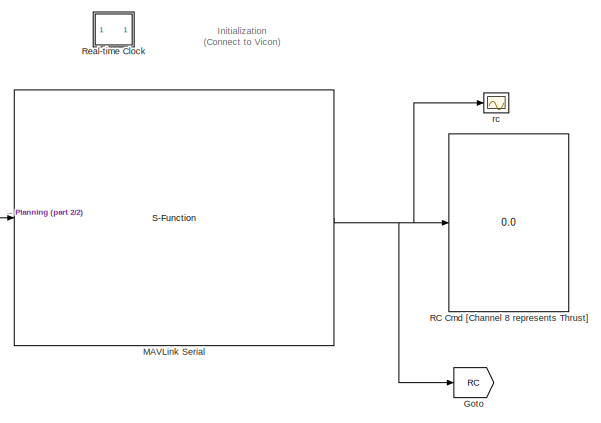
[diagram: root canvas - part 1/2, top right region]
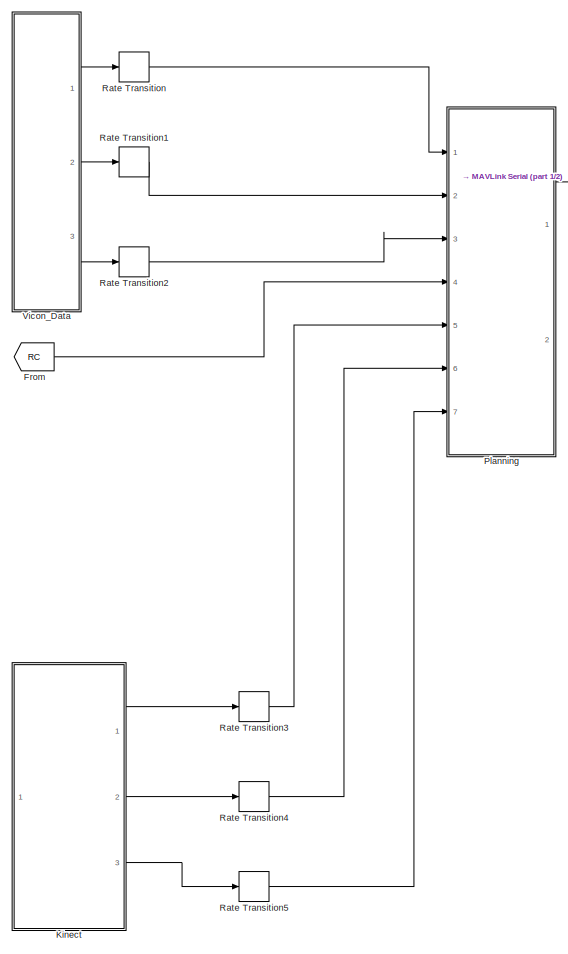
[diagram: root canvas - part 2/2, left side, full height]
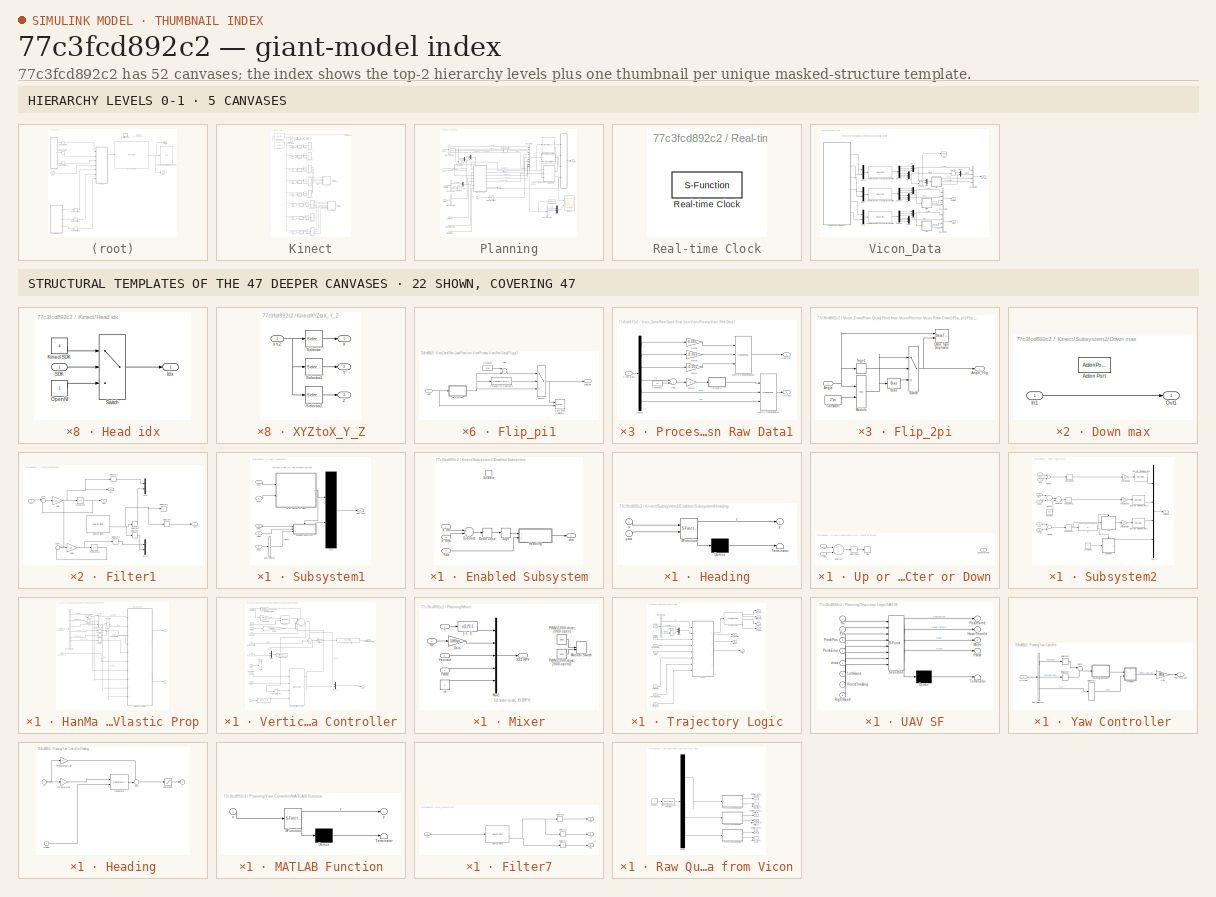
[diagram: thumbnail index - top-2 hierarchy levels (5 canvases) + 22 structural-template representatives of the remaining 47 canvases]
MODEL slx_77c3fcd892c2
KIND model
CONFIG InitFcn = sample_time=0.005;%0.004;%0.0025;%0.02;\nDeltaT = 0.02;\ng = 9.81;\nH0 = g%0.3165;\nKl = 1;\n\nOmega_r = 1.6;%for Horizontal reference\nZeta_r = 1; %for Horizontal reference\nOmega = 1.8;%for Horizontal Control\nZeta = 0.5;    %for Horizontal Control\n\nOmega_h_r = 2.5; %for vertical reference\nZeta_h_r = 0.8;  %for vertical reference\nOmega_h = 2.7;    %for vertical control\nZeta_h = 0.8;         %for vertical...<+512ch>
BLOCK [From] From
  GotoTag = RC
  TagVisibility = global
BLOCK [Goto] Goto
  GotoTag = RC
  TagVisibility = global
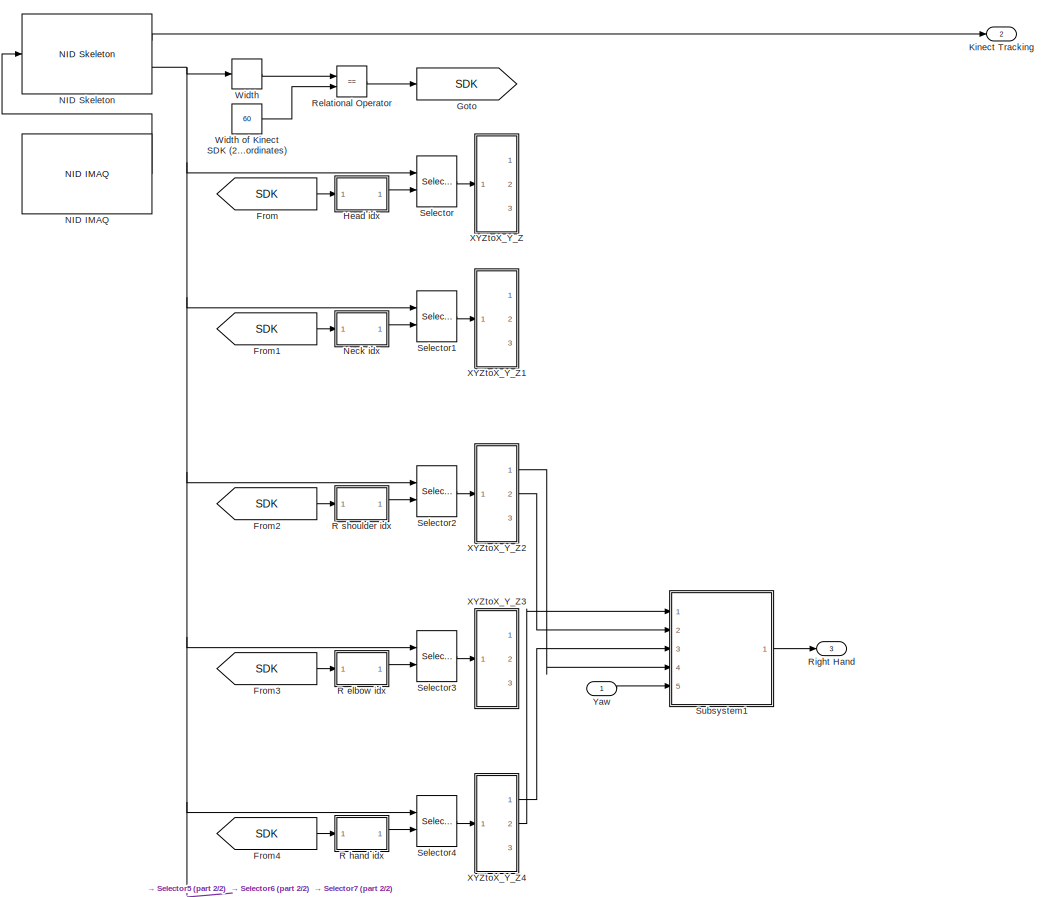
[diagram: Kinect - part 1/2, full width, top band]
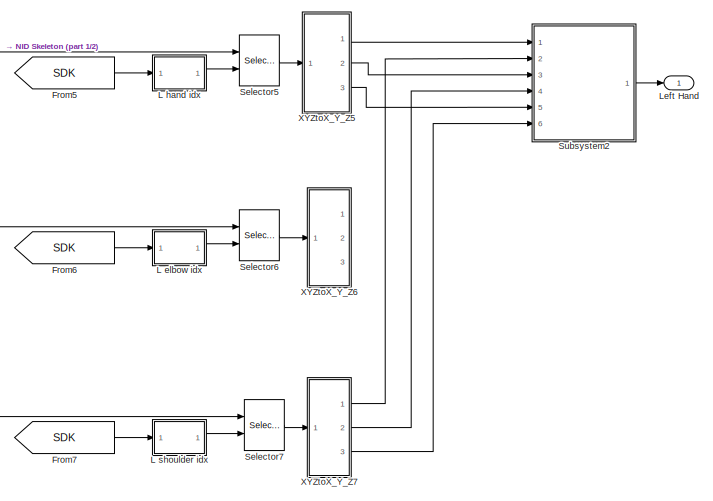
[diagram: Kinect - part 2/2, bottom center region]
BLOCK [SubSystem] Kinect
  FunctionWithSeparateData = off
  MaskHideContents = off
  MinAlgLoopOccurrences = off
  Opaque = off
  Ports = [1, 3]
  PropExecContextOutsideSubsystem = off
  RTWSystemCode = Auto
  RequestExecContextInheritance = off
BLOCK [From] Kinect/From
  GotoTag = SDK
BLOCK [From] Kinect/From1
  GotoTag = SDK
BLOCK [From] Kinect/From2
  GotoTag = SDK
BLOCK [From] Kinect/From3
  GotoTag = SDK
BLOCK [From] Kinect/From4
  GotoTag = SDK
BLOCK [From] Kinect/From5
  GotoTag = SDK
BLOCK [From] Kinect/From6
  GotoTag = SDK
BLOCK [From] Kinect/From7
  GotoTag = SDK
BLOCK [Goto] Kinect/Goto
  GotoTag = SDK
BLOCK [SubSystem] Kinect/Head idx
  FunctionWithSeparateData = off
  MaskHideContents = off
  MinAlgLoopOccurrences = off
  Opaque = off
  Ports = [1, 1]
  PropExecContextOutsideSubsystem = off
  RTWSystemCode = Auto
  RequestExecContextInheritance = off
BLOCK [Outport] Kinect/Head idx/Idx
  IconDisplay = Port number
BLOCK [Constant] Kinect/Head idx/Kinect SDK
  Value = 4
BLOCK [Constant] Kinect/Head idx/OpenNI
BLOCK [Inport] Kinect/Head idx/SDK
  IconDisplay = Port number
BLOCK [Switch] Kinect/Head idx/Switch
  Criteria = u2 ~= 0
  InputSameDT = off
  SaturateOnIntegerOverflow = off
BLOCK [Outport] Kinect/Kinect Tracking
  IconDisplay = Port number
  Port = 2
BLOCK [SubSystem] Kinect/L elbow idx
  FunctionWithSeparateData = off
  MaskHideContents = off
  MinAlgLoopOccurrences = off
  Opaque = off
  Ports = [1, 1]
  PropExecContextOutsideSubsystem = off
  RTWSystemCode = Auto
  RequestExecContextInheritance = off
BLOCK [Outport] Kinect/L elbow idx/Idx
  IconDisplay = Port number
BLOCK [Constant] Kinect/L elbow idx/Kinect SDK
  Value = 6
BLOCK [Constant] Kinect/L elbow idx/OpenNI
  Value = 8
BLOCK [Inport] Kinect/L elbow idx/SDK
  IconDisplay = Port number
BLOCK [Switch] Kinect/L elbow idx/Switch
  Criteria = u2 ~= 0
  InputSameDT = off
  SaturateOnIntegerOverflow = off
BLOCK [SubSystem] Kinect/L hand idx
  FunctionWithSeparateData = off
  MaskHideContents = off
  MinAlgLoopOccurrences = off
  Opaque = off
  Ports = [1, 1]
  PropExecContextOutsideSubsystem = off
  RTWSystemCode = Auto
  RequestExecContextInheritance = off
BLOCK [Outport] Kinect/L hand idx/Idx
  IconDisplay = Port number
BLOCK [Constant] Kinect/L hand idx/Kinect SDK
  Value = 8
BLOCK [Constant] Kinect/L hand idx/OpenNI
  Value = 9
BLOCK [Inport] Kinect/L hand idx/SDK
  IconDisplay = Port number
BLOCK [Switch] Kinect/L hand idx/Switch
  Criteria = u2 ~= 0
  InputSameDT = off
  SaturateOnIntegerOverflow = off
BLOCK [SubSystem] Kinect/L shoulder idx
  FunctionWithSeparateData = off
  MaskHideContents = off
  MinAlgLoopOccurrences = off
  Opaque = off
  Ports = [1, 1]
  PropExecContextOutsideSubsystem = off
  RTWSystemCode = Auto
  RequestExecContextInheritance = off
BLOCK [Outport] Kinect/L shoulder idx/Idx
  IconDisplay = Port number
BLOCK [Constant] Kinect/L shoulder idx/Kinect SDK
  Value = 5
BLOCK [Constant] Kinect/L shoulder idx/OpenNI
  Value = 7
BLOCK [Inport] Kinect/L shoulder idx/SDK
  IconDisplay = Port number
BLOCK [Switch] Kinect/L shoulder idx/Switch
  Criteria = u2 ~= 0
  InputSameDT = off
  SaturateOnIntegerOverflow = off
BLOCK [Outport] Kinect/Left Hand
  IconDisplay = Port number
BLOCK [Reference] Kinect/NID IMAQ  REF=nid_lib/NID IMAQ
  Ports = [0, 1]
  SourceBlock = nid_lib/NID IMAQ
  SourceType = NID IMAQ
  angle = 0
  angle_input = off
  angle_read = off
  imaq_depth = off
  imaq_image = off
  imaq_ir = off
  imaq_motion = off
  imaq_sample_time = 1/25
  imaq_skeleton = on
  infer_skeleton = on
  mirror_image = off
  near_mode = off
  needPsiPose = off
  res_fps = VGA (640x480): 30 FPS
  seated_mode = on
  skeleton_smooth = [1.0 0.5 0.5 0.05 0.04]
  view_point = off
BLOCK [Reference] Kinect/NID Skeleton  REF=nid_lib/NID Skeleton
  Ports = [1, 2]
  SourceBlock = nid_lib/NID Skeleton
  SourceType = NID Skeleton
  conv_XYZ_RW = on
  num_of_skeleton_tracking = 1
  viewer = off
BLOCK [SubSystem] Kinect/Neck idx
  FunctionWithSeparateData = off
  MaskHideContents = off
  MinAlgLoopOccurrences = off
  Opaque = off
  Ports = [1, 1]
  PropExecContextOutsideSubsystem = off
  RTWSystemCode = Auto
  RequestExecContextInheritance = off
BLOCK [Outport] Kinect/Neck idx/Idx
  IconDisplay = Port number
BLOCK [Constant] Kinect/Neck idx/Kinect SDK
  Value = 3
BLOCK [Constant] Kinect/Neck idx/OpenNI
  Value = 2
BLOCK [Inport] Kinect/Neck idx/SDK
  IconDisplay = Port number
BLOCK [Switch] Kinect/Neck idx/Switch
  Criteria = u2 ~= 0
  InputSameDT = off
  SaturateOnIntegerOverflow = off
BLOCK [SubSystem] Kinect/R elbow idx
  FunctionWithSeparateData = off
  MaskHideContents = off
  MinAlgLoopOccurrences = off
  Opaque = off
  Ports = [1, 1]
  PropExecContextOutsideSubsystem = off
  RTWSystemCode = Auto
  RequestExecContextInheritance = off
BLOCK [Outport] Kinect/R elbow idx/Idx
  IconDisplay = Port number
BLOCK [Constant] Kinect/R elbow idx/Kinect SDK
  Value = 10
BLOCK [Constant] Kinect/R elbow idx/OpenNI
  Value = 5
BLOCK [Inport] Kinect/R elbow idx/SDK
  IconDisplay = Port number
BLOCK [Switch] Kinect/R elbow idx/Switch
  Criteria = u2 ~= 0
  InputSameDT = off
  SaturateOnIntegerOverflow = off
BLOCK [SubSystem] Kinect/R hand idx
  FunctionWithSeparateData = off
  MaskHideContents = off
  MinAlgLoopOccurrences = off
  Opaque = off
  Ports = [1, 1]
  PropExecContextOutsideSubsystem = off
  RTWSystemCode = Auto
  RequestExecContextInheritance = off
BLOCK [Outport] Kinect/R hand idx/Idx
  IconDisplay = Port number
BLOCK [Constant] Kinect/R hand idx/Kinect SDK
  Value = 12
BLOCK [Constant] Kinect/R hand idx/OpenNI
  Value = 6
BLOCK [Inport] Kinect/R hand idx/SDK
  IconDisplay = Port number
BLOCK [Switch] Kinect/R hand idx/Switch
  Criteria = u2 ~= 0
  InputSameDT = off
  SaturateOnIntegerOverflow = off
BLOCK [SubSystem] Kinect/R shoulder idx
  FunctionWithSeparateData = off
  MaskHideContents = off
  MinAlgLoopOccurrences = off
  Opaque = off
  Ports = [1, 1]
  PropExecContextOutsideSubsystem = off
  RTWSystemCode = Auto
  RequestExecContextInheritance = off
BLOCK [Outport] Kinect/R shoulder idx/Idx
  IconDisplay = Port number
BLOCK [Constant] Kinect/R shoulder idx/Kinect SDK
  Value = 9
BLOCK [Constant] Kinect/R shoulder idx/OpenNI
  Value = 4
BLOCK [Inport] Kinect/R shoulder idx/SDK
  IconDisplay = Port number
BLOCK [Switch] Kinect/R shoulder idx/Switch
  Criteria = u2 ~= 0
  InputSameDT = off
  SaturateOnIntegerOverflow = off
BLOCK [RelationalOperator] Kinect/Relational Operator
  InputSameDT = off
  Operator = ==
  OutDataTypeStr = boolean
  Ports = [2, 1]
BLOCK [Outport] Kinect/Right Hand
  IconDisplay = Port number
  Port = 3
BLOCK [Selector] Kinect/Selector
  IndexOptions = Select all,Index vector (port),Select all
  Indices = [1 3],1,1
  InputPortWidth = 3
  NumberOfDimensions = 3
  OutputSizes = 1,1,1
  Ports = [2, 1]
BLOCK [Selector] Kinect/Selector1
  IndexOptions = Select all,Index vector (port),Select all
  Indices = [1 3],1,1
  InputPortWidth = 3
  NumberOfDimensions = 3
  OutputSizes = 1,1,1
  Ports = [2, 1]
BLOCK [Selector] Kinect/Selector2
  IndexOptions = Select all,Index vector (port),Select all
  Indices = [1 3],1,1
  InputPortWidth = 3
  NumberOfDimensions = 3
  OutputSizes = 1,1,1
  Ports = [2, 1]
BLOCK [Selector] Kinect/Selector3
  IndexOptions = Select all,Index vector (port),Select all
  Indices = [1 3],1,1
  InputPortWidth = 3
  NumberOfDimensions = 3
  OutputSizes = 1,1,1
  Ports = [2, 1]
BLOCK [Selector] Kinect/Selector4
  IndexOptions = Select all,Index vector (port),Select all
  Indices = [1 3],1,1
  InputPortWidth = 3
  NumberOfDimensions = 3
  OutputSizes = 1,1,1
  Ports = [2, 1]
BLOCK [Selector] Kinect/Selector5
  IndexOptions = Select all,Index vector (port),Select all
  Indices = [1 3],1,1
  InputPortWidth = 3
  NumberOfDimensions = 3
  OutputSizes = 1,1,1
  Ports = [2, 1]
BLOCK [Selector] Kinect/Selector6
  IndexOptions = Select all,Index vector (port),Select all
  Indices = [1 3],1,1
  InputPortWidth = 3
  NumberOfDimensions = 3
  OutputSizes = 1,1,1
  Ports = [2, 1]
BLOCK [Selector] Kinect/Selector7
  IndexOptions = Select all,Index vector (port),Select all
  Indices = [1 3],1,1
  InputPortWidth = 3
  NumberOfDimensions = 3
  OutputSizes = 1,1,1
  Ports = [2, 1]
BLOCK [SubSystem] Kinect/Subsystem1
  FunctionWithSeparateData = off
  MaskHideContents = off
  MinAlgLoopOccurrences = off
  Opaque = off
  Ports = [5, 1]
  PropExecContextOutsideSubsystem = off
  RTWSystemCode = Auto
  RequestExecContextInheritance = off
BLOCK [BusSelector] Kinect/Subsystem1/Bus Selector
  OutputSignals = Attitude
  Ports = [1, 1]
BLOCK [SubSystem] Kinect/Subsystem1/Enabled Subsystem
  FunctionWithSeparateData = off
  MaskHideContents = off
  MinAlgLoopOccurrences = off
  Opaque = off
  Ports = [3, 1, 1]
  PropExecContextOutsideSubsystem = off
  RTWSystemCode = Auto
  RequestExecContextInheritance = off
  TreatAsAtomicUnit = on
BLOCK [DeadZone] Kinect/Subsystem1/Enabled Subsystem/Dead Zone
  LowerValue = -0.12
  UpperValue = 0.12
BLOCK [EnablePort] Kinect/Subsystem1/Enabled Subsystem/Enable
  Ports = []
BLOCK [SubSystem] Kinect/Subsystem1/Enabled Subsystem/Heading
  ErrorFcn = Stateflow.Translate.translate
  FunctionWithSeparateData = off
  MaskHideContents = off
  MinAlgLoopOccurrences = off
  Opaque = off
  PermitHierarchicalResolution = ExplicitOnly
  Ports = [2, 1]
  PropExecContextOutsideSubsystem = off
  RTWSystemCode = Auto
  RequestExecContextInheritance = off
  SFBlockType = MATLAB Function
  TreatAsAtomicUnit = on
BLOCK [Demux] Kinect/Subsystem1/Enabled Subsystem/Heading/ Demux 
  Outputs = 1
  Ports = [1, 1]
BLOCK [S-Function] Kinect/Subsystem1/Enabled Subsystem/Heading/ SFunction 
  EnableBusSupport = off
  FunctionName = sf_sfun
  PortCounts = [2 2]
  Ports = [2, 2]
  Tag = Stateflow S-Function JX_Kinect20131217 4
BLOCK [Terminator] Kinect/Subsystem1/Enabled Subsystem/Heading/ Terminator 
BLOCK [Inport] Kinect/Subsystem1/Enabled Subsystem/Heading/u
  IconDisplay = Port number
BLOCK [Outport] Kinect/Subsystem1/Enabled Subsystem/Heading/y
  IconDisplay = Port number
BLOCK [Inport] Kinect/Subsystem1/Enabled Subsystem/Heading/yaw
  IconDisplay = Port number
  Port = 2
BLOCK [Signum] Kinect/Subsystem1/Enabled Subsystem/Sign
BLOCK [Sum] Kinect/Subsystem1/Enabled Subsystem/Subtract
  InputSameDT = off
  Inputs = +-
  OutDataTypeStr = Inherit: Inherit via internal rule
  Ports = [2, 1]
  SaturateOnIntegerOverflow = off
BLOCK [Inport] Kinect/Subsystem1/Enabled Subsystem/X: RH
  IconDisplay = Port number
BLOCK [Inport] Kinect/Subsystem1/Enabled Subsystem/X: RSh
  IconDisplay = Port number
  Port = 2
BLOCK [Inport] Kinect/Subsystem1/Enabled Subsystem/Yaw
  IconDisplay = Port number
  Port = 3
BLOCK [Outport] Kinect/Subsystem1/Enabled Subsystem/yaw
  IconDisplay = Port number
BLOCK [Mux] Kinect/Subsystem1/Mux
  DisplayOption = signals
  Inputs = 2
  Ports = [2, 1]
BLOCK [Outport] Kinect/Subsystem1/Right Hand
  IconDisplay = Port number
BLOCK [SubSystem] Kinect/Subsystem1/Up or Center or Down
  FunctionWithSeparateData = off
  MaskHideContents = off
  MinAlgLoopOccurrences = off
  Opaque = off
  Ports = [2, 1]
  PropExecContextOutsideSubsystem = off
  RTWSystemCode = Auto
  RequestExecContextInheritance = off
BLOCK [DeadZone] Kinect/Subsystem1/Up or Center or Down/Dead Zone
  LowerValue = -0.12
  UpperValue = 0.14
BLOCK [Signum] Kinect/Subsystem1/Up or Center or Down/Sign
BLOCK [Sum] Kinect/Subsystem1/Up or Center or Down/Subtract
  InputSameDT = off
  Inputs = +-
  OutDataTypeStr = Inherit: Inherit via internal rule
  Ports = [2, 1]
  SaturateOnIntegerOverflow = off
BLOCK [Outport] Kinect/Subsystem1/Up or Center or Down/UpCenterDown
  IconDisplay = Port number
BLOCK [Inport] Kinect/Subsystem1/Up or Center or Down/Y: RH
  IconDisplay = Port number
BLOCK [Inport] Kinect/Subsystem1/Up or Center or Down/Y: RSh
  IconDisplay = Port number
  Port = 2
BLOCK [Inport] Kinect/Subsystem1/XRH
  IconDisplay = Port number
  Port = 3
BLOCK [Inport] Kinect/Subsystem1/XRSh
  IconDisplay = Port number
  Port = 4
BLOCK [Inport] Kinect/Subsystem1/YRH
  IconDisplay = Port number
BLOCK [Inport] Kinect/Subsystem1/YRSH
  IconDisplay = Port number
  Port = 2
BLOCK [Inport] Kinect/Subsystem1/Yaw
  IconDisplay = Port number
  Port = 5
BLOCK [SubSystem] Kinect/Subsystem2
  FunctionWithSeparateData = off
  MaskHideContents = off
  MinAlgLoopOccurrences = off
  Opaque = off
  Ports = [6, 1]
  PropExecContextOutsideSubsystem = off
  RTWSystemCode = Auto
  RequestExecContextInheritance = off
BLOCK [Constant] Kinect/Subsystem2/Constant
  Value = 0.32
BLOCK [Constant] Kinect/Subsystem2/Constant4
  Value = -2
BLOCK [DeadZone] Kinect/Subsystem2/Dead Zone1
  LowerValue = -0.14
  UpperValue = 0.14
BLOCK [DeadZone] Kinect/Subsystem2/Dead Zone2
  LowerValue = -0.09
  UpperValue = 0.09
BLOCK [DeadZone] Kinect/Subsystem2/Dead Zone3
  LowerValue = -0.12
  UpperValue = 0.12
BLOCK [DiscreteIntegrator] Kinect/Subsystem2/Discrete-Time Integrator1
  ICPrevOutput = DiscIntNeverNeededParam
  ICPrevScaledInput = DiscIntNeverNeededParam
  LimitOutput = on
  LowerSaturationLimit = -2
  Ports = [1, 1]
  SampleTime = 0.02
  UpperSaturationLimit = 2
  gainval = 1
BLOCK [DiscreteIntegrator] Kinect/Subsystem2/Discrete-Time Integrator2
  ICPrevOutput = DiscIntNeverNeededParam
  ICPrevScaledInput = DiscIntNeverNeededParam
  LimitOutput = on
  LowerSaturationLimit = 0
  Ports = [1, 1]
  SampleTime = 0.02
  UpperSaturationLimit = 2.5
  gainval = 1
BLOCK [DiscreteIntegrator] Kinect/Subsystem2/Discrete-Time Integrator6
  ICPrevOutput = DiscIntNeverNeededParam
  ICPrevScaledInput = DiscIntNeverNeededParam
  LimitOutput = on
  LowerSaturationLimit = -2
  Ports = [1, 1]
  SampleTime = 0.02
  UpperSaturationLimit = 2
  gainval = 1
BLOCK [SubSystem] Kinect/Subsystem2/Down max
  FunctionWithSeparateData = off
  MaskHideContents = off
  MinAlgLoopOccurrences = off
  Opaque = off
  Ports = [1, 1, 0, 0, 0, 0, 0, 1]
  PropExecContextOutsideSubsystem = off
  RTWSystemCode = Auto
  RequestExecContextInheritance = off
  TreatAsAtomicUnit = on
BLOCK [ActionPort] Kinect/Subsystem2/Down max/Action Port
BLOCK [Inport] Kinect/Subsystem2/Down max/In1
  IconDisplay = Port number
BLOCK [Outport] Kinect/Subsystem2/Down max/Out1
  IconDisplay = Port number
BLOCK [Sum] Kinect/Subsystem2/Global X
  InputSameDT = off
  Inputs = +-
  OutDataTypeStr = Inherit: Inherit via internal rule
  Ports = [2, 1]
  SaturateOnIntegerOverflow = off
BLOCK [Sum] Kinect/Subsystem2/Global Y
  InputSameDT = off
  Inputs = -+
  OutDataTypeStr = Inherit: Inherit via internal rule
  Ports = [2, 1]
  SaturateOnIntegerOverflow = off
BLOCK [Sum] Kinect/Subsystem2/Global Z
  InputSameDT = off
  Inputs = +-
  OutDataTypeStr = Inherit: Inherit via internal rule
  Ports = [2, 1]
  SaturateOnIntegerOverflow = off
BLOCK [If] Kinect/Subsystem2/If
  IfExpression = u1> -0.25
  Ports = [1, 2]
BLOCK [Outport] Kinect/Subsystem2/Left Hand
  IconDisplay = Port number
BLOCK [Mux] Kinect/Subsystem2/Mux1
  DisplayOption = bar
  Ports = [4, 1]
BLOCK [Sum] Kinect/Subsystem2/Subtract2
  InputSameDT = off
  Inputs = +-
  OutDataTypeStr = Inherit: Inherit via internal rule
  Ports = [2, 1]
  SaturateOnIntegerOverflow = off
BLOCK [SubSystem] Kinect/Subsystem2/Top1
  FunctionWithSeparateData = off
  MaskHideContents = off
  MinAlgLoopOccurrences = off
  Opaque = off
  Ports = [1, 1, 0, 0, 0, 0, 0, 1]
  PropExecContextOutsideSubsystem = off
  RTWSystemCode = Auto
  RequestExecContextInheritance = off
  TreatAsAtomicUnit = on
BLOCK [ActionPort] Kinect/Subsystem2/Top1/Action Port
BLOCK [Inport] Kinect/Subsystem2/Top1/In1
  IconDisplay = Port number
BLOCK [Outport] Kinect/Subsystem2/Top1/Out1
  IconDisplay = Port number
BLOCK [Gain] Kinect/Subsystem2/Velocity Gain1
  Gain = 2.3
  OutDataTypeStr = Inherit: Inherit via internal rule
  ParamDataTypeStr = Inherit: Inherit via internal rule
  SaturateOnIntegerOverflow = off
BLOCK [Gain] Kinect/Subsystem2/Velocity Gain2
  Gain = 2.3
  OutDataTypeStr = Inherit: Inherit via internal rule
  ParamDataTypeStr = Inherit: Inherit via internal rule
  SaturateOnIntegerOverflow = off
BLOCK [Gain] Kinect/Subsystem2/Velocity Gain3
  Gain = 1.3
  OutDataTypeStr = Inherit: Inherit via internal rule
  ParamDataTypeStr = Inherit: Inherit via internal rule
  SaturateOnIntegerOverflow = off
BLOCK [Inport] Kinect/Subsystem2/X: LH
  IconDisplay = Port number
BLOCK [Inport] Kinect/Subsystem2/X: LSh
  IconDisplay = Port number
  Port = 2
BLOCK [Inport] Kinect/Subsystem2/Y LH
  IconDisplay = Port number
  Port = 3
BLOCK [Inport] Kinect/Subsystem2/Y LSh
  IconDisplay = Port number
  Port = 4
BLOCK [Inport] Kinect/Subsystem2/Z: LH
  IconDisplay = Port number
  Port = 5
BLOCK [Inport] Kinect/Subsystem2/Z: LSh
  IconDisplay = Port number
  Port = 6
BLOCK [Width] Kinect/Width
BLOCK [Constant] Kinect/Width of Kinect SDK (20 joints x 3 coordinates)
  Value = 60
BLOCK [SubSystem] Kinect/XYZtoX_Y_Z
  FunctionWithSeparateData = off
  MaskHideContents = off
  MinAlgLoopOccurrences = off
  Opaque = off
  Ports = [1, 3]
  PropExecContextOutsideSubsystem = off
  RTWSystemCode = Auto
  RequestExecContextInheritance = off
BLOCK [Selector] Kinect/XYZtoX_Y_Z/Selector
  IndexOptions = Index vector (dialog),Index vector (dialog),Index vector (dialog)
  Indices = 1,1,1
  InputPortWidth = 3
  NumberOfDimensions = 3
  OutputSizes = 1,1,1
  Ports = [1, 1]
BLOCK [Selector] Kinect/XYZtoX_Y_Z/Selector1
  IndexOptions = Index vector (dialog),Index vector (dialog),Index vector (dialog)
  Indices = 1,1,2
  InputPortWidth = 3
  NumberOfDimensions = 3
  OutputSizes = 1,1,1
  Ports = [1, 1]
BLOCK [Selector] Kinect/XYZtoX_Y_Z/Selector2
  IndexOptions = Index vector (dialog),Index vector (dialog),Index vector (dialog)
  Indices = 1,1,3
  InputPortWidth = 3
  NumberOfDimensions = 3
  OutputSizes = 1,1,1
  Ports = [1, 1]
BLOCK [Outport] Kinect/XYZtoX_Y_Z/X
  IconDisplay = Port number
BLOCK [Inport] Kinect/XYZtoX_Y_Z/XYZ
  IconDisplay = Port number
BLOCK [Outport] Kinect/XYZtoX_Y_Z/Y
  IconDisplay = Port number
  Port = 2
BLOCK [Outport] Kinect/XYZtoX_Y_Z/Z
  IconDisplay = Port number
  Port = 3
BLOCK [SubSystem] Kinect/XYZtoX_Y_Z1
  FunctionWithSeparateData = off
  MaskHideContents = off
  MinAlgLoopOccurrences = off
  Opaque = off
  Ports = [1, 3]
  PropExecContextOutsideSubsystem = off
  RTWSystemCode = Auto
  RequestExecContextInheritance = off
BLOCK [Selector] Kinect/XYZtoX_Y_Z1/Selector
  IndexOptions = Index vector (dialog),Index vector (dialog),Index vector (dialog)
  Indices = 1,1,1
  InputPortWidth = 3
  NumberOfDimensions = 3
  OutputSizes = 1,1,1
  Ports = [1, 1]
BLOCK [Selector] Kinect/XYZtoX_Y_Z1/Selector1
  IndexOptions = Index vector (dialog),Index vector (dialog),Index vector (dialog)
  Indices = 1,1,2
  InputPortWidth = 3
  NumberOfDimensions = 3
  OutputSizes = 1,1,1
  Ports = [1, 1]
BLOCK [Selector] Kinect/XYZtoX_Y_Z1/Selector2
  IndexOptions = Index vector (dialog),Index vector (dialog),Index vector (dialog)
  Indices = 1,1,3
  InputPortWidth = 3
  NumberOfDimensions = 3
  OutputSizes = 1,1,1
  Ports = [1, 1]
BLOCK [Outport] Kinect/XYZtoX_Y_Z1/X
  IconDisplay = Port number
BLOCK [Inport] Kinect/XYZtoX_Y_Z1/XYZ
  IconDisplay = Port number
BLOCK [Outport] Kinect/XYZtoX_Y_Z1/Y
  IconDisplay = Port number
  Port = 2
BLOCK [Outport] Kinect/XYZtoX_Y_Z1/Z
  IconDisplay = Port number
  Port = 3
BLOCK [SubSystem] Kinect/XYZtoX_Y_Z2
  FunctionWithSeparateData = off
  MaskHideContents = off
  MinAlgLoopOccurrences = off
  Opaque = off
  Ports = [1, 3]
  PropExecContextOutsideSubsystem = off
  RTWSystemCode = Auto
  RequestExecContextInheritance = off
BLOCK [Selector] Kinect/XYZtoX_Y_Z2/Selector
  IndexOptions = Index vector (dialog),Index vector (dialog),Index vector (dialog)
  Indices = 1,1,1
  InputPortWidth = 3
  NumberOfDimensions = 3
  OutputSizes = 1,1,1
  Ports = [1, 1]
BLOCK [Selector] Kinect/XYZtoX_Y_Z2/Selector1
  IndexOptions = Index vector (dialog),Index vector (dialog),Index vector (dialog)
  Indices = 1,1,2
  InputPortWidth = 3
  NumberOfDimensions = 3
  OutputSizes = 1,1,1
  Ports = [1, 1]
BLOCK [Selector] Kinect/XYZtoX_Y_Z2/Selector2
  IndexOptions = Index vector (dialog),Index vector (dialog),Index vector (dialog)
  Indices = 1,1,3
  InputPortWidth = 3
  NumberOfDimensions = 3
  OutputSizes = 1,1,1
  Ports = [1, 1]
BLOCK [Outport] Kinect/XYZtoX_Y_Z2/X
  IconDisplay = Port number
BLOCK [Inport] Kinect/XYZtoX_Y_Z2/XYZ
  IconDisplay = Port number
BLOCK [Outport] Kinect/XYZtoX_Y_Z2/Y
  IconDisplay = Port number
  Port = 2
BLOCK [Outport] Kinect/XYZtoX_Y_Z2/Z
  IconDisplay = Port number
  Port = 3
BLOCK [SubSystem] Kinect/XYZtoX_Y_Z3
  FunctionWithSeparateData = off
  MaskHideContents = off
  MinAlgLoopOccurrences = off
  Opaque = off
  Ports = [1, 3]
  PropExecContextOutsideSubsystem = off
  RTWSystemCode = Auto
  RequestExecContextInheritance = off
BLOCK [Selector] Kinect/XYZtoX_Y_Z3/Selector
  IndexOptions = Index vector (dialog),Index vector (dialog),Index vector (dialog)
  Indices = 1,1,1
  InputPortWidth = 3
  NumberOfDimensions = 3
  OutputSizes = 1,1,1
  Ports = [1, 1]
BLOCK [Selector] Kinect/XYZtoX_Y_Z3/Selector1
  IndexOptions = Index vector (dialog),Index vector (dialog),Index vector (dialog)
  Indices = 1,1,2
  InputPortWidth = 3
  NumberOfDimensions = 3
  OutputSizes = 1,1,1
  Ports = [1, 1]
BLOCK [Selector] Kinect/XYZtoX_Y_Z3/Selector2
  IndexOptions = Index vector (dialog),Index vector (dialog),Index vector (dialog)
  Indices = 1,1,3
  InputPortWidth = 3
  NumberOfDimensions = 3
  OutputSizes = 1,1,1
  Ports = [1, 1]
BLOCK [Outport] Kinect/XYZtoX_Y_Z3/X
  IconDisplay = Port number
BLOCK [Inport] Kinect/XYZtoX_Y_Z3/XYZ
  IconDisplay = Port number
BLOCK [Outport] Kinect/XYZtoX_Y_Z3/Y
  IconDisplay = Port number
  Port = 2
BLOCK [Outport] Kinect/XYZtoX_Y_Z3/Z
  IconDisplay = Port number
  Port = 3
BLOCK [SubSystem] Kinect/XYZtoX_Y_Z4
  FunctionWithSeparateData = off
  MaskHideContents = off
  MinAlgLoopOccurrences = off
  Opaque = off
  Ports = [1, 3]
  PropExecContextOutsideSubsystem = off
  RTWSystemCode = Auto
  RequestExecContextInheritance = off
BLOCK [Selector] Kinect/XYZtoX_Y_Z4/Selector
  IndexOptions = Index vector (dialog),Index vector (dialog),Index vector (dialog)
  Indices = 1,1,1
  InputPortWidth = 3
  NumberOfDimensions = 3
  OutputSizes = 1,1,1
  Ports = [1, 1]
BLOCK [Selector] Kinect/XYZtoX_Y_Z4/Selector1
  IndexOptions = Index vector (dialog),Index vector (dialog),Index vector (dialog)
  Indices = 1,1,2
  InputPortWidth = 3
  NumberOfDimensions = 3
  OutputSizes = 1,1,1
  Ports = [1, 1]
BLOCK [Selector] Kinect/XYZtoX_Y_Z4/Selector2
  IndexOptions = Index vector (dialog),Index vector (dialog),Index vector (dialog)
  Indices = 1,1,3
  InputPortWidth = 3
  NumberOfDimensions = 3
  OutputSizes = 1,1,1
  Ports = [1, 1]
BLOCK [Outport] Kinect/XYZtoX_Y_Z4/X
  IconDisplay = Port number
BLOCK [Inport] Kinect/XYZtoX_Y_Z4/XYZ
  IconDisplay = Port number
BLOCK [Outport] Kinect/XYZtoX_Y_Z4/Y
  IconDisplay = Port number
  Port = 2
BLOCK [Outport] Kinect/XYZtoX_Y_Z4/Z
  IconDisplay = Port number
  Port = 3
BLOCK [SubSystem] Kinect/XYZtoX_Y_Z5
  FunctionWithSeparateData = off
  MaskHideContents = off
  MinAlgLoopOccurrences = off
  Opaque = off
  Ports = [1, 3]
  PropExecContextOutsideSubsystem = off
  RTWSystemCode = Auto
  RequestExecContextInheritance = off
BLOCK [Selector] Kinect/XYZtoX_Y_Z5/Selector
  IndexOptions = Index vector (dialog),Index vector (dialog),Index vector (dialog)
  Indices = 1,1,1
  InputPortWidth = 3
  NumberOfDimensions = 3
  OutputSizes = 1,1,1
  Ports = [1, 1]
BLOCK [Selector] Kinect/XYZtoX_Y_Z5/Selector1
  IndexOptions = Index vector (dialog),Index vector (dialog),Index vector (dialog)
  Indices = 1,1,2
  InputPortWidth = 3
  NumberOfDimensions = 3
  OutputSizes = 1,1,1
  Ports = [1, 1]
BLOCK [Selector] Kinect/XYZtoX_Y_Z5/Selector2
  IndexOptions = Index vector (dialog),Index vector (dialog),Index vector (dialog)
  Indices = 1,1,3
  InputPortWidth = 3
  NumberOfDimensions = 3
  OutputSizes = 1,1,1
  Ports = [1, 1]
BLOCK [Outport] Kinect/XYZtoX_Y_Z5/X
  IconDisplay = Port number
BLOCK [Inport] Kinect/XYZtoX_Y_Z5/XYZ
  IconDisplay = Port number
BLOCK [Outport] Kinect/XYZtoX_Y_Z5/Y
  IconDisplay = Port number
  Port = 2
BLOCK [Outport] Kinect/XYZtoX_Y_Z5/Z
  IconDisplay = Port number
  Port = 3
BLOCK [SubSystem] Kinect/XYZtoX_Y_Z6
  FunctionWithSeparateData = off
  MaskHideContents = off
  MinAlgLoopOccurrences = off
  Opaque = off
  Ports = [1, 3]
  PropExecContextOutsideSubsystem = off
  RTWSystemCode = Auto
  RequestExecContextInheritance = off
BLOCK [Selector] Kinect/XYZtoX_Y_Z6/Selector
  IndexOptions = Index vector (dialog),Index vector (dialog),Index vector (dialog)
  Indices = 1,1,1
  InputPortWidth = 3
  NumberOfDimensions = 3
  OutputSizes = 1,1,1
  Ports = [1, 1]
BLOCK [Selector] Kinect/XYZtoX_Y_Z6/Selector1
  IndexOptions = Index vector (dialog),Index vector (dialog),Index vector (dialog)
  Indices = 1,1,2
  InputPortWidth = 3
  NumberOfDimensions = 3
  OutputSizes = 1,1,1
  Ports = [1, 1]
BLOCK [Selector] Kinect/XYZtoX_Y_Z6/Selector2
  IndexOptions = Index vector (dialog),Index vector (dialog),Index vector (dialog)
  Indices = 1,1,3
  InputPortWidth = 3
  NumberOfDimensions = 3
  OutputSizes = 1,1,1
  Ports = [1, 1]
BLOCK [Outport] Kinect/XYZtoX_Y_Z6/X
  IconDisplay = Port number
BLOCK [Inport] Kinect/XYZtoX_Y_Z6/XYZ
  IconDisplay = Port number
BLOCK [Outport] Kinect/XYZtoX_Y_Z6/Y
  IconDisplay = Port number
  Port = 2
BLOCK [Outport] Kinect/XYZtoX_Y_Z6/Z
  IconDisplay = Port number
  Port = 3
BLOCK [SubSystem] Kinect/XYZtoX_Y_Z7
  FunctionWithSeparateData = off
  MaskHideContents = off
  MinAlgLoopOccurrences = off
  Opaque = off
  Ports = [1, 3]
  PropExecContextOutsideSubsystem = off
  RTWSystemCode = Auto
  RequestExecContextInheritance = off
BLOCK [Selector] Kinect/XYZtoX_Y_Z7/Selector
  IndexOptions = Index vector (dialog),Index vector (dialog),Index vector (dialog)
  Indices = 1,1,1
  InputPortWidth = 3
  NumberOfDimensions = 3
  OutputSizes = 1,1,1
  Ports = [1, 1]
BLOCK [Selector] Kinect/XYZtoX_Y_Z7/Selector1
  IndexOptions = Index vector (dialog),Index vector (dialog),Index vector (dialog)
  Indices = 1,1,2
  InputPortWidth = 3
  NumberOfDimensions = 3
  OutputSizes = 1,1,1
  Ports = [1, 1]
BLOCK [Selector] Kinect/XYZtoX_Y_Z7/Selector2
  IndexOptions = Index vector (dialog),Index vector (dialog),Index vector (dialog)
  Indices = 1,1,3
  InputPortWidth = 3
  NumberOfDimensions = 3
  OutputSizes = 1,1,1
  Ports = [1, 1]
BLOCK [Outport] Kinect/XYZtoX_Y_Z7/X
  IconDisplay = Port number
BLOCK [Inport] Kinect/XYZtoX_Y_Z7/XYZ
  IconDisplay = Port number
BLOCK [Outport] Kinect/XYZtoX_Y_Z7/Y
  IconDisplay = Port number
  Port = 2
BLOCK [Outport] Kinect/XYZtoX_Y_Z7/Z
  IconDisplay = Port number
  Port = 3
BLOCK [Inport] Kinect/Yaw
  IconDisplay = Port number
BLOCK [S-Function] MAVLink Serial
  EnableBusSupport = off
  FunctionName = MAVLink_Interface_MultUAV
  Parameters = COM_Port,Baud_Rate,MSG_INPUT,MSG_OUTPUT
  Ports = [1, 1]
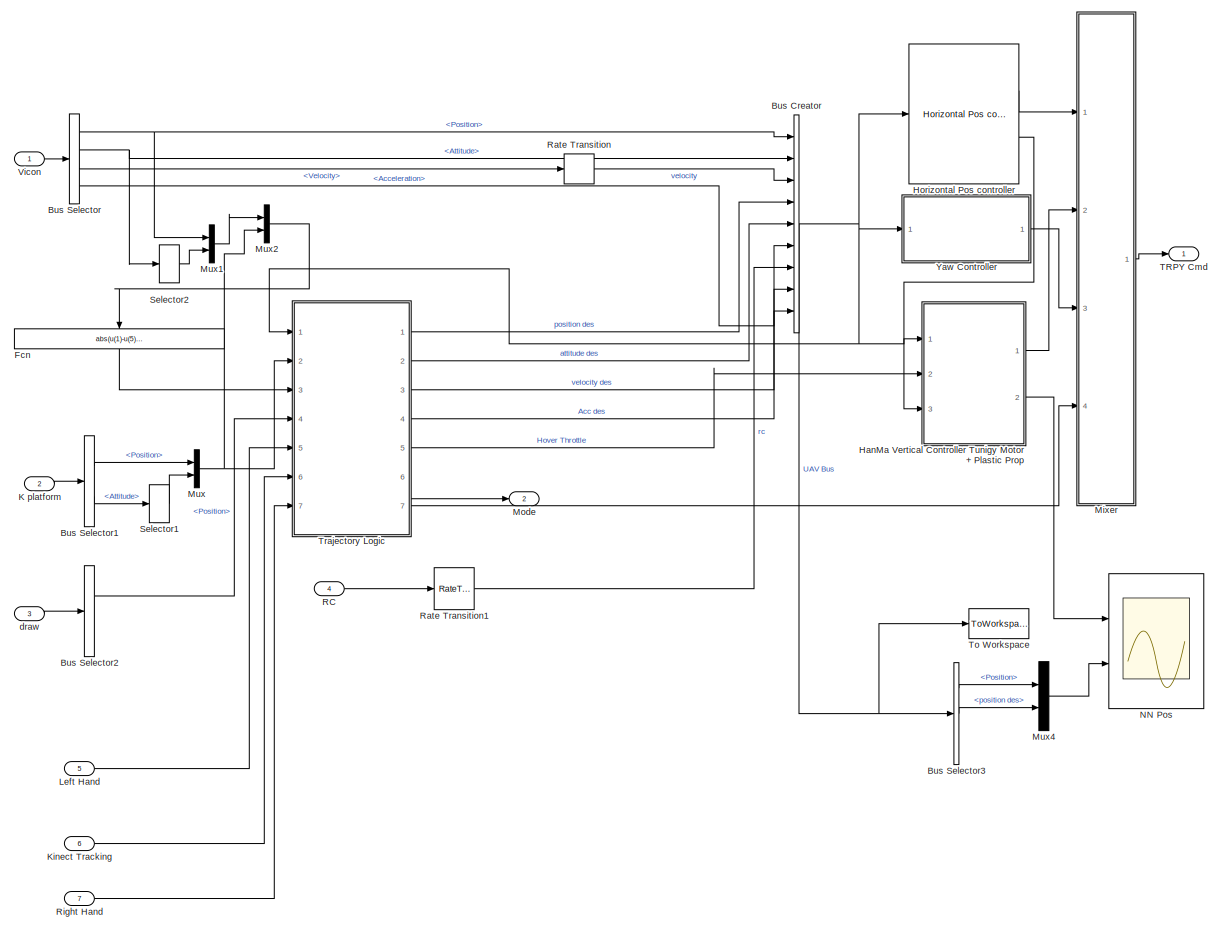
[diagram: Planning - part 1/1, most of the canvas]
BLOCK [SubSystem] Planning
  FunctionWithSeparateData = off
  MaskHideContents = off
  MinAlgLoopOccurrences = off
  Opaque = off
  Ports = [7, 2]
  PropExecContextOutsideSubsystem = off
  RTWSystemCode = Auto
  RequestExecContextInheritance = off
BLOCK [BusCreator] Planning/Bus Creator
  DisplayOption = bar
  Inputs = 9
  Ports = [9, 1]
BLOCK [BusSelector] Planning/Bus Selector
  OutputSignals = Position,Attitude,Velocity,Acceleration
  Ports = [1, 4]
BLOCK [BusSelector] Planning/Bus Selector1
  OutputSignals = Position,Attitude
  Ports = [1, 2]
BLOCK [BusSelector] Planning/Bus Selector2
  OutputSignals = Position,Attitude
  Ports = [1, 2]
BLOCK [BusSelector] Planning/Bus Selector3
  OutputSignals = Position,position des,Attitude
  Ports = [1, 3]
BLOCK [Fcn] Planning/Fcn
  Expr = abs(u(1)-u(5)) + abs(u(2)-u(6))
BLOCK [SubSystem] Planning/HanMa Vertical Controller Tunigy Motor + Plastic Prop
  FunctionWithSeparateData = off
  MaskHideContents = off
  MinAlgLoopOccurrences = off
  Opaque = off
  Ports = [3, 2]
  PropExecContextOutsideSubsystem = off
  RTWSystemCode = Auto
  RequestExecContextInheritance = off
BLOCK [BusSelector] Planning/HanMa Vertical Controller Tunigy Motor + Plastic Prop/Bus Selector
  OutputSignals = Position,position des,rc,velocity,velocity des,Acc des
  Ports = [1, 6]
BLOCK [BusSelector] Planning/HanMa Vertical Controller Tunigy Motor + Plastic Prop/Bus Selector3
  OutputSignals = rc
  Ports = [1, 1]
BLOCK [Inport] Planning/HanMa Vertical Controller Tunigy Motor + Plastic Prop/Hover Throttle
  IconDisplay = Port number
  Port = 2
BLOCK [Outport] Planning/HanMa Vertical Controller Tunigy Motor + Plastic Prop/NN
  IconDisplay = Port number
  Port = 2
BLOCK [Selector] Planning/HanMa Vertical Controller Tunigy Motor + Plastic Prop/Selector1
  IndexOptions = Index vector (dialog)
  Indices = [3]
  InputPortWidth = 3
  OutputSizes = 1
  Ports = [1, 1]
BLOCK [Selector] Planning/HanMa Vertical Controller Tunigy Motor + Plastic Prop/Selector3
  IndexOptions = Index vector (dialog)
  Indices = [3]
  InputPortWidth = 3
  OutputSizes = 1
  Ports = [1, 1]
BLOCK [Selector] Planning/HanMa Vertical Controller Tunigy Motor + Plastic Prop/Selector4
  IndexOptions = Index vector (dialog)
  Indices = [3]
  InputPortWidth = 3
  OutputSizes = 1
  Ports = [1, 1]
BLOCK [Selector] Planning/HanMa Vertical Controller Tunigy Motor + Plastic Prop/Selector5
  IndexOptions = Index vector (dialog)
  Indices = [3]
  InputPortWidth = 3
  OutputSizes = 1
  Ports = [1, 1]
BLOCK [Selector] Planning/HanMa Vertical Controller Tunigy Motor + Plastic Prop/Selector6
  IndexOptions = Index vector (dialog)
  Indices = [3]
  InputPortWidth = 4
  OutputSizes = 1
  Ports = [1, 1]
BLOCK [Selector] Planning/HanMa Vertical Controller Tunigy Motor + Plastic Prop/Selector7
  IndexOptions = Index vector (dialog)
  Indices = [5]
  InputPortWidth = 8
  OutputSizes = 1
  Ports = [1, 1]
BLOCK [Sum] Planning/HanMa Vertical Controller Tunigy Motor + Plastic Prop/Sum
  IconShape = round
  InputSameDT = off
  Inputs = |-+
  OutDataTypeStr = Inherit: Inherit via internal rule
  Ports = [2, 1]
  SaturateOnIntegerOverflow = off
BLOCK [Sum] Planning/HanMa Vertical Controller Tunigy Motor + Plastic Prop/Sum1
  IconShape = round
  InputSameDT = off
  Inputs = |-+
  OutDataTypeStr = Inherit: Inherit via internal rule
  Ports = [2, 1]
  SaturateOnIntegerOverflow = off
BLOCK [Outport] Planning/HanMa Vertical Controller Tunigy Motor + Plastic Prop/T
  IconDisplay = Port number
BLOCK [Inport] Planning/HanMa Vertical Controller Tunigy Motor + Plastic Prop/UAV bus
  IconDisplay = Port number
BLOCK [SubSystem] Planning/HanMa Vertical Controller Tunigy Motor + Plastic Prop/Verticall Pos Controller
  FunctionWithSeparateData = off
  MaskHideContents = off
  MinAlgLoopOccurrences = off
  Opaque = off
  Ports = [10, 2]
  PropExecContextOutsideSubsystem = off
  RTWSystemCode = Auto
  RequestExecContextInheritance = off
BLOCK [Inport] Planning/HanMa Vertical Controller Tunigy Motor + Plastic Prop/Verticall Pos Controller/Acc des
  IconDisplay = Port number
  Port = 5
BLOCK [Gain] Planning/HanMa Vertical Controller Tunigy Motor + Plastic Prop/Verticall Pos Controller/D Gain
  Gain = 2*Omega_h*Zeta_h
  OutDataTypeStr = double
  ParamDataTypeStr = Inherit: Inherit via internal rule
  SaturateOnIntegerOverflow = off
BLOCK [Fcn] Planning/HanMa Vertical Controller Tunigy Motor + Plastic Prop/Verticall Pos Controller/Fcn1
  Expr = -0.04*c_y_tilt*u(1)
BLOCK [Fcn] Planning/HanMa Vertical Controller Tunigy Motor + Plastic Prop/Verticall Pos Controller/Force --> Control
  Expr = -0.0004*(u(1)^2) + 0.0334*u(1) + 0.0717
BLOCK [Inport] Planning/HanMa Vertical Controller Tunigy Motor + Plastic Prop/Verticall Pos Controller/Height
  IconDisplay = Port number
  Port = 8
BLOCK [Inport] Planning/HanMa Vertical Controller Tunigy Motor + Plastic Prop/Verticall Pos Controller/Height Ref
  IconDisplay = Port number
  Port = 7
BLOCK [Inport] Planning/HanMa Vertical Controller Tunigy Motor + Plastic Prop/Verticall Pos Controller/Hover Throttle
  IconDisplay = Port number
  Port = 4
BLOCK [Gain] Planning/HanMa Vertical Controller Tunigy Motor + Plastic Prop/Verticall Pos Controller/Integral Gain
  DisableCoverage = on
  Gain = PID_I_h
  OutDataTypeStr = double
  ParamDataTypeStr = double
  SaturateOnIntegerOverflow = off
BLOCK [DiscreteIntegrator] Planning/HanMa Vertical Controller Tunigy Motor + Plastic Prop/Verticall Pos Controller/Integrator
  DisableCoverage = on
  ExternalReset = rising
  ICPrevOutput = DiscIntNeverNeededParam
  ICPrevScaledInput = DiscIntNeverNeededParam
  InitialConditionMode = State only (most efficient)
  IntegratorMethod = Integration: Trapezoidal
  LowerSaturationLimit = -0.3
  OutDataTypeStr = double
  Ports = [2, 1]
  SampleTime = -1
  UpperSaturationLimit = 0.3
BLOCK [M-S-Function] Planning/HanMa Vertical Controller Tunigy Motor + Plastic Prop/Verticall Pos Controller/Level-2 M-file S-Function
  FunctionName = msfcn_Adaptive_NN_HeightOnly
  Parameters = n,r,n2,NN_ST,GAMA_V,gama_V_e,GAMA_W,gama_W_e,alpha,c_f,c_y_tilt,NN_Deadzone_Z,NN_Z_y_min,NN_Z_y_max,NN_Z_v_min,NN_Z_v_max
  Ports = [4, 4]
BLOCK [Gain] Planning/HanMa Vertical Controller Tunigy Motor + Plastic Prop/Verticall Pos Controller/Mass
  DisableCoverage = on
  Gain = mass
  OutDataTypeStr = double
  ParamDataTypeStr = double
  SaturateOnIntegerOverflow = off
BLOCK [Mux] Planning/HanMa Vertical Controller Tunigy Motor + Plastic Prop/Verticall Pos Controller/Mux
  DisplayOption = bar
  Inputs = 2
  Ports = [2, 1]
BLOCK [Mux] Planning/HanMa Vertical Controller Tunigy Motor + Plastic Prop/Verticall Pos Controller/Mux1
  DisplayOption = bar
  Inputs = 2
  Ports = [2, 1]
BLOCK [Outport] Planning/HanMa Vertical Controller Tunigy Motor + Plastic Prop/Verticall Pos Controller/NN
  IconDisplay = Port number
  Port = 2
BLOCK [Inport] Planning/HanMa Vertical Controller Tunigy Motor + Plastic Prop/Verticall Pos Controller/Pos Error
  IconDisplay = Port number
BLOCK [Gain] Planning/HanMa Vertical Controller Tunigy Motor + Plastic Prop/Verticall Pos Controller/Proportional Gain
  DisableCoverage = on
  Gain = Omega_h^2
  OutDataTypeStr = double
  ParamDataTypeStr = double
  SaturateOnIntegerOverflow = off
BLOCK [Inport] Planning/HanMa Vertical Controller Tunigy Motor + Plastic Prop/Verticall Pos Controller/RC
  IconDisplay = Port number
  Port = 9
BLOCK [Inport] Planning/HanMa Vertical Controller Tunigy Motor + Plastic Prop/Verticall Pos Controller/Reset
  IconDisplay = Port number
  Port = 2
BLOCK [Selector] Planning/HanMa Vertical Controller Tunigy Motor + Plastic Prop/Verticall Pos Controller/Selector7
  IndexOptions = Index vector (dialog)
  Indices = [6]
  InputPortWidth = 8
  OutputSizes = 1
  Ports = [1, 1]
BLOCK [Sum] Planning/HanMa Vertical Controller Tunigy Motor + Plastic Prop/Verticall Pos Controller/Sum1
  AccumDataTypeStr = double
  DisableCoverage = on
  IconShape = round
  InputSameDT = off
  Inputs = ----+|
  OutDataTypeStr = double
  Ports = [5, 1]
  SampleTime = 0.02
  SaturateOnIntegerOverflow = off
BLOCK [Sum] Planning/HanMa Vertical Controller Tunigy Motor + Plastic Prop/Verticall Pos Controller/Sum2
  AccumDataTypeStr = double
  DisableCoverage = on
  IconShape = round
  InputSameDT = off
  Inputs = ++|
  OutDataTypeStr = double
  Ports = [2, 1]
  SampleTime = 0.02
  SaturateOnIntegerOverflow = off
BLOCK [Outport] Planning/HanMa Vertical Controller Tunigy Motor + Plastic Prop/Verticall Pos Controller/T  Commands [0, 1]
  IconDisplay = Port number
BLOCK [Fcn] Planning/HanMa Vertical Controller Tunigy Motor + Plastic Prop/Verticall Pos Controller/Total Acc des
  Expr = sqrt(u(1)^2+u(2)^2)
BLOCK [TransportDelay] Planning/HanMa Vertical Controller Tunigy Motor + Plastic Prop/Verticall Pos Controller/Transport Delay
  DelayTime = 0.02
  Ports = [1, 1]
BLOCK [Inport] Planning/HanMa Vertical Controller Tunigy Motor + Plastic Prop/Verticall Pos Controller/Vel
  IconDisplay = Port number
  Port = 10
BLOCK [Inport] Planning/HanMa Vertical Controller Tunigy Motor + Plastic Prop/Verticall Pos Controller/Vel Error
  IconDisplay = Port number
  Port = 3
BLOCK [Inport] Planning/HanMa Vertical Controller Tunigy Motor + Plastic Prop/Verticall Pos Controller/XY_Acc_d
  IconDisplay = Port number
  Port = 6
BLOCK [Inport] Planning/HanMa Vertical Controller Tunigy Motor + Plastic Prop/XY_Acc_d
  IconDisplay = Port number
  Port = 3
BLOCK [Reference] Planning/Horizontal Pos controller  REF=X330_Control/Horizontal Pos controller
  Max_RP = Max_RP
  Omega = Omega
  PID_i = 2
  Ports = [1, 2]
  SourceBlock = X330_Control/Horizontal Pos controller
  Zeta = Zeta
BLOCK [Inport] Planning/K platform
  IconDisplay = Port number
  Port = 2
BLOCK [Inport] Planning/Kinect Tracking
  IconDisplay = Port number
  Port = 6
BLOCK [Inport] Planning/Left Hand
  IconDisplay = Port number
  Port = 5
BLOCK [SubSystem] Planning/Mixer
  FunctionWithSeparateData = off
  MaskHideContents = off
  MinAlgLoopOccurrences = off
  Opaque = off
  Ports = [4, 1]
  PropExecContextOutsideSubsystem = off
  RTWSystemCode = Auto
  RequestExecContextInheritance = off
BLOCK [Gain] Planning/Mixer/Gain
  Gain = 180/pi
  OutDataTypeStr = Inherit: Inherit via internal rule
  ParamDataTypeStr = Inherit: Inherit via internal rule
  SaturateOnIntegerOverflow = off
BLOCK [ManualSwitch] Planning/Mixer/Manual Switch
BLOCK [Mux] Planning/Mixer/Mux1
  DisplayOption = bar
  Inputs = 5
  Ports = [5, 1]
BLOCK [Inport] Planning/Mixer/PWM
  IconDisplay = Port number
  Port = 4
BLOCK [Constant] Planning/Mixer/PWM (1000-close; 2000-open)
  SampleTime = 0.02
  Value = 1600
BLOCK [Constant] Planning/Mixer/PWM (1000-close; 2000-open)1
  SampleTime = 0.02
  Value = 1200
BLOCK [Inport] Planning/Mixer/RP
  IconDisplay = Port number
BLOCK [Inport] Planning/Mixer/T
  IconDisplay = Port number
  Port = 2
BLOCK [Outport] Planning/Mixer/XYZ RPY
  IconDisplay = Port number
BLOCK [Inport] Planning/Mixer/Yaw rate
  IconDisplay = Port number
  Port = 3
BLOCK [Fcn] Planning/Mixer/[-1, 1]
  Expr = u(1)*2-1
BLOCK [Constant] Planning/Mixer/id
  SampleTime = 0.02
BLOCK [Outport] Planning/Mode
  IconDisplay = Port number
  Port = 2
BLOCK [Mux] Planning/Mux
  DisplayOption = bar
  Inputs = 2
  Ports = [2, 1]
BLOCK [Mux] Planning/Mux1
  DisplayOption = bar
  Inputs = 2
  Ports = [2, 1]
BLOCK [Mux] Planning/Mux2
  DisplayOption = bar
  Inputs = 2
  Ports = [2, 1]
BLOCK [Mux] Planning/Mux4
  DisplayOption = bar
  Inputs = 2
  Ports = [2, 1]
BLOCK [Scope] Planning/NN Pos
  DataFormat = StructureWithTime
  Floating = off
  LimitDataPoints = off
  NumInputPorts = 2
  Ports = [2]
  SampleTime = 0
  SaveName = ScopeData3
  ShowLegends = off
  TimeRange = 90
  YMax = 10~2
  YMin = -5~-2
BLOCK [Inport] Planning/RC
  IconDisplay = Port number
  Port = 4
BLOCK [RateTransition] Planning/Rate Transition
  OutPortSampleTime = 0.02
BLOCK [RateTransition] Planning/Rate Transition1
  OutPortSampleTime = 0.02
BLOCK [Inport] Planning/Right Hand
  IconDisplay = Port number
  Port = 7
BLOCK [Selector] Planning/Selector1
  IndexOptions = Index vector (dialog)
  Indices = [3]
  InputPortWidth = 3
  OutputSizes = 1
  Ports = [1, 1]
BLOCK [Selector] Planning/Selector2
  IndexOptions = Index vector (dialog)
  Indices = [3]
  InputPortWidth = 3
  OutputSizes = 1
  Ports = [1, 1]
BLOCK [Outport] Planning/TRPY Cmd
  IconDisplay = Port number
BLOCK [ToWorkspace] Planning/To Workspace
  MaxDataPoints = inf
  Ports = [1]
  SampleTime = -1
  SaveFormat = Structure
  VariableName = MB_realtime
BLOCK [SubSystem] Planning/Trajectory Logic
  FunctionWithSeparateData = off
  MaskHideContents = off
  MinAlgLoopOccurrences = off
  Opaque = off
  Ports = [7, 7]
  PropExecContextOutsideSubsystem = off
  RTWSystemCode = Auto
  RequestExecContextInheritance = off
BLOCK [Outport] Planning/Trajectory Logic/AccRef
  IconDisplay = Port number
  Port = 4
BLOCK [BusSelector] Planning/Trajectory Logic/Bus Selector
  OutputSignals = rc,Position,Attitude
  Ports = [1, 3]
BLOCK [Outport] Planning/Trajectory Logic/HoverThrottle
  IconDisplay = Port number
  Port = 5
BLOCK [Inport] Planning/Trajectory Logic/K platform
  IconDisplay = Port number
  Port = 2
BLOCK [Inport] Planning/Trajectory Logic/KinectTracking
  IconDisplay = Port number
  Port = 6
BLOCK [Inport] Planning/Trajectory Logic/Landing Error
  IconDisplay = Port number
  Port = 3
BLOCK [Inport] Planning/Trajectory Logic/Left Hand
  IconDisplay = Port number
  Port = 5
BLOCK [Outport] Planning/Trajectory Logic/Mode
  IconDisplay = Port number
  Port = 6
BLOCK [Mux] Planning/Trajectory Logic/Mux
  DisplayOption = bar
  Inputs = 2
  Ports = [2, 1]
BLOCK [Outport] Planning/Trajectory Logic/PWM
  IconDisplay = Port number
  Port = 7
BLOCK [Outport] Planning/Trajectory Logic/PosRef
  IconDisplay = Port number
BLOCK [Reference] Planning/Trajectory Logic/PosRefSystem  REF=X330_Control/PosRefSystem
  Acc_Max = Acc_Max
  Acc_h_Max = Acc_Max_h
  Omega_h_r = Omega_h_r
  Omega_r = Omega_r
  Ports = [1, 4]
  SourceBlock = X330_Control/PosRefSystem
  Zeta_h_r = Zeta_h_r
  Zeta_r = Zeta_r
BLOCK [Inport] Planning/Trajectory Logic/Right Hand
  IconDisplay = Port number
  Port = 7
BLOCK [Selector] Planning/Trajectory Logic/Selector1
  IndexOptions = Index vector (dialog)
  Indices = [3]
  InputPortWidth = 3
  OutputSizes = 1
  Ports = [1, 1]
BLOCK [Inport] Planning/Trajectory Logic/UAV Bus
  IconDisplay = Port number
BLOCK [SubSystem] Planning/Trajectory Logic/UAV SF
  ErrorFcn = Stateflow.Translate.translate
  FunctionWithSeparateData = off
  MaskHideContents = off
  MinAlgLoopOccurrences = off
  Opaque = off
  PermitHierarchicalResolution = ExplicitOnly
  Ports = [8, 4]
  PropExecContextOutsideSubsystem = off
  RTWSystemCode = Auto
  RequestExecContextInheritance = off
  SFBlockType = Chart
  TreatAsAtomicUnit = on
BLOCK [Demux] Planning/Trajectory Logic/UAV SF/ Demux 
  Outputs = 1
  Ports = [1, 1]
BLOCK [S-Function] Planning/Trajectory Logic/UAV SF/ SFunction 
  EnableBusSupport = off
  FunctionName = sf_sfun
  Parameters = DeltaT,H0,Kl,PI
  PortCounts = [8 5]
  Ports = [8, 5]
  Tag = Stateflow S-Function JX_Kinect20131217 3
BLOCK [Terminator] Planning/Trajectory Logic/UAV SF/ Terminator 
BLOCK [Outport] Planning/Trajectory Logic/UAV SF/HoverThrottle
  IconDisplay = Port number
  Port = 2
BLOCK [Inport] Planning/Trajectory Logic/UAV SF/KinectTracking
  IconDisplay = Port number
  Port = 7
BLOCK [Inport] Planning/Trajectory Logic/UAV SF/LeftHand
  IconDisplay = Port number
  Port = 6
BLOCK [Outport] Planning/Trajectory Logic/UAV SF/Mode
  IconDisplay = Port number
  Port = 3
BLOCK [Outport] Planning/Trajectory Logic/UAV SF/PWM
  IconDisplay = Port number
  Port = 4
BLOCK [Inport] Planning/Trajectory Logic/UAV SF/PerchError
  IconDisplay = Port number
  Port = 4
BLOCK [Inport] Planning/Trajectory Logic/UAV SF/PerchPos
  IconDisplay = Port number
  Port = 3
BLOCK [Inport] Planning/Trajectory Logic/UAV SF/Pos
  IconDisplay = Port number
  Port = 2
BLOCK [Outport] Planning/Trajectory Logic/UAV SF/PosDesired
  IconDisplay = Port number
BLOCK [Inport] Planning/Trajectory Logic/UAV SF/RC
  IconDisplay = Port number
BLOCK [Inport] Planning/Trajectory Logic/UAV SF/RightHand
  IconDisplay = Port number
  Port = 8
BLOCK [Inport] Planning/Trajectory Logic/UAV SF/draw
  IconDisplay = Port number
  Port = 5
BLOCK [Outport] Planning/Trajectory Logic/VelRef
  IconDisplay = Port number
  Port = 3
BLOCK [Outport] Planning/Trajectory Logic/attitude des
  IconDisplay = Port number
  Port = 2
BLOCK [Inport] Planning/Trajectory Logic/draw
  IconDisplay = Port number
  Port = 4
BLOCK [Inport] Planning/Vicon
  IconDisplay = Port number
BLOCK [SubSystem] Planning/Yaw Controller
  FunctionWithSeparateData = off
  MaskHideContents = off
  MinAlgLoopOccurrences = off
  Opaque = off
  Ports = [1, 1]
  PropExecContextOutsideSubsystem = off
  RTWSystemCode = Auto
  RequestExecContextInheritance = off
BLOCK [BusSelector] Planning/Yaw Controller/Bus Selector1
  OutputSignals = Attitude,attitude des,rc
  Ports = [1, 3]
BLOCK [Gain] Planning/Yaw Controller/Gain
  Gain = 180/pi
  OutDataTypeStr = Inherit: Inherit via internal rule
  ParamDataTypeStr = Inherit: Inherit via internal rule
  SaturateOnIntegerOverflow = off
BLOCK [SubSystem] Planning/Yaw Controller/Heading
  AncestorBlock = simulink/Continuous/PID Controller
  DeleteFcn = pidpack.PIDConfig.closeTuner(gcbh)
  DialogController = pidpack.PIDConfig.pidDDGCreate
  FunctionWithSeparateData = off
  MaskHideContents = off
  MinAlgLoopOccurrences = off
  ModelCloseFcn = pidpack.PIDConfig.closeTuner(gcbh)
  NameChangeFcn = pidpack.PIDConfig.updateTunerName(gcbh)
  Opaque = off
  Ports = [2, 1]
  PropExecContextOutsideSubsystem = off
  RTWSystemCode = Auto
  RequestExecContextInheritance = off
BLOCK [Gain] Planning/Yaw Controller/Heading/Integral Gain
  DisableCoverage = on
  Gain = I
  OutDataTypeStr = IOutDataTypeStr
  OutMax = IOutMax
  OutMin = IOutMin
  ParamDataTypeStr = IParamDataTypeStr
  ParamMax = IParamMax
  ParamMin = IParamMin
  SaturateOnIntegerOverflow = off
BLOCK [DiscreteIntegrator] Planning/Yaw Controller/Heading/Integrator
  DisableCoverage = on
  ExternalReset = rising
  ICPrevOutput = DiscIntNeverNeededParam
  ICPrevScaledInput = DiscIntNeverNeededParam
  InitialCondition = InitialConditionForIntegrator
  InitialConditionMode = State only (most efficient)
  IntegratorMethod = Integration: Trapezoidal
  OutDataTypeStr = IntegratorOutDataTypeStr
  OutMax = IntegratorOutMax
  OutMin = IntegratorOutMin
  Ports = [2, 1]
  SampleTime = -1
BLOCK [Gain] Planning/Yaw Controller/Heading/Proportional Gain
  DisableCoverage = on
  Gain = P
  OutDataTypeStr = POutDataTypeStr
  OutMax = POutMax
  OutMin = POutMin
  ParamDataTypeStr = PParamDataTypeStr
  ParamMax = PParamMax
  ParamMin = PParamMin
  SaturateOnIntegerOverflow = off
BLOCK [Inport] Planning/Yaw Controller/Heading/RESET
  IconDisplay = Port number
  Port = 2
  SampleTime = SampleTime
BLOCK [Saturate] Planning/Yaw Controller/Heading/Saturation
  InputPortMap = u0
  LinearizeAsGain = off
  LowerLimit = LowerSaturationLimit
  OutDataTypeStr = SaturationOutDataTypeStr
  OutMax = SaturationOutMax
  OutMin = SaturationOutMin
  Ports = [1, 1]
  UpperLimit = UpperSaturationLimit
BLOCK [Sum] Planning/Yaw Controller/Heading/Sum
  AccumDataTypeStr = SumAccumDataTypeStr
  DisableCoverage = on
  IconShape = round
  InputSameDT = off
  Inputs = ++|
  OutDataTypeStr = SumOutDataTypeStr
  OutMax = SumOutMax
  OutMin = SumOutMin
  Ports = [2, 1]
  SaturateOnIntegerOverflow = off
BLOCK [Inport] Planning/Yaw Controller/Heading/u
  IconDisplay = Port number
  SampleTime = SampleTime
BLOCK [Outport] Planning/Yaw Controller/Heading/y
  IconDisplay = Port number
  InitialOutput = 0
BLOCK [SubSystem] Planning/Yaw Controller/MATLAB Function
  ErrorFcn = Stateflow.Translate.translate
  FunctionWithSeparateData = off
  MaskHideContents = off
  MinAlgLoopOccurrences = off
  Opaque = off
  PermitHierarchicalResolution = ExplicitOnly
  Ports = [1, 1]
  PropExecContextOutsideSubsystem = off
  RTWSystemCode = Auto
  RequestExecContextInheritance = off
  SFBlockType = MATLAB Function
  TreatAsAtomicUnit = on
BLOCK [Demux] Planning/Yaw Controller/MATLAB Function/ Demux 
  Outputs = 1
  Ports = [1, 1]
BLOCK [S-Function] Planning/Yaw Controller/MATLAB Function/ SFunction 
  EnableBusSupport = off
  FunctionName = sf_sfun
  PortCounts = [1 2]
  Ports = [1, 2]
  Tag = Stateflow S-Function JX_Kinect20131217 1
BLOCK [Terminator] Planning/Yaw Controller/MATLAB Function/ Terminator 
BLOCK [Inport] Planning/Yaw Controller/MATLAB Function/u
  IconDisplay = Port number
BLOCK [Outport] Planning/Yaw Controller/MATLAB Function/y
  IconDisplay = Port number
BLOCK [Selector] Planning/Yaw Controller/Selector5
  IndexOptions = Index vector (dialog)
  Indices = [3]
  InputPortWidth = 3
  OutputSizes = 1
  Ports = [1, 1]
BLOCK [Selector] Planning/Yaw Controller/Selector6
  IndexOptions = Index vector (dialog)
  Indices = [3]
  InputPortWidth = 3
  OutputSizes = 1
  Ports = [1, 1]
BLOCK [Selector] Planning/Yaw Controller/Selector7
  IndexOptions = Index vector (dialog)
  Indices = [5]
  InputPortWidth = 8
  OutputSizes = 1
  Ports = [1, 1]
BLOCK [Sum] Planning/Yaw Controller/Sum1
  IconShape = round
  InputSameDT = off
  Inputs = |-+
  OutDataTypeStr = Inherit: Inherit via internal rule
  Ports = [2, 1]
  SaturateOnIntegerOverflow = off
BLOCK [Inport] Planning/Yaw Controller/UAV Bus
  IconDisplay = Port number
BLOCK [Outport] Planning/Yaw Controller/Yaw rate des
  IconDisplay = Port number
BLOCK [Inport] Planning/draw
  IconDisplay = Port number
  Port = 3
BLOCK [Display] RC Cmd [Channel 8 represents Thrust]
  Decimation = 1
  Lockdown = off
  Ports = [1]
BLOCK [RateTransition] Rate Transition
  OutPortSampleTime = 0.02
BLOCK [RateTransition] Rate Transition1
  OutPortSampleTime = 0.02
BLOCK [RateTransition] Rate Transition2
  OutPortSampleTime = 0.02
BLOCK [RateTransition] Rate Transition3
  OutPortSampleTime = 0.02
BLOCK [RateTransition] Rate Transition4
  OutPortSampleTime = 0.02
BLOCK [RateTransition] Rate Transition5
  OutPortSampleTime = 0.02
BLOCK [SubSystem] Real-time Clock
  FunctionWithSeparateData = off
  MaskHideContents = off
  MinAlgLoopOccurrences = off
  Opaque = off
  Ports = []
  PropExecContextOutsideSubsystem = off
  RTWSystemCode = Auto
  RequestExecContextInheritance = off
  ShowPortLabels = none
BLOCK [S-Function] Real-time Clock/Real-time Clock
  EnableBusSupport = off
  FunctionName = rtclock
  Parameters = sample_time, tolerance
  Ports = []
BLOCK [SubSystem] Vicon_Data
  FunctionWithSeparateData = off
  MaskHideContents = off
  MinAlgLoopOccurrences = off
  Opaque = off
  Ports = [0, 3]
  PropExecContextOutsideSubsystem = off
  RTWSystemCode = Auto
  RequestExecContextInheritance = off
BLOCK [BusCreator] Vicon_Data/Bus Creator1
  DisplayOption = bar
  Ports = [4, 1]
BLOCK [BusCreator] Vicon_Data/Bus Creator7
  DisplayOption = bar
  Ports = [4, 1]
BLOCK [BusCreator] Vicon_Data/Bus Creator8
  DisplayOption = bar
  Ports = [4, 1]
BLOCK [Demux] Vicon_Data/Demux1
  DisplayOption = bar
  Outputs = 6
  Ports = [1, 6]
BLOCK [Demux] Vicon_Data/Demux7
  DisplayOption = bar
  Outputs = 6
  Ports = [1, 6]
BLOCK [Demux] Vicon_Data/Demux8
  DisplayOption = bar
  Outputs = 6
  Ports = [1, 6]
BLOCK [SubSystem] Vicon_Data/Filter1
  FunctionWithSeparateData = off
  MaskHideContents = off
  MinAlgLoopOccurrences = off
  Opaque = off
  Ports = [1, 3]
  PropExecContextOutsideSubsystem = off
  RTWSystemCode = Auto
  RequestExecContextInheritance = off
BLOCK [Outport] Vicon_Data/Filter1/Acc
  IconDisplay = Port number
  Port = 3
BLOCK [Gain] Vicon_Data/Filter1/Gain
  Gain = 15
  OutDataTypeStr = Inherit: Inherit via internal rule
  ParamDataTypeStr = Inherit: Inherit via internal rule
  SaturateOnIntegerOverflow = off
BLOCK [Gain] Vicon_Data/Filter1/Gain1
  Gain = 20
  OutDataTypeStr = Inherit: Inherit via internal rule
  ParamDataTypeStr = Inherit: Inherit via internal rule
  SaturateOnIntegerOverflow = off
BLOCK [Inport] Vicon_Data/Filter1/In1
  IconDisplay = Port number
BLOCK [Integrator] Vicon_Data/Filter1/Integrator
  Ports = [1, 1]
BLOCK [Integrator] Vicon_Data/Filter1/Integrator1
  Ports = [1, 1]
BLOCK [Reference] Vicon_Data/Filter1/Kalman Filter  REF=dspadpt3/Kalman Filter
  A = [1 sample_time sample_time*sample_time/2 zeros(1,6);0 1 sample_time zeros(1,6);0 0 1 zeros(1,6);0 0 0 1 sample_time sample_time*sample_time/2 0 0 0;zeros(1,4) 1 sample_time zeros(1,3);zeros(1,5) 1 zeros(1,3);zeros(1,6) 1 sample_time sample_time*sample_time/2;zeros(1,7) 1 sample_time;zeros(1,8) 1]
  H = [1 zeros(1,8); zeros(1,3) 1 zeros(1,5);zeros(1,6) 1 0 0]
  P = zeros(9)
  Ports = [1, 2]
  Q = diag([0 0.001 0.001 0 0.001 0.001 0 0.001 0.001])
  R = 0.001*eye(3)
  SourceBlock = dspadpt3/Kalman Filter
  SourceType = Kalman Filter
  X = zeros([9, 1])
  isOutputEstError = off
  isOutputEstMeasure = on
  isOutputEstState = on
  isOutputPrdError = off
  isOutputPrdMeasure = off
  isOutputPrdState = off
  isReset = on
  num_targets = 1
  sourceEnable = Always
  sourceMeasure = Specify via Dialog
BLOCK [Mux] Vicon_Data/Filter1/Mux
  DisplayOption = bar
  Inputs = 2
  Ports = [2, 1]
BLOCK [Mux] Vicon_Data/Filter1/Mux1
  DisplayOption = bar
  Inputs = 2
  Ports = [2, 1]
BLOCK [Outport] Vicon_Data/Filter1/Pos
  IconDisplay = Port number
BLOCK [Selector] Vicon_Data/Filter1/Selector1
  IndexOptions = Index vector (dialog)
  Indices = [2]
  InputPortWidth = 3
  OutputSizes = 1
  Ports = [1, 1]
BLOCK [Selector] Vicon_Data/Filter1/Selector2
  IndexOptions = Index vector (dialog)
  Indices = [5]
  InputPortWidth = 9
  OutputSizes = 1
  Ports = [1, 1]
BLOCK [Selector] Vicon_Data/Filter1/Selector3
  IndexOptions = Index vector (dialog)
  Indices = [2]
  InputPortWidth = 3
  OutputSizes = 1
  Ports = [1, 1]
BLOCK [Selector] Vicon_Data/Filter1/Selector4
  IndexOptions = Index vector (dialog)
  Indices = [6]
  InputPortWidth = 9
  OutputSizes = 1
  Ports = [1, 1]
BLOCK [Selector] Vicon_Data/Filter1/Selector5
  IndexOptions = Index vector (dialog)
  Indices = [2 5 8]
  InputPortWidth = 9
  OutputSizes = 1
  Ports = [1, 1]
BLOCK [Selector] Vicon_Data/Filter1/Selector6
  IndexOptions = Index vector (dialog)
  Indices = [3 6 9]
  InputPortWidth = 9
  OutputSizes = 1
  Ports = [1, 1]
BLOCK [Sum] Vicon_Data/Filter1/Sum
  IconShape = round
  InputSameDT = off
  Inputs = |+-
  OutDataTypeStr = Inherit: Inherit via internal rule
  Ports = [2, 1]
  SaturateOnIntegerOverflow = off
BLOCK [Sum] Vicon_Data/Filter1/Sum1
  IconShape = round
  InputSameDT = off
  Inputs = |+-
  OutDataTypeStr = Inherit: Inherit via internal rule
  Ports = [2, 1]
  SaturateOnIntegerOverflow = off
BLOCK [Outport] Vicon_Data/Filter1/Vel
  IconDisplay = Port number
  Port = 2
BLOCK [SubSystem] Vicon_Data/Filter7
  FunctionWithSeparateData = off
  MaskHideContents = off
  MinAlgLoopOccurrences = off
  Opaque = off
  Ports = [1, 3]
  PropExecContextOutsideSubsystem = off
  RTWSystemCode = Auto
  RequestExecContextInheritance = off
BLOCK [Outport] Vicon_Data/Filter7/Acc
  IconDisplay = Port number
  Port = 2
BLOCK [Inport] Vicon_Data/Filter7/In1
  IconDisplay = Port number
BLOCK [Reference] Vicon_Data/Filter7/Kalman Filter  REF=dspadpt3/Kalman Filter
  A = [1 sample_time sample_time*sample_time/2 zeros(1,9);0 1 sample_time zeros(1,9);0 0 1 zeros(1,9);0 0 0 1 sample_time sample_time*sample_time/2 zeros(1,6);zeros(1,4) 1 sample_time zeros(1,6);zeros(1,5) 1 zeros(1,6);zeros(1,6) 1 sample_time sample_time*sample_time/2 zeros(1,3);zeros(1,7) 1 sample_time zeros(1,3);zeros(1,8) 1 zeros(1,3);zeros(1,9) 1 sample_time sample_time*sample_time/2;zeros(1,10) 1 ...<+27ch>
  H = [1 zeros(1,11); zeros(1,3) 1 zeros(1,8);zeros(1,6) 1 zeros(1,5);zeros(1,9) 1 0 0]
  P = zeros(12)
  Ports = [1, 1]
  Q = diag([0 0.001 0.001 0 0.001 0.001 0 0.001 0.001 0 0.001 0.001]);
  R = diag([0.001 0.001 0.001 0.05])
  SourceBlock = dspadpt3/Kalman Filter
  SourceType = Kalman Filter
  X = zeros([12, 1])
  isOutputEstError = off
  isOutputEstMeasure = off
  isOutputEstState = on
  isOutputPrdError = off
  isOutputPrdMeasure = off
  isOutputPrdState = off
  isReset = on
  num_targets = 1
  sourceEnable = Always
  sourceMeasure = Specify via Dialog
BLOCK [Outport] Vicon_Data/Filter7/Psi
  IconDisplay = Port number
  Port = 3
BLOCK [Selector] Vicon_Data/Filter7/Selector1
  IndexOptions = Index vector (dialog)
  Indices = [10]
  InputPortWidth = 12
  OutputSizes = 1
  Ports = [1, 1]
BLOCK [Selector] Vicon_Data/Filter7/Selector5
  IndexOptions = Index vector (dialog)
  Indices = [2 5 8]
  InputPortWidth = 12
  OutputSizes = 1
  Ports = [1, 1]
BLOCK [Selector] Vicon_Data/Filter7/Selector6
  IndexOptions = Index vector (dialog)
  Indices = [3 6 9]
  InputPortWidth = 12
  OutputSizes = 1
  Ports = [1, 1]
BLOCK [Outport] Vicon_Data/Filter7/Vel
  IconDisplay = Port number
BLOCK [SubSystem] Vicon_Data/Filter8
  FunctionWithSeparateData = off
  MaskHideContents = off
  MinAlgLoopOccurrences = off
  Opaque = off
  Ports = [1, 3]
  PropExecContextOutsideSubsystem = off
  RTWSystemCode = Auto
  RequestExecContextInheritance = off
BLOCK [Outport] Vicon_Data/Filter8/Acc
  IconDisplay = Port number
  Port = 3
BLOCK [Gain] Vicon_Data/Filter8/Gain
  Gain = 15
  OutDataTypeStr = Inherit: Inherit via internal rule
  ParamDataTypeStr = Inherit: Inherit via internal rule
  SaturateOnIntegerOverflow = off
BLOCK [Gain] Vicon_Data/Filter8/Gain1
  Gain = 20
  OutDataTypeStr = Inherit: Inherit via internal rule
  ParamDataTypeStr = Inherit: Inherit via internal rule
  SaturateOnIntegerOverflow = off
BLOCK [Inport] Vicon_Data/Filter8/In1
  IconDisplay = Port number
BLOCK [Integrator] Vicon_Data/Filter8/Integrator
  Ports = [1, 1]
BLOCK [Integrator] Vicon_Data/Filter8/Integrator1
  Ports = [1, 1]
BLOCK [Reference] Vicon_Data/Filter8/Kalman Filter  REF=dspadpt3/Kalman Filter
  A = [1 sample_time sample_time*sample_time/2 zeros(1,6);0 1 sample_time zeros(1,6);0 0 1 zeros(1,6);0 0 0 1 sample_time sample_time*sample_time/2 0 0 0;zeros(1,4) 1 sample_time zeros(1,3);zeros(1,5) 1 zeros(1,3);zeros(1,6) 1 sample_time sample_time*sample_time/2;zeros(1,7) 1 sample_time;zeros(1,8) 1]
  H = [1 zeros(1,8); zeros(1,3) 1 zeros(1,5);zeros(1,6) 1 0 0]
  P = zeros(9)
  Ports = [1, 2]
  Q = diag([0 0.001 0.001 0 0.001 0.001 0 0.001 0.001])
  R = 0.001*eye(3)
  SourceBlock = dspadpt3/Kalman Filter
  SourceType = Kalman Filter
  X = zeros([9, 1])
  isOutputEstError = off
  isOutputEstMeasure = on
  isOutputEstState = on
  isOutputPrdError = off
  isOutputPrdMeasure = off
  isOutputPrdState = off
  isReset = on
  num_targets = 1
  sourceEnable = Always
  sourceMeasure = Specify via Dialog
BLOCK [Mux] Vicon_Data/Filter8/Mux
  DisplayOption = bar
  Inputs = 2
  Ports = [2, 1]
BLOCK [Mux] Vicon_Data/Filter8/Mux1
  DisplayOption = bar
  Inputs = 2
  Ports = [2, 1]
BLOCK [Outport] Vicon_Data/Filter8/Pos
  IconDisplay = Port number
BLOCK [Selector] Vicon_Data/Filter8/Selector1
  IndexOptions = Index vector (dialog)
  Indices = [2]
  InputPortWidth = 3
  OutputSizes = 1
  Ports = [1, 1]
BLOCK [Selector] Vicon_Data/Filter8/Selector2
  IndexOptions = Index vector (dialog)
  Indices = [5]
  InputPortWidth = 9
  OutputSizes = 1
  Ports = [1, 1]
BLOCK [Selector] Vicon_Data/Filter8/Selector3
  IndexOptions = Index vector (dialog)
  Indices = [2]
  InputPortWidth = 3
  OutputSizes = 1
  Ports = [1, 1]
BLOCK [Selector] Vicon_Data/Filter8/Selector4
  IndexOptions = Index vector (dialog)
  Indices = [6]
  InputPortWidth = 9
  OutputSizes = 1
  Ports = [1, 1]
BLOCK [Selector] Vicon_Data/Filter8/Selector5
  IndexOptions = Index vector (dialog)
  Indices = [2 5 8]
  InputPortWidth = 9
  OutputSizes = 1
  Ports = [1, 1]
BLOCK [Selector] Vicon_Data/Filter8/Selector6
  IndexOptions = Index vector (dialog)
  Indices = [3 6 9]
  InputPortWidth = 9
  OutputSizes = 1
  Ports = [1, 1]
BLOCK [Sum] Vicon_Data/Filter8/Sum
  IconShape = round
  InputSameDT = off
  Inputs = |+-
  OutDataTypeStr = Inherit: Inherit via internal rule
  Ports = [2, 1]
  SaturateOnIntegerOverflow = off
BLOCK [Sum] Vicon_Data/Filter8/Sum1
  IconShape = round
  InputSameDT = off
  Inputs = |+-
  OutDataTypeStr = Inherit: Inherit via internal rule
  Ports = [2, 1]
  SaturateOnIntegerOverflow = off
BLOCK [Outport] Vicon_Data/Filter8/Vel
  IconDisplay = Port number
  Port = 2
BLOCK [Goto] Vicon_Data/Goto
  GotoTag = Psi_raw
  TagVisibility = global
BLOCK [Outport] Vicon_Data/JX_400
  IconDisplay = Port number
BLOCK [Outport] Vicon_Data/K platform
  IconDisplay = Port number
  Port = 2
BLOCK [M-S-Function] Vicon_Data/Logic to fix signal loss and object local axis flip1
  FunctionName = Vicon_Filter
  Ports = [1, 1]
BLOCK [M-S-Function] Vicon_Data/Logic to fix signal loss and object local axis flip7
  FunctionName = Vicon_Filter
  Ports = [1, 1]
BLOCK [M-S-Function] Vicon_Data/Logic to fix signal loss and object local axis flip8
  FunctionName = Vicon_Filter
  Ports = [1, 1]
BLOCK [Mux] Vicon_Data/Mux
  DisplayOption = bar
  Inputs = 2
  Ports = [2, 1]
BLOCK [Mux] Vicon_Data/Mux1
  DisplayOption = bar
  Inputs = 2
  Ports = [2, 1]
BLOCK [Mux] Vicon_Data/Mux19
  DisplayOption = bar
  Inputs = 2
  Ports = [2, 1]
BLOCK [Mux] Vicon_Data/Mux2
  DisplayOption = bar
  Inputs = 2
  Ports = [2, 1]
BLOCK [Mux] Vicon_Data/Mux20
  DisplayOption = bar
  Inputs = 3
  Ports = [3, 1]
BLOCK [Mux] Vicon_Data/Mux21
  DisplayOption = bar
  Inputs = 3
  Ports = [3, 1]
BLOCK [Mux] Vicon_Data/Mux22
  DisplayOption = bar
  Inputs = 2
  Ports = [2, 1]
BLOCK [Mux] Vicon_Data/Mux23
  DisplayOption = bar
  Inputs = 3
  Ports = [3, 1]
BLOCK [Mux] Vicon_Data/Mux24
  DisplayOption = bar
  Inputs = 3
  Ports = [3, 1]
BLOCK [Mux] Vicon_Data/Mux3
  DisplayOption = bar
  Inputs = 3
  Ports = [3, 1]
BLOCK [Mux] Vicon_Data/Mux4
  DisplayOption = bar
  Inputs = 3
  Ports = [3, 1]
BLOCK [SubSystem] Vicon_Data/Raw Quad Pose from Vicon
  FunctionWithSeparateData = off
  MaskHideContents = off
  MinAlgLoopOccurrences = off
  Opaque = off
  Ports = [0, 6]
  PropExecContextOutsideSubsystem = off
  RTWSystemCode = Auto
  RequestExecContextInheritance = off
BLOCK [Outport] Vicon_Data/Raw Quad Pose from Vicon/Attitude_Vicon_JianXing
  IconDisplay = Port number
  Port = 2
BLOCK [Outport] Vicon_Data/Raw Quad Pose from Vicon/Attitude_Vicon_K platform
  IconDisplay = Port number
  Port = 4
BLOCK [Outport] Vicon_Data/Raw Quad Pose from Vicon/Attitude_Vicon_draw
  IconDisplay = Port number
  Port = 6
BLOCK [Constant] Vicon_Data/Raw Quad Pose from Vicon/Constant
BLOCK [Demux] Vicon_Data/Raw Quad Pose from Vicon/Demux
  DisplayOption = bar
  Outputs = 3
  Ports = [1, 3]
BLOCK [MATLABFcn] Vicon_Data/Raw Quad Pose from Vicon/Interpreted MATLAB Function
  MATLABFcn = JXKinect05112013
  Ports = [1, 1]
BLOCK [Outport] Vicon_Data/Raw Quad Pose from Vicon/Position_Vicon_JianXing
  IconDisplay = Port number
BLOCK [Outport] Vicon_Data/Raw Quad Pose from Vicon/Position_Vicon_K platform
  IconDisplay = Port number
  Port = 3
BLOCK [Outport] Vicon_Data/Raw Quad Pose from Vicon/Position_Vicon_draw
  IconDisplay = Port number
  Port = 5
BLOCK [SubSystem] Vicon_Data/Raw Quad Pose from Vicon/Process Vicon Raw Data1
  FunctionWithSeparateData = off
  MaskHideContents = off
  MinAlgLoopOccurrences = off
  Opaque = off
  Ports = [1, 2]
  PropExecContextOutsideSubsystem = off
  RTWSystemCode = Auto
  RequestExecContextInheritance = off
BLOCK [Sum] Vicon_Data/Raw Quad Pose from Vicon/Process Vicon Raw Data1/Add1
  InputSameDT = off
  Inputs = -+
  OutDataTypeStr = Inherit: Inherit via internal rule
  Ports = [2, 1]
  SaturateOnIntegerOverflow = off
BLOCK [Outport] Vicon_Data/Raw Quad Pose from Vicon/Process Vicon Raw Data1/Attitude
  IconDisplay = Port number
  Port = 2
BLOCK [Constant] Vicon_Data/Raw Quad Pose from Vicon/Process Vicon Raw Data1/Constant1
  OutDataTypeStr = double
  Value = pi
BLOCK [Demux] Vicon_Data/Raw Quad Pose from Vicon/Process Vicon Raw Data1/Demux
  DisplayOption = bar
  Outputs = 6
  Ports = [1, 6]
BLOCK [SubSystem] Vicon_Data/Raw Quad Pose from Vicon/Process Vicon Raw Data1/Flip_pi1
  FunctionWithSeparateData = off
  MaskHideContents = off
  MinAlgLoopOccurrences = off
  Opaque = off
  Ports = [1, 1]
  PropExecContextOutsideSubsystem = off
  RTWSystemCode = Auto
  RequestExecContextInheritance = off
BLOCK [Sum] Vicon_Data/Raw Quad Pose from Vicon/Process Vicon Raw Data1/Flip_pi1/Add
  InputSameDT = off
  Inputs = -+
  OutDataTypeStr = Inherit: Inherit via internal rule
  Ports = [2, 1]
  SaturateOnIntegerOverflow = off
BLOCK [Inport] Vicon_Data/Raw Quad Pose from Vicon/Process Vicon Raw Data1/Flip_pi1/Angle
  IconDisplay = Port number
BLOCK [Outport] Vicon_Data/Raw Quad Pose from Vicon/Process Vicon Raw Data1/Flip_pi1/Angle_Flip
  IconDisplay = Port number
BLOCK [Reference] Vicon_Data/Raw Quad Pose from Vicon/Process Vicon Raw Data1/Flip_pi1/Compare To Constant1  REF=simulink/Logic and Bit
Operations/Compare
To Constant
  OutDataTypeStr = uint8
  Ports = [1, 1]
  SourceBlock = simulink/Logic and Bit\nOperations/Compare\nTo Constant
  SourceType = Compare To Constant
  ZeroCross = off
  const = pi
  relop = >
BLOCK [Constant] Vicon_Data/Raw Quad Pose from Vicon/Process Vicon Raw Data1/Flip_pi1/Constant
  Value = 2*pi
BLOCK [DataTypeDuplicate] Vicon_Data/Raw Quad Pose from Vicon/Process Vicon Raw Data1/Flip_pi1/Data Type Duplicate
  Ports = [2]
BLOCK [SubSystem] Vicon_Data/Raw Quad Pose from Vicon/Process Vicon Raw Data1/Flip_pi1/Flip_0_to_2pi
  FunctionWithSeparateData = off
  MaskHideContents = off
  MinAlgLoopOccurrences = off
  Opaque = off
  Ports = [1, 1]
  PropExecContextOutsideSubsystem = off
  RTWSystemCode = Auto
  RequestExecContextInheritance = off
BLOCK [Sum] Vicon_Data/Raw Quad Pose from Vicon/Process Vicon Raw Data1/Flip_pi1/Flip_0_to_2pi/Add
  InputSameDT = off
  OutDataTypeStr = Inherit: Inherit via internal rule
  Ports = [2, 1]
  SaturateOnIntegerOverflow = off
BLOCK [Inport] Vicon_Data/Raw Quad Pose from Vicon/Process Vicon Raw Data1/Flip_pi1/Flip_0_to_2pi/Angle
  IconDisplay = Port number
BLOCK [Outport] Vicon_Data/Raw Quad Pose from Vicon/Process Vicon Raw Data1/Flip_pi1/Flip_0_to_2pi/Angle_Flip
  IconDisplay = Port number
BLOCK [Reference] Vicon_Data/Raw Quad Pose from Vicon/Process Vicon Raw Data1/Flip_pi1/Flip_0_to_2pi/Compare To Constant1  REF=simulink/Logic and Bit
Operations/Compare
To Constant
  OutDataTypeStr = uint8
  Ports = [1, 1]
  SourceBlock = simulink/Logic and Bit\nOperations/Compare\nTo Constant
  SourceType = Compare To Constant
  ZeroCross = off
  const = 0
  relop = <
BLOCK [Constant] Vicon_Data/Raw Quad Pose from Vicon/Process Vicon Raw Data1/Flip_pi1/Flip_0_to_2pi/Constant
  Value = 2*pi
BLOCK [DataTypeDuplicate] Vicon_Data/Raw Quad Pose from Vicon/Process Vicon Raw Data1/Flip_pi1/Flip_0_to_2pi/Data Type Duplicate
  Ports = [2]
BLOCK [SubSystem] Vicon_Data/Raw Quad Pose from Vicon/Process Vicon Raw Data1/Flip_pi1/Flip_0_to_2pi/Flip_2pi
  FunctionWithSeparateData = off
  MaskHideContents = off
  MinAlgLoopOccurrences = off
  Opaque = off
  Ports = [1, 1]
  PropExecContextOutsideSubsystem = off
  RTWSystemCode = Auto
  RequestExecContextInheritance = off
BLOCK [Inport] Vicon_Data/Raw Quad Pose from Vicon/Process Vicon Raw Data1/Flip_pi1/Flip_0_to_2pi/Flip_2pi/Angle
  IconDisplay = Port number
BLOCK [Outport] Vicon_Data/Raw Quad Pose from Vicon/Process Vicon Raw Data1/Flip_pi1/Flip_0_to_2pi/Flip_2pi/Angle_Flip
  IconDisplay = Port number
BLOCK [Bias] Vicon_Data/Raw Quad Pose from Vicon/Process Vicon Raw Data1/Flip_pi1/Flip_0_to_2pi/Flip_2pi/Bias
  Bias = -2*pi
  SaturateOnIntegerOverflow = off
BLOCK [Constant] Vicon_Data/Raw Quad Pose from Vicon/Process Vicon Raw Data1/Flip_pi1/Flip_0_to_2pi/Flip_2pi/Constant
  Value = 2*pi
BLOCK [DataTypeDuplicate] Vicon_Data/Raw Quad Pose from Vicon/Process Vicon Raw Data1/Flip_pi1/Flip_0_to_2pi/Flip_2pi/Data Type Duplicate
  Ports = [2]
BLOCK [Math] Vicon_Data/Raw Quad Pose from Vicon/Process Vicon Raw Data1/Flip_pi1/Flip_0_to_2pi/Flip_2pi/Modulo
  Operator = mod
  Ports = [2, 1]
BLOCK [Signum] Vicon_Data/Raw Quad Pose from Vicon/Process Vicon Raw Data1/Flip_pi1/Flip_0_to_2pi/Flip_2pi/Sign1
BLOCK [Switch] Vicon_Data/Raw Quad Pose from Vicon/Process Vicon Raw Data1/Flip_pi1/Flip_0_to_2pi/Flip_2pi/Switch
  InputSameDT = off
  SaturateOnIntegerOverflow = off
BLOCK [Switch] Vicon_Data/Raw Quad Pose from Vicon/Process Vicon Raw Data1/Flip_pi1/Flip_0_to_2pi/Switch
  Criteria = u2 ~= 0
  InputSameDT = off
  SaturateOnIntegerOverflow = off
BLOCK [Switch] Vicon_Data/Raw Quad Pose from Vicon/Process Vicon Raw Data1/Flip_pi1/Switch
  Criteria = u2 ~= 0
  InputSameDT = off
  SaturateOnIntegerOverflow = off
BLOCK [Gain] Vicon_Data/Raw Quad Pose from Vicon/Process Vicon Raw Data1/Gain1
  Gain = 0.001
  OutDataTypeStr = Inherit: Inherit via internal rule
  ParamDataTypeStr = Inherit: Inherit via internal rule
  SaturateOnIntegerOverflow = off
BLOCK [Gain] Vicon_Data/Raw Quad Pose from Vicon/Process Vicon Raw Data1/Gain3
  Gain = -1
  OutDataTypeStr = Inherit: Inherit via internal rule
  ParamDataTypeStr = Inherit: Inherit via internal rule
  SaturateOnIntegerOverflow = off
BLOCK [Gain] Vicon_Data/Raw Quad Pose from Vicon/Process Vicon Raw Data1/Gain6
  Gain = -0.001
  OutDataTypeStr = Inherit: Inherit via internal rule
  ParamDataTypeStr = Inherit: Inherit via internal rule
  SaturateOnIntegerOverflow = off
BLOCK [Gain] Vicon_Data/Raw Quad Pose from Vicon/Process Vicon Raw Data1/Gain7
  Gain = -0.001
  OutDataTypeStr = Inherit: Inherit via internal rule
  ParamDataTypeStr = Inherit: Inherit via internal rule
  SaturateOnIntegerOverflow = off
BLOCK [Concatenate] Vicon_Data/Raw Quad Pose from Vicon/Process Vicon Raw Data1/Matrix Concatenate1
  Mode = Multidimensional array
  NumInputs = 3
  Ports = [3, 1]
BLOCK [Concatenate] Vicon_Data/Raw Quad Pose from Vicon/Process Vicon Raw Data1/Matrix Concatenate13
  Mode = Multidimensional array
  NumInputs = 3
  Ports = [3, 1]
BLOCK [Outport] Vicon_Data/Raw Quad Pose from Vicon/Process Vicon Raw Data1/Position
  IconDisplay = Port number
BLOCK [Inport] Vicon_Data/Raw Quad Pose from Vicon/Process Vicon Raw Data1/Vicon Raw
  IconDisplay = Port number
BLOCK [SubSystem] Vicon_Data/Raw Quad Pose from Vicon/Process Vicon Raw Data6
  FunctionWithSeparateData = off
  MaskHideContents = off
  MinAlgLoopOccurrences = off
  Opaque = off
  Ports = [1, 2]
  PropExecContextOutsideSubsystem = off
  RTWSystemCode = Auto
  RequestExecContextInheritance = off
BLOCK [Sum] Vicon_Data/Raw Quad Pose from Vicon/Process Vicon Raw Data6/Add1
  InputSameDT = off
  Inputs = -+
  OutDataTypeStr = Inherit: Inherit via internal rule
  Ports = [2, 1]
  SaturateOnIntegerOverflow = off
BLOCK [Outport] Vicon_Data/Raw Quad Pose from Vicon/Process Vicon Raw Data6/Attitude
  IconDisplay = Port number
  Port = 2
BLOCK [Constant] Vicon_Data/Raw Quad Pose from Vicon/Process Vicon Raw Data6/Constant1
  OutDataTypeStr = double
  Value = pi
BLOCK [Demux] Vicon_Data/Raw Quad Pose from Vicon/Process Vicon Raw Data6/Demux
  DisplayOption = bar
  Outputs = 6
  Ports = [1, 6]
BLOCK [SubSystem] Vicon_Data/Raw Quad Pose from Vicon/Process Vicon Raw Data6/Flip_pi1
  FunctionWithSeparateData = off
  MaskHideContents = off
  MinAlgLoopOccurrences = off
  Opaque = off
  Ports = [1, 1]
  PropExecContextOutsideSubsystem = off
  RTWSystemCode = Auto
  RequestExecContextInheritance = off
BLOCK [Sum] Vicon_Data/Raw Quad Pose from Vicon/Process Vicon Raw Data6/Flip_pi1/Add
  InputSameDT = off
  Inputs = -+
  OutDataTypeStr = Inherit: Inherit via internal rule
  Ports = [2, 1]
  SaturateOnIntegerOverflow = off
BLOCK [Inport] Vicon_Data/Raw Quad Pose from Vicon/Process Vicon Raw Data6/Flip_pi1/Angle
  IconDisplay = Port number
BLOCK [Outport] Vicon_Data/Raw Quad Pose from Vicon/Process Vicon Raw Data6/Flip_pi1/Angle_Flip
  IconDisplay = Port number
BLOCK [Reference] Vicon_Data/Raw Quad Pose from Vicon/Process Vicon Raw Data6/Flip_pi1/Compare To Constant1  REF=simulink/Logic and Bit
Operations/Compare
To Constant
  OutDataTypeStr = uint8
  Ports = [1, 1]
  SourceBlock = simulink/Logic and Bit\nOperations/Compare\nTo Constant
  SourceType = Compare To Constant
  ZeroCross = off
  const = pi
  relop = >
BLOCK [Constant] Vicon_Data/Raw Quad Pose from Vicon/Process Vicon Raw Data6/Flip_pi1/Constant
  Value = 2*pi
BLOCK [DataTypeDuplicate] Vicon_Data/Raw Quad Pose from Vicon/Process Vicon Raw Data6/Flip_pi1/Data Type Duplicate
  Ports = [2]
BLOCK [SubSystem] Vicon_Data/Raw Quad Pose from Vicon/Process Vicon Raw Data6/Flip_pi1/Flip_0_to_2pi
  FunctionWithSeparateData = off
  MaskHideContents = off
  MinAlgLoopOccurrences = off
  Opaque = off
  Ports = [1, 1]
  PropExecContextOutsideSubsystem = off
  RTWSystemCode = Auto
  RequestExecContextInheritance = off
BLOCK [Sum] Vicon_Data/Raw Quad Pose from Vicon/Process Vicon Raw Data6/Flip_pi1/Flip_0_to_2pi/Add
  InputSameDT = off
  OutDataTypeStr = Inherit: Inherit via internal rule
  Ports = [2, 1]
  SaturateOnIntegerOverflow = off
BLOCK [Inport] Vicon_Data/Raw Quad Pose from Vicon/Process Vicon Raw Data6/Flip_pi1/Flip_0_to_2pi/Angle
  IconDisplay = Port number
BLOCK [Outport] Vicon_Data/Raw Quad Pose from Vicon/Process Vicon Raw Data6/Flip_pi1/Flip_0_to_2pi/Angle_Flip
  IconDisplay = Port number
BLOCK [Reference] Vicon_Data/Raw Quad Pose from Vicon/Process Vicon Raw Data6/Flip_pi1/Flip_0_to_2pi/Compare To Constant1  REF=simulink/Logic and Bit
Operations/Compare
To Constant
  OutDataTypeStr = uint8
  Ports = [1, 1]
  SourceBlock = simulink/Logic and Bit\nOperations/Compare\nTo Constant
  SourceType = Compare To Constant
  ZeroCross = off
  const = 0
  relop = <
BLOCK [Constant] Vicon_Data/Raw Quad Pose from Vicon/Process Vicon Raw Data6/Flip_pi1/Flip_0_to_2pi/Constant
  Value = 2*pi
BLOCK [DataTypeDuplicate] Vicon_Data/Raw Quad Pose from Vicon/Process Vicon Raw Data6/Flip_pi1/Flip_0_to_2pi/Data Type Duplicate
  Ports = [2]
BLOCK [SubSystem] Vicon_Data/Raw Quad Pose from Vicon/Process Vicon Raw Data6/Flip_pi1/Flip_0_to_2pi/Flip_2pi
  FunctionWithSeparateData = off
  MaskHideContents = off
  MinAlgLoopOccurrences = off
  Opaque = off
  Ports = [1, 1]
  PropExecContextOutsideSubsystem = off
  RTWSystemCode = Auto
  RequestExecContextInheritance = off
BLOCK [Inport] Vicon_Data/Raw Quad Pose from Vicon/Process Vicon Raw Data6/Flip_pi1/Flip_0_to_2pi/Flip_2pi/Angle
  IconDisplay = Port number
BLOCK [Outport] Vicon_Data/Raw Quad Pose from Vicon/Process Vicon Raw Data6/Flip_pi1/Flip_0_to_2pi/Flip_2pi/Angle_Flip
  IconDisplay = Port number
BLOCK [Bias] Vicon_Data/Raw Quad Pose from Vicon/Process Vicon Raw Data6/Flip_pi1/Flip_0_to_2pi/Flip_2pi/Bias
  Bias = -2*pi
  SaturateOnIntegerOverflow = off
BLOCK [Constant] Vicon_Data/Raw Quad Pose from Vicon/Process Vicon Raw Data6/Flip_pi1/Flip_0_to_2pi/Flip_2pi/Constant
  Value = 2*pi
BLOCK [DataTypeDuplicate] Vicon_Data/Raw Quad Pose from Vicon/Process Vicon Raw Data6/Flip_pi1/Flip_0_to_2pi/Flip_2pi/Data Type Duplicate
  Ports = [2]
BLOCK [Math] Vicon_Data/Raw Quad Pose from Vicon/Process Vicon Raw Data6/Flip_pi1/Flip_0_to_2pi/Flip_2pi/Modulo
  Operator = mod
  Ports = [2, 1]
BLOCK [Signum] Vicon_Data/Raw Quad Pose from Vicon/Process Vicon Raw Data6/Flip_pi1/Flip_0_to_2pi/Flip_2pi/Sign1
BLOCK [Switch] Vicon_Data/Raw Quad Pose from Vicon/Process Vicon Raw Data6/Flip_pi1/Flip_0_to_2pi/Flip_2pi/Switch
  InputSameDT = off
  SaturateOnIntegerOverflow = off
BLOCK [Switch] Vicon_Data/Raw Quad Pose from Vicon/Process Vicon Raw Data6/Flip_pi1/Flip_0_to_2pi/Switch
  Criteria = u2 ~= 0
  InputSameDT = off
  SaturateOnIntegerOverflow = off
BLOCK [Switch] Vicon_Data/Raw Quad Pose from Vicon/Process Vicon Raw Data6/Flip_pi1/Switch
  Criteria = u2 ~= 0
  InputSameDT = off
  SaturateOnIntegerOverflow = off
BLOCK [Gain] Vicon_Data/Raw Quad Pose from Vicon/Process Vicon Raw Data6/Gain1
  Gain = 0.001
  OutDataTypeStr = Inherit: Inherit via internal rule
  ParamDataTypeStr = Inherit: Inherit via internal rule
  SaturateOnIntegerOverflow = off
BLOCK [Gain] Vicon_Data/Raw Quad Pose from Vicon/Process Vicon Raw Data6/Gain3
  Gain = -1
  OutDataTypeStr = Inherit: Inherit via internal rule
  ParamDataTypeStr = Inherit: Inherit via internal rule
  SaturateOnIntegerOverflow = off
BLOCK [Gain] Vicon_Data/Raw Quad Pose from Vicon/Process Vicon Raw Data6/Gain6
  Gain = -0.001
  OutDataTypeStr = Inherit: Inherit via internal rule
  ParamDataTypeStr = Inherit: Inherit via internal rule
  SaturateOnIntegerOverflow = off
BLOCK [Gain] Vicon_Data/Raw Quad Pose from Vicon/Process Vicon Raw Data6/Gain7
  Gain = -0.001
  OutDataTypeStr = Inherit: Inherit via internal rule
  ParamDataTypeStr = Inherit: Inherit via internal rule
  SaturateOnIntegerOverflow = off
BLOCK [Concatenate] Vicon_Data/Raw Quad Pose from Vicon/Process Vicon Raw Data6/Matrix Concatenate1
  Mode = Multidimensional array
  NumInputs = 3
  Ports = [3, 1]
BLOCK [Concatenate] Vicon_Data/Raw Quad Pose from Vicon/Process Vicon Raw Data6/Matrix Concatenate13
  Mode = Multidimensional array
  NumInputs = 3
  Ports = [3, 1]
BLOCK [Outport] Vicon_Data/Raw Quad Pose from Vicon/Process Vicon Raw Data6/Position
  IconDisplay = Port number
BLOCK [Inport] Vicon_Data/Raw Quad Pose from Vicon/Process Vicon Raw Data6/Vicon Raw
  IconDisplay = Port number
BLOCK [SubSystem] Vicon_Data/Raw Quad Pose from Vicon/Process Vicon Raw Data7
  FunctionWithSeparateData = off
  MaskHideContents = off
  MinAlgLoopOccurrences = off
  Opaque = off
  Ports = [1, 2]
  PropExecContextOutsideSubsystem = off
  RTWSystemCode = Auto
  RequestExecContextInheritance = off
BLOCK [Sum] Vicon_Data/Raw Quad Pose from Vicon/Process Vicon Raw Data7/Add1
  InputSameDT = off
  Inputs = -+
  OutDataTypeStr = Inherit: Inherit via internal rule
  Ports = [2, 1]
  SaturateOnIntegerOverflow = off
BLOCK [Outport] Vicon_Data/Raw Quad Pose from Vicon/Process Vicon Raw Data7/Attitude
  IconDisplay = Port number
  Port = 2
BLOCK [Constant] Vicon_Data/Raw Quad Pose from Vicon/Process Vicon Raw Data7/Constant1
  OutDataTypeStr = double
  Value = pi
BLOCK [Demux] Vicon_Data/Raw Quad Pose from Vicon/Process Vicon Raw Data7/Demux
  DisplayOption = bar
  Outputs = 6
  Ports = [1, 6]
BLOCK [SubSystem] Vicon_Data/Raw Quad Pose from Vicon/Process Vicon Raw Data7/Flip_pi1
  FunctionWithSeparateData = off
  MaskHideContents = off
  MinAlgLoopOccurrences = off
  Opaque = off
  Ports = [1, 1]
  PropExecContextOutsideSubsystem = off
  RTWSystemCode = Auto
  RequestExecContextInheritance = off
BLOCK [Sum] Vicon_Data/Raw Quad Pose from Vicon/Process Vicon Raw Data7/Flip_pi1/Add
  InputSameDT = off
  Inputs = -+
  OutDataTypeStr = Inherit: Inherit via internal rule
  Ports = [2, 1]
  SaturateOnIntegerOverflow = off
BLOCK [Inport] Vicon_Data/Raw Quad Pose from Vicon/Process Vicon Raw Data7/Flip_pi1/Angle
  IconDisplay = Port number
BLOCK [Outport] Vicon_Data/Raw Quad Pose from Vicon/Process Vicon Raw Data7/Flip_pi1/Angle_Flip
  IconDisplay = Port number
BLOCK [Reference] Vicon_Data/Raw Quad Pose from Vicon/Process Vicon Raw Data7/Flip_pi1/Compare To Constant1  REF=simulink/Logic and Bit
Operations/Compare
To Constant
  OutDataTypeStr = uint8
  Ports = [1, 1]
  SourceBlock = simulink/Logic and Bit\nOperations/Compare\nTo Constant
  SourceType = Compare To Constant
  ZeroCross = off
  const = pi
  relop = >
BLOCK [Constant] Vicon_Data/Raw Quad Pose from Vicon/Process Vicon Raw Data7/Flip_pi1/Constant
  Value = 2*pi
BLOCK [DataTypeDuplicate] Vicon_Data/Raw Quad Pose from Vicon/Process Vicon Raw Data7/Flip_pi1/Data Type Duplicate
  Ports = [2]
BLOCK [SubSystem] Vicon_Data/Raw Quad Pose from Vicon/Process Vicon Raw Data7/Flip_pi1/Flip_0_to_2pi
  FunctionWithSeparateData = off
  MaskHideContents = off
  MinAlgLoopOccurrences = off
  Opaque = off
  Ports = [1, 1]
  PropExecContextOutsideSubsystem = off
  RTWSystemCode = Auto
  RequestExecContextInheritance = off
BLOCK [Sum] Vicon_Data/Raw Quad Pose from Vicon/Process Vicon Raw Data7/Flip_pi1/Flip_0_to_2pi/Add
  InputSameDT = off
  OutDataTypeStr = Inherit: Inherit via internal rule
  Ports = [2, 1]
  SaturateOnIntegerOverflow = off
BLOCK [Inport] Vicon_Data/Raw Quad Pose from Vicon/Process Vicon Raw Data7/Flip_pi1/Flip_0_to_2pi/Angle
  IconDisplay = Port number
BLOCK [Outport] Vicon_Data/Raw Quad Pose from Vicon/Process Vicon Raw Data7/Flip_pi1/Flip_0_to_2pi/Angle_Flip
  IconDisplay = Port number
BLOCK [Reference] Vicon_Data/Raw Quad Pose from Vicon/Process Vicon Raw Data7/Flip_pi1/Flip_0_to_2pi/Compare To Constant1  REF=simulink/Logic and Bit
Operations/Compare
To Constant
  OutDataTypeStr = uint8
  Ports = [1, 1]
  SourceBlock = simulink/Logic and Bit\nOperations/Compare\nTo Constant
  SourceType = Compare To Constant
  ZeroCross = off
  const = 0
  relop = <
BLOCK [Constant] Vicon_Data/Raw Quad Pose from Vicon/Process Vicon Raw Data7/Flip_pi1/Flip_0_to_2pi/Constant
  Value = 2*pi
BLOCK [DataTypeDuplicate] Vicon_Data/Raw Quad Pose from Vicon/Process Vicon Raw Data7/Flip_pi1/Flip_0_to_2pi/Data Type Duplicate
  Ports = [2]
BLOCK [SubSystem] Vicon_Data/Raw Quad Pose from Vicon/Process Vicon Raw Data7/Flip_pi1/Flip_0_to_2pi/Flip_2pi
  FunctionWithSeparateData = off
  MaskHideContents = off
  MinAlgLoopOccurrences = off
  Opaque = off
  Ports = [1, 1]
  PropExecContextOutsideSubsystem = off
  RTWSystemCode = Auto
  RequestExecContextInheritance = off
BLOCK [Inport] Vicon_Data/Raw Quad Pose from Vicon/Process Vicon Raw Data7/Flip_pi1/Flip_0_to_2pi/Flip_2pi/Angle
  IconDisplay = Port number
BLOCK [Outport] Vicon_Data/Raw Quad Pose from Vicon/Process Vicon Raw Data7/Flip_pi1/Flip_0_to_2pi/Flip_2pi/Angle_Flip
  IconDisplay = Port number
BLOCK [Bias] Vicon_Data/Raw Quad Pose from Vicon/Process Vicon Raw Data7/Flip_pi1/Flip_0_to_2pi/Flip_2pi/Bias
  Bias = -2*pi
  SaturateOnIntegerOverflow = off
BLOCK [Constant] Vicon_Data/Raw Quad Pose from Vicon/Process Vicon Raw Data7/Flip_pi1/Flip_0_to_2pi/Flip_2pi/Constant
  Value = 2*pi
BLOCK [DataTypeDuplicate] Vicon_Data/Raw Quad Pose from Vicon/Process Vicon Raw Data7/Flip_pi1/Flip_0_to_2pi/Flip_2pi/Data Type Duplicate
  Ports = [2]
BLOCK [Math] Vicon_Data/Raw Quad Pose from Vicon/Process Vicon Raw Data7/Flip_pi1/Flip_0_to_2pi/Flip_2pi/Modulo
  Operator = mod
  Ports = [2, 1]
BLOCK [Signum] Vicon_Data/Raw Quad Pose from Vicon/Process Vicon Raw Data7/Flip_pi1/Flip_0_to_2pi/Flip_2pi/Sign1
BLOCK [Switch] Vicon_Data/Raw Quad Pose from Vicon/Process Vicon Raw Data7/Flip_pi1/Flip_0_to_2pi/Flip_2pi/Switch
  InputSameDT = off
  SaturateOnIntegerOverflow = off
BLOCK [Switch] Vicon_Data/Raw Quad Pose from Vicon/Process Vicon Raw Data7/Flip_pi1/Flip_0_to_2pi/Switch
  Criteria = u2 ~= 0
  InputSameDT = off
  SaturateOnIntegerOverflow = off
BLOCK [Switch] Vicon_Data/Raw Quad Pose from Vicon/Process Vicon Raw Data7/Flip_pi1/Switch
  Criteria = u2 ~= 0
  InputSameDT = off
  SaturateOnIntegerOverflow = off
BLOCK [Gain] Vicon_Data/Raw Quad Pose from Vicon/Process Vicon Raw Data7/Gain1
  Gain = 0.001
  OutDataTypeStr = Inherit: Inherit via internal rule
  ParamDataTypeStr = Inherit: Inherit via internal rule
  SaturateOnIntegerOverflow = off
BLOCK [Gain] Vicon_Data/Raw Quad Pose from Vicon/Process Vicon Raw Data7/Gain3
  Gain = -1
  OutDataTypeStr = Inherit: Inherit via internal rule
  ParamDataTypeStr = Inherit: Inherit via internal rule
  SaturateOnIntegerOverflow = off
BLOCK [Gain] Vicon_Data/Raw Quad Pose from Vicon/Process Vicon Raw Data7/Gain6
  Gain = -0.001
  OutDataTypeStr = Inherit: Inherit via internal rule
  ParamDataTypeStr = Inherit: Inherit via internal rule
  SaturateOnIntegerOverflow = off
BLOCK [Gain] Vicon_Data/Raw Quad Pose from Vicon/Process Vicon Raw Data7/Gain7
  Gain = -0.001
  OutDataTypeStr = Inherit: Inherit via internal rule
  ParamDataTypeStr = Inherit: Inherit via internal rule
  SaturateOnIntegerOverflow = off
BLOCK [Concatenate] Vicon_Data/Raw Quad Pose from Vicon/Process Vicon Raw Data7/Matrix Concatenate1
  Mode = Multidimensional array
  NumInputs = 3
  Ports = [3, 1]
BLOCK [Concatenate] Vicon_Data/Raw Quad Pose from Vicon/Process Vicon Raw Data7/Matrix Concatenate13
  Mode = Multidimensional array
  NumInputs = 3
  Ports = [3, 1]
BLOCK [Outport] Vicon_Data/Raw Quad Pose from Vicon/Process Vicon Raw Data7/Position
  IconDisplay = Port number
BLOCK [Inport] Vicon_Data/Raw Quad Pose from Vicon/Process Vicon Raw Data7/Vicon Raw
  IconDisplay = Port number
BLOCK [Selector] Vicon_Data/Selector1
  IndexOptions = Index vector (dialog)
  Indices = [1 2]
  InputPortWidth = 3
  OutputSizes = 1
  Ports = [1, 1]
BLOCK [Selector] Vicon_Data/Selector2
  IndexOptions = Index vector (dialog)
  Indices = [3]
  InputPortWidth = 3
  OutputSizes = 1
  Ports = [1, 1]
BLOCK [Outport] Vicon_Data/draw
  IconDisplay = Port number
  Port = 3
BLOCK [Scope] rc
  DataFormat = StructureWithTime
  Floating = off
  LimitDataPoints = off
  NumInputPorts = 1
  Ports = [1]
  SampleTime = 0
  SaveName = ScopeData1
  ShowLegends = off
  TimeRange = 10
  YMax = 0.1
  YMin = -1
ANNOTATION (root): Initialization (Connect to Vicon)
ANNOTATION Kinect/Subsystem1: still need to edit for yaw activation and claw
ANNOTATION Planning/HanMa Vertical Controller Tunigy Motor + Plastic Prop: Manual Thrust
ANNOTATION Planning/Mixer: 7x1 vector (usec, XYZRPY)
ANNOTATION Vicon_Data: Process Vicon Raw Data to take care of signal loss and object local axis flip
ANNOTATION Vicon_Data/Raw Quad Pose from Vicon/Process Vicon Raw Data1: X
ANNOTATION Vicon_Data/Raw Quad Pose from Vicon/Process Vicon Raw Data1: Y
ANNOTATION Vicon_Data/Raw Quad Pose from Vicon/Process Vicon Raw Data1: Z
ANNOTATION Vicon_Data/Raw Quad Pose from Vicon/Process Vicon Raw Data6: X
ANNOTATION Vicon_Data/Raw Quad Pose from Vicon/Process Vicon Raw Data6: Y
ANNOTATION Vicon_Data/Raw Quad Pose from Vicon/Process Vicon Raw Data6: Z
ANNOTATION Vicon_Data/Raw Quad Pose from Vicon/Process Vicon Raw Data7: X
ANNOTATION Vicon_Data/Raw Quad Pose from Vicon/Process Vicon Raw Data7: Y
ANNOTATION Vicon_Data/Raw Quad Pose from Vicon/Process Vicon Raw Data7: Z
LINE From:1 -> Planning:4
LINE Kinect/From1:1 -> Kinect/Neck idx:1
LINE Kinect/From2:1 -> Kinect/R shoulder idx:1
LINE Kinect/From3:1 -> Kinect/R elbow idx:1
LINE Kinect/From4:1 -> Kinect/R hand idx:1
LINE Kinect/From5:1 -> Kinect/L hand idx:1
LINE Kinect/From6:1 -> Kinect/L elbow idx:1
LINE Kinect/From7:1 -> Kinect/L shoulder idx:1
LINE Kinect/From:1 -> Kinect/Head idx:1
LINE Kinect/Head idx/Kinect SDK:1 -> Kinect/Head idx/Switch:1
LINE Kinect/Head idx/OpenNI:1 -> Kinect/Head idx/Switch:3
LINE Kinect/Head idx/SDK:1 -> Kinect/Head idx/Switch:2
LINE Kinect/Head idx/Switch:1 -> Kinect/Head idx/Idx:1
LINE Kinect/Head idx:1 -> Kinect/Selector:2
LINE Kinect/L elbow idx/Kinect SDK:1 -> Kinect/L elbow idx/Switch:1
LINE Kinect/L elbow idx/OpenNI:1 -> Kinect/L elbow idx/Switch:3
LINE Kinect/L elbow idx/SDK:1 -> Kinect/L elbow idx/Switch:2
LINE Kinect/L elbow idx/Switch:1 -> Kinect/L elbow idx/Idx:1
LINE Kinect/L elbow idx:1 -> Kinect/Selector6:2
LINE Kinect/L hand idx/Kinect SDK:1 -> Kinect/L hand idx/Switch:1
LINE Kinect/L hand idx/OpenNI:1 -> Kinect/L hand idx/Switch:3
LINE Kinect/L hand idx/SDK:1 -> Kinect/L hand idx/Switch:2
LINE Kinect/L hand idx/Switch:1 -> Kinect/L hand idx/Idx:1
LINE Kinect/L hand idx:1 -> Kinect/Selector5:2
LINE Kinect/L shoulder idx/Kinect SDK:1 -> Kinect/L shoulder idx/Switch:1
LINE Kinect/L shoulder idx/OpenNI:1 -> Kinect/L shoulder idx/Switch:3
LINE Kinect/L shoulder idx/SDK:1 -> Kinect/L shoulder idx/Switch:2
LINE Kinect/L shoulder idx/Switch:1 -> Kinect/L shoulder idx/Idx:1
LINE Kinect/L shoulder idx:1 -> Kinect/Selector7:2
LINE Kinect/NID IMAQ:1 -> Kinect/NID Skeleton:1
LINE Kinect/NID Skeleton:1 -> Kinect/Kinect Tracking:1
NET Kinect/NID Skeleton:2 -> Kinect/Selector1:1, Kinect/Selector2:1, Kinect/Selector3:1, Kinect/Selector4:1, Kinect/Selector5:1, Kinect/Selector6:1, Kinect/Selector7:1, Kinect/Selector:1, Kinect/Width:1
LINE Kinect/Neck idx/Kinect SDK:1 -> Kinect/Neck idx/Switch:1
LINE Kinect/Neck idx/OpenNI:1 -> Kinect/Neck idx/Switch:3
LINE Kinect/Neck idx/SDK:1 -> Kinect/Neck idx/Switch:2
LINE Kinect/Neck idx/Switch:1 -> Kinect/Neck idx/Idx:1
LINE Kinect/Neck idx:1 -> Kinect/Selector1:2
LINE Kinect/R elbow idx/Kinect SDK:1 -> Kinect/R elbow idx/Switch:1
LINE Kinect/R elbow idx/OpenNI:1 -> Kinect/R elbow idx/Switch:3
LINE Kinect/R elbow idx/SDK:1 -> Kinect/R elbow idx/Switch:2
LINE Kinect/R elbow idx/Switch:1 -> Kinect/R elbow idx/Idx:1
LINE Kinect/R elbow idx:1 -> Kinect/Selector3:2
LINE Kinect/R hand idx/Kinect SDK:1 -> Kinect/R hand idx/Switch:1
LINE Kinect/R hand idx/OpenNI:1 -> Kinect/R hand idx/Switch:3
LINE Kinect/R hand idx/SDK:1 -> Kinect/R hand idx/Switch:2
LINE Kinect/R hand idx/Switch:1 -> Kinect/R hand idx/Idx:1
LINE Kinect/R hand idx:1 -> Kinect/Selector4:2
LINE Kinect/R shoulder idx/Kinect SDK:1 -> Kinect/R shoulder idx/Switch:1
LINE Kinect/R shoulder idx/OpenNI:1 -> Kinect/R shoulder idx/Switch:3
LINE Kinect/R shoulder idx/SDK:1 -> Kinect/R shoulder idx/Switch:2
LINE Kinect/R shoulder idx/Switch:1 -> Kinect/R shoulder idx/Idx:1
LINE Kinect/R shoulder idx:1 -> Kinect/Selector2:2
LINE Kinect/Relational Operator:1 -> Kinect/Goto:1
LINE Kinect/Selector1:1 -> Kinect/XYZtoX_Y_Z1:1
LINE Kinect/Selector2:1 -> Kinect/XYZtoX_Y_Z2:1
LINE Kinect/Selector3:1 -> Kinect/XYZtoX_Y_Z3:1
LINE Kinect/Selector4:1 -> Kinect/XYZtoX_Y_Z4:1
LINE Kinect/Selector5:1 -> Kinect/XYZtoX_Y_Z5:1
LINE Kinect/Selector6:1 -> Kinect/XYZtoX_Y_Z6:1
LINE Kinect/Selector7:1 -> Kinect/XYZtoX_Y_Z7:1
LINE Kinect/Selector:1 -> Kinect/XYZtoX_Y_Z:1
LINE Kinect/Subsystem1/Bus Selector:1 -> Kinect/Subsystem1/Enabled Subsystem:3
LINE Kinect/Subsystem1/Enabled Subsystem/Dead Zone:1 -> Kinect/Subsystem1/Enabled Subsystem/Sign:1
LINE Kinect/Subsystem1/Enabled Subsystem/Heading:1 -> Kinect/Subsystem1/Enabled Subsystem/yaw:1
LINE Kinect/Subsystem1/Enabled Subsystem/Sign:1 -> Kinect/Subsystem1/Enabled Subsystem/Heading:1
LINE Kinect/Subsystem1/Enabled Subsystem/Subtract:1 -> Kinect/Subsystem1/Enabled Subsystem/Dead Zone:1
LINE Kinect/Subsystem1/Enabled Subsystem/X: RH:1 -> Kinect/Subsystem1/Enabled Subsystem/Subtract:1
LINE Kinect/Subsystem1/Enabled Subsystem/X: RSh:1 -> Kinect/Subsystem1/Enabled Subsystem/Subtract:2
LINE Kinect/Subsystem1/Enabled Subsystem/Yaw:1 -> Kinect/Subsystem1/Enabled Subsystem/Heading:2
LINE Kinect/Subsystem1/Enabled Subsystem:1 -> Kinect/Subsystem1/Mux:2
LINE Kinect/Subsystem1/Mux:1 -> Kinect/Subsystem1/Right Hand:1
LINE Kinect/Subsystem1/Up or Center or Down/Dead Zone:1 -> Kinect/Subsystem1/Up or Center or Down/Sign:1
LINE Kinect/Subsystem1/Up or Center or Down/Subtract:1 -> Kinect/Subsystem1/Up or Center or Down/Dead Zone:1
LINE Kinect/Subsystem1/Up or Center or Down/Y: RH:1 -> Kinect/Subsystem1/Up or Center or Down/Subtract:1
LINE Kinect/Subsystem1/Up or Center or Down/Y: RSh:1 -> Kinect/Subsystem1/Up or Center or Down/Subtract:2
NET Kinect/Subsystem1/Up or Center or Down:1 -> Kinect/Subsystem1/Enabled Subsystem:enable, Kinect/Subsystem1/Mux:1
LINE Kinect/Subsystem1/XRH:1 -> Kinect/Subsystem1/Enabled Subsystem:1
LINE Kinect/Subsystem1/XRSh:1 -> Kinect/Subsystem1/Enabled Subsystem:2
LINE Kinect/Subsystem1/YRH:1 -> Kinect/Subsystem1/Up or Center or Down:1
LINE Kinect/Subsystem1/YRSH:1 -> Kinect/Subsystem1/Up or Center or Down:2
LINE Kinect/Subsystem1/Yaw:1 -> Kinect/Subsystem1/Bus Selector:1
LINE Kinect/Subsystem1:1 -> Kinect/Right Hand:1
LINE Kinect/Subsystem2/Constant4:1 -> Kinect/Subsystem2/Down max:1
LINE Kinect/Subsystem2/Constant:1 -> Kinect/Subsystem2/Subtract2:2
LINE Kinect/Subsystem2/Dead Zone1:1 -> Kinect/Subsystem2/Velocity Gain1:1
LINE Kinect/Subsystem2/Dead Zone2:1 -> Kinect/Subsystem2/Velocity Gain2:1
NET Kinect/Subsystem2/Dead Zone3:1 -> Kinect/Subsystem2/If:1, Kinect/Subsystem2/Top1:1
LINE Kinect/Subsystem2/Discrete-Time Integrator1:1 -> Kinect/Subsystem2/Mux1:2
LINE Kinect/Subsystem2/Discrete-Time Integrator2:1 -> Kinect/Subsystem2/Mux1:3
LINE Kinect/Subsystem2/Discrete-Time Integrator6:1 -> Kinect/Subsystem2/Mux1:1
LINE Kinect/Subsystem2/Down max/In1:1 -> Kinect/Subsystem2/Down max/Out1:1
LINE Kinect/Subsystem2/Down max:1 -> Kinect/Subsystem2/Mux1:4
LINE Kinect/Subsystem2/Global X:1 -> Kinect/Subsystem2/Dead Zone1:1
LINE Kinect/Subsystem2/Global Y:1 -> Kinect/Subsystem2/Subtract2:1
LINE Kinect/Subsystem2/Global Z:1 -> Kinect/Subsystem2/Dead Zone3:1
LINE Kinect/Subsystem2/If:1 -> Kinect/Subsystem2/Top1:ifaction
LINE Kinect/Subsystem2/If:2 -> Kinect/Subsystem2/Down max:ifaction
LINE Kinect/Subsystem2/Mux1:1 -> Kinect/Subsystem2/Left Hand:1
LINE Kinect/Subsystem2/Subtract2:1 -> Kinect/Subsystem2/Dead Zone2:1
LINE Kinect/Subsystem2/Top1/In1:1 -> Kinect/Subsystem2/Top1/Out1:1
LINE Kinect/Subsystem2/Top1:1 -> Kinect/Subsystem2/Velocity Gain3:1
LINE Kinect/Subsystem2/Velocity Gain1:1 -> Kinect/Subsystem2/Discrete-Time Integrator6:1
LINE Kinect/Subsystem2/Velocity Gain2:1 -> Kinect/Subsystem2/Discrete-Time Integrator1:1
LINE Kinect/Subsystem2/Velocity Gain3:1 -> Kinect/Subsystem2/Discrete-Time Integrator2:1
LINE Kinect/Subsystem2/X: LH:1 -> Kinect/Subsystem2/Global X:1
LINE Kinect/Subsystem2/X: LSh:1 -> Kinect/Subsystem2/Global X:2
LINE Kinect/Subsystem2/Y LH:1 -> Kinect/Subsystem2/Global Z:1
LINE Kinect/Subsystem2/Y LSh:1 -> Kinect/Subsystem2/Global Z:2
LINE Kinect/Subsystem2/Z: LH:1 -> Kinect/Subsystem2/Global Y:1
LINE Kinect/Subsystem2/Z: LSh:1 -> Kinect/Subsystem2/Global Y:2
LINE Kinect/Subsystem2:1 -> Kinect/Left Hand:1
LINE Kinect/Width of Kinect SDK (20 joints x 3 coordinates):1 -> Kinect/Relational Operator:2
LINE Kinect/Width:1 -> Kinect/Relational Operator:1
LINE Kinect/XYZtoX_Y_Z/Selector1:1 -> Kinect/XYZtoX_Y_Z/Y:1
LINE Kinect/XYZtoX_Y_Z/Selector2:1 -> Kinect/XYZtoX_Y_Z/Z:1
LINE Kinect/XYZtoX_Y_Z/Selector:1 -> Kinect/XYZtoX_Y_Z/X:1
NET Kinect/XYZtoX_Y_Z/XYZ:1 -> Kinect/XYZtoX_Y_Z/Selector1:1, Kinect/XYZtoX_Y_Z/Selector2:1, Kinect/XYZtoX_Y_Z/Selector:1
LINE Kinect/XYZtoX_Y_Z1/Selector1:1 -> Kinect/XYZtoX_Y_Z1/Y:1
LINE Kinect/XYZtoX_Y_Z1/Selector2:1 -> Kinect/XYZtoX_Y_Z1/Z:1
LINE Kinect/XYZtoX_Y_Z1/Selector:1 -> Kinect/XYZtoX_Y_Z1/X:1
NET Kinect/XYZtoX_Y_Z1/XYZ:1 -> Kinect/XYZtoX_Y_Z1/Selector1:1, Kinect/XYZtoX_Y_Z1/Selector2:1, Kinect/XYZtoX_Y_Z1/Selector:1
LINE Kinect/XYZtoX_Y_Z2/Selector1:1 -> Kinect/XYZtoX_Y_Z2/Y:1
LINE Kinect/XYZtoX_Y_Z2/Selector2:1 -> Kinect/XYZtoX_Y_Z2/Z:1
LINE Kinect/XYZtoX_Y_Z2/Selector:1 -> Kinect/XYZtoX_Y_Z2/X:1
NET Kinect/XYZtoX_Y_Z2/XYZ:1 -> Kinect/XYZtoX_Y_Z2/Selector1:1, Kinect/XYZtoX_Y_Z2/Selector2:1, Kinect/XYZtoX_Y_Z2/Selector:1
LINE Kinect/XYZtoX_Y_Z2:1 -> Kinect/Subsystem1:4
LINE Kinect/XYZtoX_Y_Z2:2 -> Kinect/Subsystem1:2
LINE Kinect/XYZtoX_Y_Z3/Selector1:1 -> Kinect/XYZtoX_Y_Z3/Y:1
LINE Kinect/XYZtoX_Y_Z3/Selector2:1 -> Kinect/XYZtoX_Y_Z3/Z:1
LINE Kinect/XYZtoX_Y_Z3/Selector:1 -> Kinect/XYZtoX_Y_Z3/X:1
NET Kinect/XYZtoX_Y_Z3/XYZ:1 -> Kinect/XYZtoX_Y_Z3/Selector1:1, Kinect/XYZtoX_Y_Z3/Selector2:1, Kinect/XYZtoX_Y_Z3/Selector:1
LINE Kinect/XYZtoX_Y_Z4/Selector1:1 -> Kinect/XYZtoX_Y_Z4/Y:1
LINE Kinect/XYZtoX_Y_Z4/Selector2:1 -> Kinect/XYZtoX_Y_Z4/Z:1
LINE Kinect/XYZtoX_Y_Z4/Selector:1 -> Kinect/XYZtoX_Y_Z4/X:1
NET Kinect/XYZtoX_Y_Z4/XYZ:1 -> Kinect/XYZtoX_Y_Z4/Selector1:1, Kinect/XYZtoX_Y_Z4/Selector2:1, Kinect/XYZtoX_Y_Z4/Selector:1
LINE Kinect/XYZtoX_Y_Z4:1 -> Kinect/Subsystem1:3
LINE Kinect/XYZtoX_Y_Z4:2 -> Kinect/Subsystem1:1
LINE Kinect/XYZtoX_Y_Z5/Selector1:1 -> Kinect/XYZtoX_Y_Z5/Y:1
LINE Kinect/XYZtoX_Y_Z5/Selector2:1 -> Kinect/XYZtoX_Y_Z5/Z:1
LINE Kinect/XYZtoX_Y_Z5/Selector:1 -> Kinect/XYZtoX_Y_Z5/X:1
NET Kinect/XYZtoX_Y_Z5/XYZ:1 -> Kinect/XYZtoX_Y_Z5/Selector1:1, Kinect/XYZtoX_Y_Z5/Selector2:1, Kinect/XYZtoX_Y_Z5/Selector:1
LINE Kinect/XYZtoX_Y_Z5:1 -> Kinect/Subsystem2:1
LINE Kinect/XYZtoX_Y_Z5:2 -> Kinect/Subsystem2:3
LINE Kinect/XYZtoX_Y_Z5:3 -> Kinect/Subsystem2:5
LINE Kinect/XYZtoX_Y_Z6/Selector1:1 -> Kinect/XYZtoX_Y_Z6/Y:1
LINE Kinect/XYZtoX_Y_Z6/Selector2:1 -> Kinect/XYZtoX_Y_Z6/Z:1
LINE Kinect/XYZtoX_Y_Z6/Selector:1 -> Kinect/XYZtoX_Y_Z6/X:1
NET Kinect/XYZtoX_Y_Z6/XYZ:1 -> Kinect/XYZtoX_Y_Z6/Selector1:1, Kinect/XYZtoX_Y_Z6/Selector2:1, Kinect/XYZtoX_Y_Z6/Selector:1
LINE Kinect/XYZtoX_Y_Z7/Selector1:1 -> Kinect/XYZtoX_Y_Z7/Y:1
LINE Kinect/XYZtoX_Y_Z7/Selector2:1 -> Kinect/XYZtoX_Y_Z7/Z:1
LINE Kinect/XYZtoX_Y_Z7/Selector:1 -> Kinect/XYZtoX_Y_Z7/X:1
NET Kinect/XYZtoX_Y_Z7/XYZ:1 -> Kinect/XYZtoX_Y_Z7/Selector1:1, Kinect/XYZtoX_Y_Z7/Selector2:1, Kinect/XYZtoX_Y_Z7/Selector:1
LINE Kinect/XYZtoX_Y_Z7:1 -> Kinect/Subsystem2:2
LINE Kinect/XYZtoX_Y_Z7:2 -> Kinect/Subsystem2:4
LINE Kinect/XYZtoX_Y_Z7:3 -> Kinect/Subsystem2:6
LINE Kinect/Yaw:1 -> Kinect/Subsystem1:5
LINE Kinect:1 -> Rate Transition3:1
LINE Kinect:2 -> Rate Transition4:1
LINE Kinect:3 -> Rate Transition5:1
NET MAVLink Serial:1 -> Goto:1, RC Cmd [Channel 8 represents Thrust]:1, rc:1
NET Planning/Bus Creator:1 -> Planning/Bus Selector3:1, Planning/HanMa Vertical Controller Tunigy Motor + Plastic Prop:1, Planning/Horizontal Pos controller:1, Planning/To Workspace:1, Planning/Trajectory Logic:1, Planning/Yaw Controller:1
LINE Planning/Bus Selector1:1 -> Planning/Mux:1
LINE Planning/Bus Selector1:2 -> Planning/Selector1:1
LINE Planning/Bus Selector2:1 -> Planning/Trajectory Logic:4
LINE Planning/Bus Selector3:1 -> Planning/Mux4:1
LINE Planning/Bus Selector3:2 -> Planning/Mux4:2
NET Planning/Bus Selector:1 -> Planning/Bus Creator:1, Planning/Mux1:1
NET Planning/Bus Selector:2 -> Planning/Bus Creator:2, Planning/Selector2:1
LINE Planning/Bus Selector:3 -> Planning/Rate Transition:1
LINE Planning/Bus Selector:4 -> Planning/Bus Creator:8
LINE Planning/Fcn:1 -> Planning/Trajectory Logic:3
NET Planning/HanMa Vertical Controller Tunigy Motor + Plastic Prop/Bus Selector3:1 -> Planning/HanMa Vertical Controller Tunigy Motor + Plastic Prop/Selector7:1, Planning/HanMa Vertical Controller Tunigy Motor + Plastic Prop/Verticall Pos Controller:9
LINE Planning/HanMa Vertical Controller Tunigy Motor + Plastic Prop/Bus Selector:1 -> Planning/HanMa Vertical Controller Tunigy Motor + Plastic Prop/Selector4:1
LINE Planning/HanMa Vertical Controller Tunigy Motor + Plastic Prop/Bus Selector:2 -> Planning/HanMa Vertical Controller Tunigy Motor + Plastic Prop/Selector1:1
LINE Planning/HanMa Vertical Controller Tunigy Motor + Plastic Prop/Bus Selector:3 -> Planning/HanMa Vertical Controller Tunigy Motor + Plastic Prop/Bus Selector3:1
LINE Planning/HanMa Vertical Controller Tunigy Motor + Plastic Prop/Bus Selector:4 -> Planning/HanMa Vertical Controller Tunigy Motor + Plastic Prop/Selector3:1
LINE Planning/HanMa Vertical Controller Tunigy Motor + Plastic Prop/Bus Selector:5 -> Planning/HanMa Vertical Controller Tunigy Motor + Plastic Prop/Selector5:1
LINE Planning/HanMa Vertical Controller Tunigy Motor + Plastic Prop/Bus Selector:6 -> Planning/HanMa Vertical Controller Tunigy Motor + Plastic Prop/Selector6:1
LINE Planning/HanMa Vertical Controller Tunigy Motor + Plastic Prop/Hover Throttle:1 -> Planning/HanMa Vertical Controller Tunigy Motor + Plastic Prop/Verticall Pos Controller:4
NET Planning/HanMa Vertical Controller Tunigy Motor + Plastic Prop/Selector1:1 -> Planning/HanMa Vertical Controller Tunigy Motor + Plastic Prop/Sum:2, Planning/HanMa Vertical Controller Tunigy Motor + Plastic Prop/Verticall Pos Controller:7
LINE Planning/HanMa Vertical Controller Tunigy Motor + Plastic Prop/Selector3:1 -> Planning/HanMa Vertical Controller Tunigy Motor + Plastic Prop/Sum1:1
NET Planning/HanMa Vertical Controller Tunigy Motor + Plastic Prop/Selector4:1 -> Planning/HanMa Vertical Controller Tunigy Motor + Plastic Prop/Sum:1, Planning/HanMa Vertical Controller Tunigy Motor + Plastic Prop/Verticall Pos Controller:8
LINE Planning/HanMa Vertical Controller Tunigy Motor + Plastic Prop/Selector5:1 -> Planning/HanMa Vertical Controller Tunigy Motor + Plastic Prop/Sum1:2
LINE Planning/HanMa Vertical Controller Tunigy Motor + Plastic Prop/Selector6:1 -> Planning/HanMa Vertical Controller Tunigy Motor + Plastic Prop/Verticall Pos Controller:5
LINE Planning/HanMa Vertical Controller Tunigy Motor + Plastic Prop/Selector7:1 -> Planning/HanMa Vertical Controller Tunigy Motor + Plastic Prop/Verticall Pos Controller:2
NET Planning/HanMa Vertical Controller Tunigy Motor + Plastic Prop/Sum1:1 -> Planning/HanMa Vertical Controller Tunigy Motor + Plastic Prop/Verticall Pos Controller:10, Planning/HanMa Vertical Controller Tunigy Motor + Plastic Prop/Verticall Pos Controller:3
LINE Planning/HanMa Vertical Controller Tunigy Motor + Plastic Prop/Sum:1 -> Planning/HanMa Vertical Controller Tunigy Motor + Plastic Prop/Verticall Pos Controller:1
LINE Planning/HanMa Vertical Controller Tunigy Motor + Plastic Prop/UAV bus:1 -> Planning/HanMa Vertical Controller Tunigy Motor + Plastic Prop/Bus Selector:1
LINE Planning/HanMa Vertical Controller Tunigy Motor + Plastic Prop/Verticall Pos Controller/Acc des:1 -> Planning/HanMa Vertical Controller Tunigy Motor + Plastic Prop/Verticall Pos Controller/Sum1:4
LINE Planning/HanMa Vertical Controller Tunigy Motor + Plastic Prop/Verticall Pos Controller/D Gain:1 -> Planning/HanMa Vertical Controller Tunigy Motor + Plastic Prop/Verticall Pos Controller/Sum1:3
LINE Planning/HanMa Vertical Controller Tunigy Motor + Plastic Prop/Verticall Pos Controller/Fcn1:1 -> Planning/HanMa Vertical Controller Tunigy Motor + Plastic Prop/Verticall Pos Controller/Level-2 M-file S-Function:4
LINE Planning/HanMa Vertical Controller Tunigy Motor + Plastic Prop/Verticall Pos Controller/Force --> Control:1 -> Planning/HanMa Vertical Controller Tunigy Motor + Plastic Prop/Verticall Pos Controller/T  Commands [0, 1]:1
LINE Planning/HanMa Vertical Controller Tunigy Motor + Plastic Prop/Verticall Pos Controller/Height Ref:1 -> Planning/HanMa Vertical Controller Tunigy Motor + Plastic Prop/Verticall Pos Controller/Level-2 M-file S-Function:1
LINE Planning/HanMa Vertical Controller Tunigy Motor + Plastic Prop/Verticall Pos Controller/Height:1 -> Planning/HanMa Vertical Controller Tunigy Motor + Plastic Prop/Verticall Pos Controller/Level-2 M-file S-Function:2
LINE Planning/HanMa Vertical Controller Tunigy Motor + Plastic Prop/Verticall Pos Controller/Hover Throttle:1 -> Planning/HanMa Vertical Controller Tunigy Motor + Plastic Prop/Verticall Pos Controller/Sum2:2
LINE Planning/HanMa Vertical Controller Tunigy Motor + Plastic Prop/Verticall Pos Controller/Integral Gain:1 -> Planning/HanMa Vertical Controller Tunigy Motor + Plastic Prop/Verticall Pos Controller/Integrator:1
LINE Planning/HanMa Vertical Controller Tunigy Motor + Plastic Prop/Verticall Pos Controller/Integrator:1 -> Planning/HanMa Vertical Controller Tunigy Motor + Plastic Prop/Verticall Pos Controller/Sum1:2
NET Planning/HanMa Vertical Controller Tunigy Motor + Plastic Prop/Verticall Pos Controller/Level-2 M-file S-Function:1 -> Planning/HanMa Vertical Controller Tunigy Motor + Plastic Prop/Verticall Pos Controller/Mux1:2, Planning/HanMa Vertical Controller Tunigy Motor + Plastic Prop/Verticall Pos Controller/Sum1:5
LINE Planning/HanMa Vertical Controller Tunigy Motor + Plastic Prop/Verticall Pos Controller/Mass:1 -> Planning/HanMa Vertical Controller Tunigy Motor + Plastic Prop/Verticall Pos Controller/Force --> Control:1
LINE Planning/HanMa Vertical Controller Tunigy Motor + Plastic Prop/Verticall Pos Controller/Mux1:1 -> Planning/HanMa Vertical Controller Tunigy Motor + Plastic Prop/Verticall Pos Controller/NN:1
LINE Planning/HanMa Vertical Controller Tunigy Motor + Plastic Prop/Verticall Pos Controller/Mux:1 -> Planning/HanMa Vertical Controller Tunigy Motor + Plastic Prop/Verticall Pos Controller/Total Acc des:1
NET Planning/HanMa Vertical Controller Tunigy Motor + Plastic Prop/Verticall Pos Controller/Pos Error:1 -> Planning/HanMa Vertical Controller Tunigy Motor + Plastic Prop/Verticall Pos Controller/Integral Gain:1, Planning/HanMa Vertical Controller Tunigy Motor + Plastic Prop/Verticall Pos Controller/Proportional Gain:1
LINE Planning/HanMa Vertical Controller Tunigy Motor + Plastic Prop/Verticall Pos Controller/Proportional Gain:1 -> Planning/HanMa Vertical Controller Tunigy Motor + Plastic Prop/Verticall Pos Controller/Sum1:1
LINE Planning/HanMa Vertical Controller Tunigy Motor + Plastic Prop/Verticall Pos Controller/RC:1 -> Planning/HanMa Vertical Controller Tunigy Motor + Plastic Prop/Verticall Pos Controller/Selector7:1
LINE Planning/HanMa Vertical Controller Tunigy Motor + Plastic Prop/Verticall Pos Controller/Reset:1 -> Planning/HanMa Vertical Controller Tunigy Motor + Plastic Prop/Verticall Pos Controller/Integrator:2
NET Planning/HanMa Vertical Controller Tunigy Motor + Plastic Prop/Verticall Pos Controller/Sum1:1 -> Planning/HanMa Vertical Controller Tunigy Motor + Plastic Prop/Verticall Pos Controller/Mux1:1, Planning/HanMa Vertical Controller Tunigy Motor + Plastic Prop/Verticall Pos Controller/Sum2:1, Planning/HanMa Vertical Controller Tunigy Motor + Plastic Prop/Verticall Pos Controller/Transport Delay:1
NET Planning/HanMa Vertical Controller Tunigy Motor + Plastic Prop/Verticall Pos Controller/Sum2:1 -> Planning/HanMa Vertical Controller Tunigy Motor + Plastic Prop/Verticall Pos Controller/Mass:1, Planning/HanMa Vertical Controller Tunigy Motor + Plastic Prop/Verticall Pos Controller/Mux:1
LINE Planning/HanMa Vertical Controller Tunigy Motor + Plastic Prop/Verticall Pos Controller/Transport Delay:1 -> Planning/HanMa Vertical Controller Tunigy Motor + Plastic Prop/Verticall Pos Controller/Level-2 M-file S-Function:3
LINE Planning/HanMa Vertical Controller Tunigy Motor + Plastic Prop/Verticall Pos Controller/Vel Error:1 -> Planning/HanMa Vertical Controller Tunigy Motor + Plastic Prop/Verticall Pos Controller/D Gain:1
LINE Planning/HanMa Vertical Controller Tunigy Motor + Plastic Prop/Verticall Pos Controller/Vel:1 -> Planning/HanMa Vertical Controller Tunigy Motor + Plastic Prop/Verticall Pos Controller/Fcn1:1
LINE Planning/HanMa Vertical Controller Tunigy Motor + Plastic Prop/Verticall Pos Controller/XY_Acc_d:1 -> Planning/HanMa Vertical Controller Tunigy Motor + Plastic Prop/Verticall Pos Controller/Mux:2
LINE Planning/HanMa Vertical Controller Tunigy Motor + Plastic Prop/Verticall Pos Controller:1 -> Planning/HanMa Vertical Controller Tunigy Motor + Plastic Prop/T:1
LINE Planning/HanMa Vertical Controller Tunigy Motor + Plastic Prop/Verticall Pos Controller:2 -> Planning/HanMa Vertical Controller Tunigy Motor + Plastic Prop/NN:1
LINE Planning/HanMa Vertical Controller Tunigy Motor + Plastic Prop/XY_Acc_d:1 -> Planning/HanMa Vertical Controller Tunigy Motor + Plastic Prop/Verticall Pos Controller:6
LINE Planning/HanMa Vertical Controller Tunigy Motor + Plastic Prop:1 -> Planning/Mixer:2
LINE Planning/HanMa Vertical Controller Tunigy Motor + Plastic Prop:2 -> Planning/NN Pos:1
LINE Planning/Horizontal Pos controller:1 -> Planning/Mixer:1
LINE Planning/Horizontal Pos controller:2 -> Planning/HanMa Vertical Controller Tunigy Motor + Plastic Prop:3
LINE Planning/K platform:1 -> Planning/Bus Selector1:1
LINE Planning/Kinect Tracking:1 -> Planning/Trajectory Logic:6
LINE Planning/Left Hand:1 -> Planning/Trajectory Logic:5
LINE Planning/Mixer/Gain:1 -> Planning/Mixer/Mux1:2
LINE Planning/Mixer/Mux1:1 -> Planning/Mixer/XYZ RPY:1
LINE Planning/Mixer/PWM (1000-close; 2000-open)1:1 -> Planning/Mixer/Manual Switch:2
LINE Planning/Mixer/PWM (1000-close; 2000-open):1 -> Planning/Mixer/Manual Switch:1
LINE Planning/Mixer/PWM:1 -> Planning/Mixer/Mux1:4
LINE Planning/Mixer/RP:1 -> Planning/Mixer/Gain:1
LINE Planning/Mixer/T:1 -> Planning/Mixer/[-1, 1]:1
LINE Planning/Mixer/Yaw rate:1 -> Planning/Mixer/Mux1:3
LINE Planning/Mixer/[-1, 1]:1 -> Planning/Mixer/Mux1:1
LINE Planning/Mixer/id:1 -> Planning/Mixer/Mux1:5
LINE Planning/Mixer:1 -> Planning/TRPY Cmd:1
LINE Planning/Mux1:1 -> Planning/Mux2:1
LINE Planning/Mux2:1 -> Planning/Fcn:1
LINE Planning/Mux4:1 -> Planning/NN Pos:2
NET Planning/Mux:1 -> Planning/Mux2:2, Planning/Trajectory Logic:2
LINE Planning/RC:1 -> Planning/Rate Transition1:1
LINE Planning/Rate Transition1:1 -> Planning/Bus Creator:7
LINE Planning/Rate Transition:1 -> Planning/Bus Creator:3
LINE Planning/Right Hand:1 -> Planning/Trajectory Logic:7
LINE Planning/Selector1:1 -> Planning/Mux:2
LINE Planning/Selector2:1 -> Planning/Mux1:2
LINE Planning/Trajectory Logic/Bus Selector:1 -> Planning/Trajectory Logic/UAV SF:1
LINE Planning/Trajectory Logic/Bus Selector:2 -> Planning/Trajectory Logic/Mux:1
LINE Planning/Trajectory Logic/Bus Selector:3 -> Planning/Trajectory Logic/Selector1:1
LINE Planning/Trajectory Logic/K platform:1 -> Planning/Trajectory Logic/UAV SF:3
LINE Planning/Trajectory Logic/KinectTracking:1 -> Planning/Trajectory Logic/UAV SF:7
LINE Planning/Trajectory Logic/Landing Error:1 -> Planning/Trajectory Logic/UAV SF:4
LINE Planning/Trajectory Logic/Left Hand:1 -> Planning/Trajectory Logic/UAV SF:6
LINE Planning/Trajectory Logic/Mux:1 -> Planning/Trajectory Logic/UAV SF:2
LINE Planning/Trajectory Logic/PosRefSystem:1 -> Planning/Trajectory Logic/PosRef:1
LINE Planning/Trajectory Logic/PosRefSystem:2 -> Planning/Trajectory Logic/attitude des:1
LINE Planning/Trajectory Logic/PosRefSystem:3 -> Planning/Trajectory Logic/VelRef:1
LINE Planning/Trajectory Logic/PosRefSystem:4 -> Planning/Trajectory Logic/AccRef:1
LINE Planning/Trajectory Logic/Right Hand:1 -> Planning/Trajectory Logic/UAV SF:8
LINE Planning/Trajectory Logic/Selector1:1 -> Planning/Trajectory Logic/Mux:2
LINE Planning/Trajectory Logic/UAV Bus:1 -> Planning/Trajectory Logic/Bus Selector:1
LINE Planning/Trajectory Logic/UAV SF:1 -> Planning/Trajectory Logic/PosRefSystem:1
LINE Planning/Trajectory Logic/UAV SF:2 -> Planning/Trajectory Logic/HoverThrottle:1
LINE Planning/Trajectory Logic/UAV SF:3 -> Planning/Trajectory Logic/Mode:1
LINE Planning/Trajectory Logic/UAV SF:4 -> Planning/Trajectory Logic/PWM:1
LINE Planning/Trajectory Logic/draw:1 -> Planning/Trajectory Logic/UAV SF:5
LINE Planning/Trajectory Logic:1 -> Planning/Bus Creator:4
LINE Planning/Trajectory Logic:2 -> Planning/Bus Creator:5
LINE Planning/Trajectory Logic:3 -> Planning/Bus Creator:6
LINE Planning/Trajectory Logic:4 -> Planning/Bus Creator:9
LINE Planning/Trajectory Logic:5 -> Planning/HanMa Vertical Controller Tunigy Motor + Plastic Prop:2
LINE Planning/Trajectory Logic:6 -> Planning/Mode:1
LINE Planning/Trajectory Logic:7 -> Planning/Mixer:4
LINE Planning/Vicon:1 -> Planning/Bus Selector:1
LINE Planning/Yaw Controller/Bus Selector1:1 -> Planning/Yaw Controller/Selector5:1
LINE Planning/Yaw Controller/Bus Selector1:2 -> Planning/Yaw Controller/Selector6:1
LINE Planning/Yaw Controller/Bus Selector1:3 -> Planning/Yaw Controller/Selector7:1
LINE Planning/Yaw Controller/Gain:1 -> Planning/Yaw Controller/Yaw rate des:1
LINE Planning/Yaw Controller/Heading:1 -> Planning/Yaw Controller/Gain:1
LINE Planning/Yaw Controller/MATLAB Function:1 -> Planning/Yaw Controller/Heading:1
LINE Planning/Yaw Controller/Selector5:1 -> Planning/Yaw Controller/Sum1:1
LINE Planning/Yaw Controller/Selector6:1 -> Planning/Yaw Controller/Sum1:2
LINE Planning/Yaw Controller/Selector7:1 -> Planning/Yaw Controller/Heading:2
LINE Planning/Yaw Controller/Sum1:1 -> Planning/Yaw Controller/MATLAB Function:1
LINE Planning/Yaw Controller/UAV Bus:1 -> Planning/Yaw Controller/Bus Selector1:1
LINE Planning/Yaw Controller:1 -> Planning/Mixer:3
LINE Planning/draw:1 -> Planning/Bus Selector2:1
LINE Planning:1 -> MAVLink Serial:1
LINE Rate Transition1:1 -> Planning:2
LINE Rate Transition2:1 -> Planning:3
LINE Rate Transition3:1 -> Planning:5
LINE Rate Transition4:1 -> Planning:6
LINE Rate Transition5:1 -> Planning:7
LINE Rate Transition:1 -> Planning:1
LINE Vicon_Data/Bus Creator1:1 -> Vicon_Data/draw:1
LINE Vicon_Data/Bus Creator7:1 -> Vicon_Data/JX_400:1
LINE Vicon_Data/Bus Creator8:1 -> Vicon_Data/K platform:1
LINE Vicon_Data/Demux1:1 -> Vicon_Data/Mux3:1
LINE Vicon_Data/Demux1:2 -> Vicon_Data/Mux3:2
LINE Vicon_Data/Demux1:3 -> Vicon_Data/Mux3:3
LINE Vicon_Data/Demux1:4 -> Vicon_Data/Mux4:1
LINE Vicon_Data/Demux1:5 -> Vicon_Data/Mux4:2
LINE Vicon_Data/Demux1:6 -> Vicon_Data/Mux4:3
LINE Vicon_Data/Demux7:1 -> Vicon_Data/Mux20:1
LINE Vicon_Data/Demux7:2 -> Vicon_Data/Mux20:2
LINE Vicon_Data/Demux7:3 -> Vicon_Data/Mux20:3
LINE Vicon_Data/Demux7:4 -> Vicon_Data/Mux21:1
LINE Vicon_Data/Demux7:5 -> Vicon_Data/Mux21:2
LINE Vicon_Data/Demux7:6 -> Vicon_Data/Mux21:3
LINE Vicon_Data/Demux8:1 -> Vicon_Data/Mux23:1
LINE Vicon_Data/Demux8:2 -> Vicon_Data/Mux23:2
LINE Vicon_Data/Demux8:3 -> Vicon_Data/Mux23:3
LINE Vicon_Data/Demux8:4 -> Vicon_Data/Mux24:1
LINE Vicon_Data/Demux8:5 -> Vicon_Data/Mux24:2
LINE Vicon_Data/Demux8:6 -> Vicon_Data/Mux24:3
NET Vicon_Data/Filter1/Gain1:1 -> Vicon_Data/Filter1/Integrator1:1, Vicon_Data/Filter1/Selector3:1
NET Vicon_Data/Filter1/Gain:1 -> Vicon_Data/Filter1/Integrator:1, Vicon_Data/Filter1/Selector1:1, Vicon_Data/Filter1/Sum1:1, Vicon_Data/Filter1/Vel:1
LINE Vicon_Data/Filter1/In1:1 -> Vicon_Data/Filter1/Sum:1
LINE Vicon_Data/Filter1/Integrator1:1 -> Vicon_Data/Filter1/Sum1:2
NET Vicon_Data/Filter1/Integrator:1 -> Vicon_Data/Filter1/Pos:1, Vicon_Data/Filter1/Sum:2
NET Vicon_Data/Filter1/Kalman Filter:2 -> Vicon_Data/Filter1/Selector2:1, Vicon_Data/Filter1/Selector4:1, Vicon_Data/Filter1/Selector5:1, Vicon_Data/Filter1/Selector6:1
LINE Vicon_Data/Filter1/Selector1:1 -> Vicon_Data/Filter1/Mux:1
LINE Vicon_Data/Filter1/Selector2:1 -> Vicon_Data/Filter1/Mux:2
LINE Vicon_Data/Filter1/Selector3:1 -> Vicon_Data/Filter1/Mux1:1
LINE Vicon_Data/Filter1/Selector4:1 -> Vicon_Data/Filter1/Mux1:2
LINE Vicon_Data/Filter1/Selector6:1 -> Vicon_Data/Filter1/Acc:1
LINE Vicon_Data/Filter1/Sum1:1 -> Vicon_Data/Filter1/Gain1:1
LINE Vicon_Data/Filter1/Sum:1 -> Vicon_Data/Filter1/Gain:1
LINE Vicon_Data/Filter1:2 -> Vicon_Data/Bus Creator1:3
LINE Vicon_Data/Filter1:3 -> Vicon_Data/Bus Creator1:4
LINE Vicon_Data/Filter7/In1:1 -> Vicon_Data/Filter7/Kalman Filter:1
NET Vicon_Data/Filter7/Kalman Filter:1 -> Vicon_Data/Filter7/Selector1:1, Vicon_Data/Filter7/Selector5:1, Vicon_Data/Filter7/Selector6:1
LINE Vicon_Data/Filter7/Selector1:1 -> Vicon_Data/Filter7/Psi:1
LINE Vicon_Data/Filter7/Selector5:1 -> Vicon_Data/Filter7/Vel:1
LINE Vicon_Data/Filter7/Selector6:1 -> Vicon_Data/Filter7/Acc:1
LINE Vicon_Data/Filter7:1 -> Vicon_Data/Bus Creator7:3
LINE Vicon_Data/Filter7:2 -> Vicon_Data/Bus Creator7:4
LINE Vicon_Data/Filter7:3 -> Vicon_Data/Mux1:2
NET Vicon_Data/Filter8/Gain1:1 -> Vicon_Data/Filter8/Integrator1:1, Vicon_Data/Filter8/Selector3:1
NET Vicon_Data/Filter8/Gain:1 -> Vicon_Data/Filter8/Integrator:1, Vicon_Data/Filter8/Selector1:1, Vicon_Data/Filter8/Sum1:1, Vicon_Data/Filter8/Vel:1
LINE Vicon_Data/Filter8/In1:1 -> Vicon_Data/Filter8/Sum:1
LINE Vicon_Data/Filter8/Integrator1:1 -> Vicon_Data/Filter8/Sum1:2
NET Vicon_Data/Filter8/Integrator:1 -> Vicon_Data/Filter8/Pos:1, Vicon_Data/Filter8/Sum:2
NET Vicon_Data/Filter8/Kalman Filter:2 -> Vicon_Data/Filter8/Selector2:1, Vicon_Data/Filter8/Selector4:1, Vicon_Data/Filter8/Selector5:1, Vicon_Data/Filter8/Selector6:1
LINE Vicon_Data/Filter8/Selector1:1 -> Vicon_Data/Filter8/Mux:1
LINE Vicon_Data/Filter8/Selector2:1 -> Vicon_Data/Filter8/Mux:2
LINE Vicon_Data/Filter8/Selector3:1 -> Vicon_Data/Filter8/Mux1:1
LINE Vicon_Data/Filter8/Selector4:1 -> Vicon_Data/Filter8/Mux1:2
LINE Vicon_Data/Filter8/Selector6:1 -> Vicon_Data/Filter8/Acc:1
LINE Vicon_Data/Filter8/Sum1:1 -> Vicon_Data/Filter8/Gain1:1
LINE Vicon_Data/Filter8/Sum:1 -> Vicon_Data/Filter8/Gain:1
LINE Vicon_Data/Filter8:2 -> Vicon_Data/Bus Creator8:3
LINE Vicon_Data/Filter8:3 -> Vicon_Data/Bus Creator8:4
LINE Vicon_Data/Logic to fix signal loss and object local axis flip1:1 -> Vicon_Data/Demux1:1
LINE Vicon_Data/Logic to fix signal loss and object local axis flip7:1 -> Vicon_Data/Demux7:1
LINE Vicon_Data/Logic to fix signal loss and object local axis flip8:1 -> Vicon_Data/Demux8:1
LINE Vicon_Data/Mux19:1 -> Vicon_Data/Logic to fix signal loss and object local axis flip7:1
LINE Vicon_Data/Mux1:1 -> Vicon_Data/Bus Creator7:2
NET Vicon_Data/Mux20:1 -> Vicon_Data/Bus Creator7:1, Vicon_Data/Mux:1
NET Vicon_Data/Mux21:1 -> Vicon_Data/Selector1:1, Vicon_Data/Selector2:1
LINE Vicon_Data/Mux22:1 -> Vicon_Data/Logic to fix signal loss and object local axis flip8:1
NET Vicon_Data/Mux23:1 -> Vicon_Data/Bus Creator8:1, Vicon_Data/Filter8:1
LINE Vicon_Data/Mux24:1 -> Vicon_Data/Bus Creator8:2
LINE Vicon_Data/Mux2:1 -> Vicon_Data/Logic to fix signal loss and object local axis flip1:1
NET Vicon_Data/Mux3:1 -> Vicon_Data/Bus Creator1:1, Vicon_Data/Filter1:1
LINE Vicon_Data/Mux4:1 -> Vicon_Data/Bus Creator1:2
LINE Vicon_Data/Mux:1 -> Vicon_Data/Filter7:1
LINE Vicon_Data/Raw Quad Pose from Vicon/Constant:1 -> Vicon_Data/Raw Quad Pose from Vicon/Interpreted MATLAB Function:1
LINE Vicon_Data/Raw Quad Pose from Vicon/Demux:1 -> Vicon_Data/Raw Quad Pose from Vicon/Process Vicon Raw Data6:1
LINE Vicon_Data/Raw Quad Pose from Vicon/Demux:2 -> Vicon_Data/Raw Quad Pose from Vicon/Process Vicon Raw Data7:1
LINE Vicon_Data/Raw Quad Pose from Vicon/Demux:3 -> Vicon_Data/Raw Quad Pose from Vicon/Process Vicon Raw Data1:1
LINE Vicon_Data/Raw Quad Pose from Vicon/Interpreted MATLAB Function:1 -> Vicon_Data/Raw Quad Pose from Vicon/Demux:1
LINE Vicon_Data/Raw Quad Pose from Vicon/Process Vicon Raw Data1/Add1:1 -> Vicon_Data/Raw Quad Pose from Vicon/Process Vicon Raw Data1/Gain3:1
LINE Vicon_Data/Raw Quad Pose from Vicon/Process Vicon Raw Data1/Constant1:1 -> Vicon_Data/Raw Quad Pose from Vicon/Process Vicon Raw Data1/Add1:2
LINE Vicon_Data/Raw Quad Pose from Vicon/Process Vicon Raw Data1/Demux:1 -> Vicon_Data/Raw Quad Pose from Vicon/Process Vicon Raw Data1/Gain1:1
LINE Vicon_Data/Raw Quad Pose from Vicon/Process Vicon Raw Data1/Demux:2 -> Vicon_Data/Raw Quad Pose from Vicon/Process Vicon Raw Data1/Gain6:1
LINE Vicon_Data/Raw Quad Pose from Vicon/Process Vicon Raw Data1/Demux:3 -> Vicon_Data/Raw Quad Pose from Vicon/Process Vicon Raw Data1/Gain7:1
LINE Vicon_Data/Raw Quad Pose from Vicon/Process Vicon Raw Data1/Demux:4 -> Vicon_Data/Raw Quad Pose from Vicon/Process Vicon Raw Data1/Add1:1
LINE Vicon_Data/Raw Quad Pose from Vicon/Process Vicon Raw Data1/Demux:5 -> Vicon_Data/Raw Quad Pose from Vicon/Process Vicon Raw Data1/Matrix Concatenate1:2
LINE Vicon_Data/Raw Quad Pose from Vicon/Process Vicon Raw Data1/Demux:6 -> Vicon_Data/Raw Quad Pose from Vicon/Process Vicon Raw Data1/Matrix Concatenate1:3
LINE Vicon_Data/Raw Quad Pose from Vicon/Process Vicon Raw Data1/Flip_pi1/Add:1 -> Vicon_Data/Raw Quad Pose from Vicon/Process Vicon Raw Data1/Flip_pi1/Switch:1
NET Vicon_Data/Raw Quad Pose from Vicon/Process Vicon Raw Data1/Flip_pi1/Angle:1 -> Vicon_Data/Raw Quad Pose from Vicon/Process Vicon Raw Data1/Flip_pi1/Data Type Duplicate:2, Vicon_Data/Raw Quad Pose from Vicon/Process Vicon Raw Data1/Flip_pi1/Flip_0_to_2pi:1
LINE Vicon_Data/Raw Quad Pose from Vicon/Process Vicon Raw Data1/Flip_pi1/Compare To Constant1:1 -> Vicon_Data/Raw Quad Pose from Vicon/Process Vicon Raw Data1/Flip_pi1/Switch:2
LINE Vicon_Data/Raw Quad Pose from Vicon/Process Vicon Raw Data1/Flip_pi1/Constant:1 -> Vicon_Data/Raw Quad Pose from Vicon/Process Vicon Raw Data1/Flip_pi1/Add:1
LINE Vicon_Data/Raw Quad Pose from Vicon/Process Vicon Raw Data1/Flip_pi1/Flip_0_to_2pi/Add:1 -> Vicon_Data/Raw Quad Pose from Vicon/Process Vicon Raw Data1/Flip_pi1/Flip_0_to_2pi/Switch:1
NET Vicon_Data/Raw Quad Pose from Vicon/Process Vicon Raw Data1/Flip_pi1/Flip_0_to_2pi/Angle:1 -> Vicon_Data/Raw Quad Pose from Vicon/Process Vicon Raw Data1/Flip_pi1/Flip_0_to_2pi/Data Type Duplicate:2, Vicon_Data/Raw Quad Pose from Vicon/Process Vicon Raw Data1/Flip_pi1/Flip_0_to_2pi/Flip_2pi:1
LINE Vicon_Data/Raw Quad Pose from Vicon/Process Vicon Raw Data1/Flip_pi1/Flip_0_to_2pi/Compare To Constant1:1 -> Vicon_Data/Raw Quad Pose from Vicon/Process Vicon Raw Data1/Flip_pi1/Flip_0_to_2pi/Switch:2
LINE Vicon_Data/Raw Quad Pose from Vicon/Process Vicon Raw Data1/Flip_pi1/Flip_0_to_2pi/Constant:1 -> Vicon_Data/Raw Quad Pose from Vicon/Process Vicon Raw Data1/Flip_pi1/Flip_0_to_2pi/Add:1
NET Vicon_Data/Raw Quad Pose from Vicon/Process Vicon Raw Data1/Flip_pi1/Flip_0_to_2pi/Flip_2pi/Angle:1 -> Vicon_Data/Raw Quad Pose from Vicon/Process Vicon Raw Data1/Flip_pi1/Flip_0_to_2pi/Flip_2pi/Data Type Duplicate:1, Vicon_Data/Raw Quad Pose from Vicon/Process Vicon Raw Data1/Flip_pi1/Flip_0_to_2pi/Flip_2pi/Modulo:1, Vicon_Data/Raw Quad Pose from Vicon/Process Vicon Raw Data1/Flip_pi1/Flip_0_to_2pi/Flip_2pi/Sign1:1
LINE Vicon_Data/Raw Quad Pose from Vicon/Process Vicon Raw Data1/Flip_pi1/Flip_0_to_2pi/Flip_2pi/Bias:1 -> Vicon_Data/Raw Quad Pose from Vicon/Process Vicon Raw Data1/Flip_pi1/Flip_0_to_2pi/Flip_2pi/Switch:3
LINE Vicon_Data/Raw Quad Pose from Vicon/Process Vicon Raw Data1/Flip_pi1/Flip_0_to_2pi/Flip_2pi/Constant:1 -> Vicon_Data/Raw Quad Pose from Vicon/Process Vicon Raw Data1/Flip_pi1/Flip_0_to_2pi/Flip_2pi/Modulo:2
NET Vicon_Data/Raw Quad Pose from Vicon/Process Vicon Raw Data1/Flip_pi1/Flip_0_to_2pi/Flip_2pi/Modulo:1 -> Vicon_Data/Raw Quad Pose from Vicon/Process Vicon Raw Data1/Flip_pi1/Flip_0_to_2pi/Flip_2pi/Bias:1, Vicon_Data/Raw Quad Pose from Vicon/Process Vicon Raw Data1/Flip_pi1/Flip_0_to_2pi/Flip_2pi/Switch:1
LINE Vicon_Data/Raw Quad Pose from Vicon/Process Vicon Raw Data1/Flip_pi1/Flip_0_to_2pi/Flip_2pi/Sign1:1 -> Vicon_Data/Raw Quad Pose from Vicon/Process Vicon Raw Data1/Flip_pi1/Flip_0_to_2pi/Flip_2pi/Switch:2
NET Vicon_Data/Raw Quad Pose from Vicon/Process Vicon Raw Data1/Flip_pi1/Flip_0_to_2pi/Flip_2pi/Switch:1 -> Vicon_Data/Raw Quad Pose from Vicon/Process Vicon Raw Data1/Flip_pi1/Flip_0_to_2pi/Flip_2pi/Angle_Flip:1, Vicon_Data/Raw Quad Pose from Vicon/Process Vicon Raw Data1/Flip_pi1/Flip_0_to_2pi/Flip_2pi/Data Type Duplicate:2
NET Vicon_Data/Raw Quad Pose from Vicon/Process Vicon Raw Data1/Flip_pi1/Flip_0_to_2pi/Flip_2pi:1 -> Vicon_Data/Raw Quad Pose from Vicon/Process Vicon Raw Data1/Flip_pi1/Flip_0_to_2pi/Add:2, Vicon_Data/Raw Quad Pose from Vicon/Process Vicon Raw Data1/Flip_pi1/Flip_0_to_2pi/Compare To Constant1:1, Vicon_Data/Raw Quad Pose from Vicon/Process Vicon Raw Data1/Flip_pi1/Flip_0_to_2pi/Switch:3
NET Vicon_Data/Raw Quad Pose from Vicon/Process Vicon Raw Data1/Flip_pi1/Flip_0_to_2pi/Switch:1 -> Vicon_Data/Raw Quad Pose from Vicon/Process Vicon Raw Data1/Flip_pi1/Flip_0_to_2pi/Angle_Flip:1, Vicon_Data/Raw Quad Pose from Vicon/Process Vicon Raw Data1/Flip_pi1/Flip_0_to_2pi/Data Type Duplicate:1
NET Vicon_Data/Raw Quad Pose from Vicon/Process Vicon Raw Data1/Flip_pi1/Flip_0_to_2pi:1 -> Vicon_Data/Raw Quad Pose from Vicon/Process Vicon Raw Data1/Flip_pi1/Add:2, Vicon_Data/Raw Quad Pose from Vicon/Process Vicon Raw Data1/Flip_pi1/Compare To Constant1:1, Vicon_Data/Raw Quad Pose from Vicon/Process Vicon Raw Data1/Flip_pi1/Switch:3
NET Vicon_Data/Raw Quad Pose from Vicon/Process Vicon Raw Data1/Flip_pi1/Switch:1 -> Vicon_Data/Raw Quad Pose from Vicon/Process Vicon Raw Data1/Flip_pi1/Angle_Flip:1, Vicon_Data/Raw Quad Pose from Vicon/Process Vicon Raw Data1/Flip_pi1/Data Type Duplicate:1
LINE Vicon_Data/Raw Quad Pose from Vicon/Process Vicon Raw Data1/Flip_pi1:1 -> Vicon_Data/Raw Quad Pose from Vicon/Process Vicon Raw Data1/Matrix Concatenate1:1
LINE Vicon_Data/Raw Quad Pose from Vicon/Process Vicon Raw Data1/Gain1:1 -> Vicon_Data/Raw Quad Pose from Vicon/Process Vicon Raw Data1/Matrix Concatenate13:1
LINE Vicon_Data/Raw Quad Pose from Vicon/Process Vicon Raw Data1/Gain3:1 -> Vicon_Data/Raw Quad Pose from Vicon/Process Vicon Raw Data1/Flip_pi1:1
LINE Vicon_Data/Raw Quad Pose from Vicon/Process Vicon Raw Data1/Gain6:1 -> Vicon_Data/Raw Quad Pose from Vicon/Process Vicon Raw Data1/Matrix Concatenate13:2
LINE Vicon_Data/Raw Quad Pose from Vicon/Process Vicon Raw Data1/Gain7:1 -> Vicon_Data/Raw Quad Pose from Vicon/Process Vicon Raw Data1/Matrix Concatenate13:3
LINE Vicon_Data/Raw Quad Pose from Vicon/Process Vicon Raw Data1/Matrix Concatenate13:1 -> Vicon_Data/Raw Quad Pose from Vicon/Process Vicon Raw Data1/Position:1
LINE Vicon_Data/Raw Quad Pose from Vicon/Process Vicon Raw Data1/Matrix Concatenate1:1 -> Vicon_Data/Raw Quad Pose from Vicon/Process Vicon Raw Data1/Attitude:1
LINE Vicon_Data/Raw Quad Pose from Vicon/Process Vicon Raw Data1/Vicon Raw:1 -> Vicon_Data/Raw Quad Pose from Vicon/Process Vicon Raw Data1/Demux:1
LINE Vicon_Data/Raw Quad Pose from Vicon/Process Vicon Raw Data1:1 -> Vicon_Data/Raw Quad Pose from Vicon/Position_Vicon_draw:1
LINE Vicon_Data/Raw Quad Pose from Vicon/Process Vicon Raw Data1:2 -> Vicon_Data/Raw Quad Pose from Vicon/Attitude_Vicon_draw:1
LINE Vicon_Data/Raw Quad Pose from Vicon/Process Vicon Raw Data6/Add1:1 -> Vicon_Data/Raw Quad Pose from Vicon/Process Vicon Raw Data6/Gain3:1
LINE Vicon_Data/Raw Quad Pose from Vicon/Process Vicon Raw Data6/Constant1:1 -> Vicon_Data/Raw Quad Pose from Vicon/Process Vicon Raw Data6/Add1:2
LINE Vicon_Data/Raw Quad Pose from Vicon/Process Vicon Raw Data6/Demux:1 -> Vicon_Data/Raw Quad Pose from Vicon/Process Vicon Raw Data6/Gain1:1
LINE Vicon_Data/Raw Quad Pose from Vicon/Process Vicon Raw Data6/Demux:2 -> Vicon_Data/Raw Quad Pose from Vicon/Process Vicon Raw Data6/Gain6:1
LINE Vicon_Data/Raw Quad Pose from Vicon/Process Vicon Raw Data6/Demux:3 -> Vicon_Data/Raw Quad Pose from Vicon/Process Vicon Raw Data6/Gain7:1
LINE Vicon_Data/Raw Quad Pose from Vicon/Process Vicon Raw Data6/Demux:4 -> Vicon_Data/Raw Quad Pose from Vicon/Process Vicon Raw Data6/Add1:1
LINE Vicon_Data/Raw Quad Pose from Vicon/Process Vicon Raw Data6/Demux:5 -> Vicon_Data/Raw Quad Pose from Vicon/Process Vicon Raw Data6/Matrix Concatenate1:2
LINE Vicon_Data/Raw Quad Pose from Vicon/Process Vicon Raw Data6/Demux:6 -> Vicon_Data/Raw Quad Pose from Vicon/Process Vicon Raw Data6/Matrix Concatenate1:3
LINE Vicon_Data/Raw Quad Pose from Vicon/Process Vicon Raw Data6/Flip_pi1/Add:1 -> Vicon_Data/Raw Quad Pose from Vicon/Process Vicon Raw Data6/Flip_pi1/Switch:1
NET Vicon_Data/Raw Quad Pose from Vicon/Process Vicon Raw Data6/Flip_pi1/Angle:1 -> Vicon_Data/Raw Quad Pose from Vicon/Process Vicon Raw Data6/Flip_pi1/Data Type Duplicate:2, Vicon_Data/Raw Quad Pose from Vicon/Process Vicon Raw Data6/Flip_pi1/Flip_0_to_2pi:1
LINE Vicon_Data/Raw Quad Pose from Vicon/Process Vicon Raw Data6/Flip_pi1/Compare To Constant1:1 -> Vicon_Data/Raw Quad Pose from Vicon/Process Vicon Raw Data6/Flip_pi1/Switch:2
LINE Vicon_Data/Raw Quad Pose from Vicon/Process Vicon Raw Data6/Flip_pi1/Constant:1 -> Vicon_Data/Raw Quad Pose from Vicon/Process Vicon Raw Data6/Flip_pi1/Add:1
LINE Vicon_Data/Raw Quad Pose from Vicon/Process Vicon Raw Data6/Flip_pi1/Flip_0_to_2pi/Add:1 -> Vicon_Data/Raw Quad Pose from Vicon/Process Vicon Raw Data6/Flip_pi1/Flip_0_to_2pi/Switch:1
NET Vicon_Data/Raw Quad Pose from Vicon/Process Vicon Raw Data6/Flip_pi1/Flip_0_to_2pi/Angle:1 -> Vicon_Data/Raw Quad Pose from Vicon/Process Vicon Raw Data6/Flip_pi1/Flip_0_to_2pi/Data Type Duplicate:2, Vicon_Data/Raw Quad Pose from Vicon/Process Vicon Raw Data6/Flip_pi1/Flip_0_to_2pi/Flip_2pi:1
LINE Vicon_Data/Raw Quad Pose from Vicon/Process Vicon Raw Data6/Flip_pi1/Flip_0_to_2pi/Compare To Constant1:1 -> Vicon_Data/Raw Quad Pose from Vicon/Process Vicon Raw Data6/Flip_pi1/Flip_0_to_2pi/Switch:2
LINE Vicon_Data/Raw Quad Pose from Vicon/Process Vicon Raw Data6/Flip_pi1/Flip_0_to_2pi/Constant:1 -> Vicon_Data/Raw Quad Pose from Vicon/Process Vicon Raw Data6/Flip_pi1/Flip_0_to_2pi/Add:1
NET Vicon_Data/Raw Quad Pose from Vicon/Process Vicon Raw Data6/Flip_pi1/Flip_0_to_2pi/Flip_2pi/Angle:1 -> Vicon_Data/Raw Quad Pose from Vicon/Process Vicon Raw Data6/Flip_pi1/Flip_0_to_2pi/Flip_2pi/Data Type Duplicate:1, Vicon_Data/Raw Quad Pose from Vicon/Process Vicon Raw Data6/Flip_pi1/Flip_0_to_2pi/Flip_2pi/Modulo:1, Vicon_Data/Raw Quad Pose from Vicon/Process Vicon Raw Data6/Flip_pi1/Flip_0_to_2pi/Flip_2pi/Sign1:1
LINE Vicon_Data/Raw Quad Pose from Vicon/Process Vicon Raw Data6/Flip_pi1/Flip_0_to_2pi/Flip_2pi/Bias:1 -> Vicon_Data/Raw Quad Pose from Vicon/Process Vicon Raw Data6/Flip_pi1/Flip_0_to_2pi/Flip_2pi/Switch:3
LINE Vicon_Data/Raw Quad Pose from Vicon/Process Vicon Raw Data6/Flip_pi1/Flip_0_to_2pi/Flip_2pi/Constant:1 -> Vicon_Data/Raw Quad Pose from Vicon/Process Vicon Raw Data6/Flip_pi1/Flip_0_to_2pi/Flip_2pi/Modulo:2
NET Vicon_Data/Raw Quad Pose from Vicon/Process Vicon Raw Data6/Flip_pi1/Flip_0_to_2pi/Flip_2pi/Modulo:1 -> Vicon_Data/Raw Quad Pose from Vicon/Process Vicon Raw Data6/Flip_pi1/Flip_0_to_2pi/Flip_2pi/Bias:1, Vicon_Data/Raw Quad Pose from Vicon/Process Vicon Raw Data6/Flip_pi1/Flip_0_to_2pi/Flip_2pi/Switch:1
LINE Vicon_Data/Raw Quad Pose from Vicon/Process Vicon Raw Data6/Flip_pi1/Flip_0_to_2pi/Flip_2pi/Sign1:1 -> Vicon_Data/Raw Quad Pose from Vicon/Process Vicon Raw Data6/Flip_pi1/Flip_0_to_2pi/Flip_2pi/Switch:2
NET Vicon_Data/Raw Quad Pose from Vicon/Process Vicon Raw Data6/Flip_pi1/Flip_0_to_2pi/Flip_2pi/Switch:1 -> Vicon_Data/Raw Quad Pose from Vicon/Process Vicon Raw Data6/Flip_pi1/Flip_0_to_2pi/Flip_2pi/Angle_Flip:1, Vicon_Data/Raw Quad Pose from Vicon/Process Vicon Raw Data6/Flip_pi1/Flip_0_to_2pi/Flip_2pi/Data Type Duplicate:2
NET Vicon_Data/Raw Quad Pose from Vicon/Process Vicon Raw Data6/Flip_pi1/Flip_0_to_2pi/Flip_2pi:1 -> Vicon_Data/Raw Quad Pose from Vicon/Process Vicon Raw Data6/Flip_pi1/Flip_0_to_2pi/Add:2, Vicon_Data/Raw Quad Pose from Vicon/Process Vicon Raw Data6/Flip_pi1/Flip_0_to_2pi/Compare To Constant1:1, Vicon_Data/Raw Quad Pose from Vicon/Process Vicon Raw Data6/Flip_pi1/Flip_0_to_2pi/Switch:3
NET Vicon_Data/Raw Quad Pose from Vicon/Process Vicon Raw Data6/Flip_pi1/Flip_0_to_2pi/Switch:1 -> Vicon_Data/Raw Quad Pose from Vicon/Process Vicon Raw Data6/Flip_pi1/Flip_0_to_2pi/Angle_Flip:1, Vicon_Data/Raw Quad Pose from Vicon/Process Vicon Raw Data6/Flip_pi1/Flip_0_to_2pi/Data Type Duplicate:1
NET Vicon_Data/Raw Quad Pose from Vicon/Process Vicon Raw Data6/Flip_pi1/Flip_0_to_2pi:1 -> Vicon_Data/Raw Quad Pose from Vicon/Process Vicon Raw Data6/Flip_pi1/Add:2, Vicon_Data/Raw Quad Pose from Vicon/Process Vicon Raw Data6/Flip_pi1/Compare To Constant1:1, Vicon_Data/Raw Quad Pose from Vicon/Process Vicon Raw Data6/Flip_pi1/Switch:3
NET Vicon_Data/Raw Quad Pose from Vicon/Process Vicon Raw Data6/Flip_pi1/Switch:1 -> Vicon_Data/Raw Quad Pose from Vicon/Process Vicon Raw Data6/Flip_pi1/Angle_Flip:1, Vicon_Data/Raw Quad Pose from Vicon/Process Vicon Raw Data6/Flip_pi1/Data Type Duplicate:1
LINE Vicon_Data/Raw Quad Pose from Vicon/Process Vicon Raw Data6/Flip_pi1:1 -> Vicon_Data/Raw Quad Pose from Vicon/Process Vicon Raw Data6/Matrix Concatenate1:1
LINE Vicon_Data/Raw Quad Pose from Vicon/Process Vicon Raw Data6/Gain1:1 -> Vicon_Data/Raw Quad Pose from Vicon/Process Vicon Raw Data6/Matrix Concatenate13:1
LINE Vicon_Data/Raw Quad Pose from Vicon/Process Vicon Raw Data6/Gain3:1 -> Vicon_Data/Raw Quad Pose from Vicon/Process Vicon Raw Data6/Flip_pi1:1
LINE Vicon_Data/Raw Quad Pose from Vicon/Process Vicon Raw Data6/Gain6:1 -> Vicon_Data/Raw Quad Pose from Vicon/Process Vicon Raw Data6/Matrix Concatenate13:2
LINE Vicon_Data/Raw Quad Pose from Vicon/Process Vicon Raw Data6/Gain7:1 -> Vicon_Data/Raw Quad Pose from Vicon/Process Vicon Raw Data6/Matrix Concatenate13:3
LINE Vicon_Data/Raw Quad Pose from Vicon/Process Vicon Raw Data6/Matrix Concatenate13:1 -> Vicon_Data/Raw Quad Pose from Vicon/Process Vicon Raw Data6/Position:1
LINE Vicon_Data/Raw Quad Pose from Vicon/Process Vicon Raw Data6/Matrix Concatenate1:1 -> Vicon_Data/Raw Quad Pose from Vicon/Process Vicon Raw Data6/Attitude:1
LINE Vicon_Data/Raw Quad Pose from Vicon/Process Vicon Raw Data6/Vicon Raw:1 -> Vicon_Data/Raw Quad Pose from Vicon/Process Vicon Raw Data6/Demux:1
LINE Vicon_Data/Raw Quad Pose from Vicon/Process Vicon Raw Data6:1 -> Vicon_Data/Raw Quad Pose from Vicon/Position_Vicon_JianXing:1
LINE Vicon_Data/Raw Quad Pose from Vicon/Process Vicon Raw Data6:2 -> Vicon_Data/Raw Quad Pose from Vicon/Attitude_Vicon_JianXing:1
LINE Vicon_Data/Raw Quad Pose from Vicon/Process Vicon Raw Data7/Add1:1 -> Vicon_Data/Raw Quad Pose from Vicon/Process Vicon Raw Data7/Gain3:1
LINE Vicon_Data/Raw Quad Pose from Vicon/Process Vicon Raw Data7/Constant1:1 -> Vicon_Data/Raw Quad Pose from Vicon/Process Vicon Raw Data7/Add1:2
LINE Vicon_Data/Raw Quad Pose from Vicon/Process Vicon Raw Data7/Demux:1 -> Vicon_Data/Raw Quad Pose from Vicon/Process Vicon Raw Data7/Gain1:1
LINE Vicon_Data/Raw Quad Pose from Vicon/Process Vicon Raw Data7/Demux:2 -> Vicon_Data/Raw Quad Pose from Vicon/Process Vicon Raw Data7/Gain6:1
LINE Vicon_Data/Raw Quad Pose from Vicon/Process Vicon Raw Data7/Demux:3 -> Vicon_Data/Raw Quad Pose from Vicon/Process Vicon Raw Data7/Gain7:1
LINE Vicon_Data/Raw Quad Pose from Vicon/Process Vicon Raw Data7/Demux:4 -> Vicon_Data/Raw Quad Pose from Vicon/Process Vicon Raw Data7/Add1:1
LINE Vicon_Data/Raw Quad Pose from Vicon/Process Vicon Raw Data7/Demux:5 -> Vicon_Data/Raw Quad Pose from Vicon/Process Vicon Raw Data7/Matrix Concatenate1:2
LINE Vicon_Data/Raw Quad Pose from Vicon/Process Vicon Raw Data7/Demux:6 -> Vicon_Data/Raw Quad Pose from Vicon/Process Vicon Raw Data7/Matrix Concatenate1:3
LINE Vicon_Data/Raw Quad Pose from Vicon/Process Vicon Raw Data7/Flip_pi1/Add:1 -> Vicon_Data/Raw Quad Pose from Vicon/Process Vicon Raw Data7/Flip_pi1/Switch:1
NET Vicon_Data/Raw Quad Pose from Vicon/Process Vicon Raw Data7/Flip_pi1/Angle:1 -> Vicon_Data/Raw Quad Pose from Vicon/Process Vicon Raw Data7/Flip_pi1/Data Type Duplicate:2, Vicon_Data/Raw Quad Pose from Vicon/Process Vicon Raw Data7/Flip_pi1/Flip_0_to_2pi:1
LINE Vicon_Data/Raw Quad Pose from Vicon/Process Vicon Raw Data7/Flip_pi1/Compare To Constant1:1 -> Vicon_Data/Raw Quad Pose from Vicon/Process Vicon Raw Data7/Flip_pi1/Switch:2
LINE Vicon_Data/Raw Quad Pose from Vicon/Process Vicon Raw Data7/Flip_pi1/Constant:1 -> Vicon_Data/Raw Quad Pose from Vicon/Process Vicon Raw Data7/Flip_pi1/Add:1
LINE Vicon_Data/Raw Quad Pose from Vicon/Process Vicon Raw Data7/Flip_pi1/Flip_0_to_2pi/Add:1 -> Vicon_Data/Raw Quad Pose from Vicon/Process Vicon Raw Data7/Flip_pi1/Flip_0_to_2pi/Switch:1
NET Vicon_Data/Raw Quad Pose from Vicon/Process Vicon Raw Data7/Flip_pi1/Flip_0_to_2pi/Angle:1 -> Vicon_Data/Raw Quad Pose from Vicon/Process Vicon Raw Data7/Flip_pi1/Flip_0_to_2pi/Data Type Duplicate:2, Vicon_Data/Raw Quad Pose from Vicon/Process Vicon Raw Data7/Flip_pi1/Flip_0_to_2pi/Flip_2pi:1
LINE Vicon_Data/Raw Quad Pose from Vicon/Process Vicon Raw Data7/Flip_pi1/Flip_0_to_2pi/Compare To Constant1:1 -> Vicon_Data/Raw Quad Pose from Vicon/Process Vicon Raw Data7/Flip_pi1/Flip_0_to_2pi/Switch:2
LINE Vicon_Data/Raw Quad Pose from Vicon/Process Vicon Raw Data7/Flip_pi1/Flip_0_to_2pi/Constant:1 -> Vicon_Data/Raw Quad Pose from Vicon/Process Vicon Raw Data7/Flip_pi1/Flip_0_to_2pi/Add:1
NET Vicon_Data/Raw Quad Pose from Vicon/Process Vicon Raw Data7/Flip_pi1/Flip_0_to_2pi/Flip_2pi/Angle:1 -> Vicon_Data/Raw Quad Pose from Vicon/Process Vicon Raw Data7/Flip_pi1/Flip_0_to_2pi/Flip_2pi/Data Type Duplicate:1, Vicon_Data/Raw Quad Pose from Vicon/Process Vicon Raw Data7/Flip_pi1/Flip_0_to_2pi/Flip_2pi/Modulo:1, Vicon_Data/Raw Quad Pose from Vicon/Process Vicon Raw Data7/Flip_pi1/Flip_0_to_2pi/Flip_2pi/Sign1:1
LINE Vicon_Data/Raw Quad Pose from Vicon/Process Vicon Raw Data7/Flip_pi1/Flip_0_to_2pi/Flip_2pi/Bias:1 -> Vicon_Data/Raw Quad Pose from Vicon/Process Vicon Raw Data7/Flip_pi1/Flip_0_to_2pi/Flip_2pi/Switch:3
LINE Vicon_Data/Raw Quad Pose from Vicon/Process Vicon Raw Data7/Flip_pi1/Flip_0_to_2pi/Flip_2pi/Constant:1 -> Vicon_Data/Raw Quad Pose from Vicon/Process Vicon Raw Data7/Flip_pi1/Flip_0_to_2pi/Flip_2pi/Modulo:2
NET Vicon_Data/Raw Quad Pose from Vicon/Process Vicon Raw Data7/Flip_pi1/Flip_0_to_2pi/Flip_2pi/Modulo:1 -> Vicon_Data/Raw Quad Pose from Vicon/Process Vicon Raw Data7/Flip_pi1/Flip_0_to_2pi/Flip_2pi/Bias:1, Vicon_Data/Raw Quad Pose from Vicon/Process Vicon Raw Data7/Flip_pi1/Flip_0_to_2pi/Flip_2pi/Switch:1
LINE Vicon_Data/Raw Quad Pose from Vicon/Process Vicon Raw Data7/Flip_pi1/Flip_0_to_2pi/Flip_2pi/Sign1:1 -> Vicon_Data/Raw Quad Pose from Vicon/Process Vicon Raw Data7/Flip_pi1/Flip_0_to_2pi/Flip_2pi/Switch:2
NET Vicon_Data/Raw Quad Pose from Vicon/Process Vicon Raw Data7/Flip_pi1/Flip_0_to_2pi/Flip_2pi/Switch:1 -> Vicon_Data/Raw Quad Pose from Vicon/Process Vicon Raw Data7/Flip_pi1/Flip_0_to_2pi/Flip_2pi/Angle_Flip:1, Vicon_Data/Raw Quad Pose from Vicon/Process Vicon Raw Data7/Flip_pi1/Flip_0_to_2pi/Flip_2pi/Data Type Duplicate:2
NET Vicon_Data/Raw Quad Pose from Vicon/Process Vicon Raw Data7/Flip_pi1/Flip_0_to_2pi/Flip_2pi:1 -> Vicon_Data/Raw Quad Pose from Vicon/Process Vicon Raw Data7/Flip_pi1/Flip_0_to_2pi/Add:2, Vicon_Data/Raw Quad Pose from Vicon/Process Vicon Raw Data7/Flip_pi1/Flip_0_to_2pi/Compare To Constant1:1, Vicon_Data/Raw Quad Pose from Vicon/Process Vicon Raw Data7/Flip_pi1/Flip_0_to_2pi/Switch:3
NET Vicon_Data/Raw Quad Pose from Vicon/Process Vicon Raw Data7/Flip_pi1/Flip_0_to_2pi/Switch:1 -> Vicon_Data/Raw Quad Pose from Vicon/Process Vicon Raw Data7/Flip_pi1/Flip_0_to_2pi/Angle_Flip:1, Vicon_Data/Raw Quad Pose from Vicon/Process Vicon Raw Data7/Flip_pi1/Flip_0_to_2pi/Data Type Duplicate:1
NET Vicon_Data/Raw Quad Pose from Vicon/Process Vicon Raw Data7/Flip_pi1/Flip_0_to_2pi:1 -> Vicon_Data/Raw Quad Pose from Vicon/Process Vicon Raw Data7/Flip_pi1/Add:2, Vicon_Data/Raw Quad Pose from Vicon/Process Vicon Raw Data7/Flip_pi1/Compare To Constant1:1, Vicon_Data/Raw Quad Pose from Vicon/Process Vicon Raw Data7/Flip_pi1/Switch:3
NET Vicon_Data/Raw Quad Pose from Vicon/Process Vicon Raw Data7/Flip_pi1/Switch:1 -> Vicon_Data/Raw Quad Pose from Vicon/Process Vicon Raw Data7/Flip_pi1/Angle_Flip:1, Vicon_Data/Raw Quad Pose from Vicon/Process Vicon Raw Data7/Flip_pi1/Data Type Duplicate:1
LINE Vicon_Data/Raw Quad Pose from Vicon/Process Vicon Raw Data7/Flip_pi1:1 -> Vicon_Data/Raw Quad Pose from Vicon/Process Vicon Raw Data7/Matrix Concatenate1:1
LINE Vicon_Data/Raw Quad Pose from Vicon/Process Vicon Raw Data7/Gain1:1 -> Vicon_Data/Raw Quad Pose from Vicon/Process Vicon Raw Data7/Matrix Concatenate13:1
LINE Vicon_Data/Raw Quad Pose from Vicon/Process Vicon Raw Data7/Gain3:1 -> Vicon_Data/Raw Quad Pose from Vicon/Process Vicon Raw Data7/Flip_pi1:1
LINE Vicon_Data/Raw Quad Pose from Vicon/Process Vicon Raw Data7/Gain6:1 -> Vicon_Data/Raw Quad Pose from Vicon/Process Vicon Raw Data7/Matrix Concatenate13:2
LINE Vicon_Data/Raw Quad Pose from Vicon/Process Vicon Raw Data7/Gain7:1 -> Vicon_Data/Raw Quad Pose from Vicon/Process Vicon Raw Data7/Matrix Concatenate13:3
LINE Vicon_Data/Raw Quad Pose from Vicon/Process Vicon Raw Data7/Matrix Concatenate13:1 -> Vicon_Data/Raw Quad Pose from Vicon/Process Vicon Raw Data7/Position:1
LINE Vicon_Data/Raw Quad Pose from Vicon/Process Vicon Raw Data7/Matrix Concatenate1:1 -> Vicon_Data/Raw Quad Pose from Vicon/Process Vicon Raw Data7/Attitude:1
LINE Vicon_Data/Raw Quad Pose from Vicon/Process Vicon Raw Data7/Vicon Raw:1 -> Vicon_Data/Raw Quad Pose from Vicon/Process Vicon Raw Data7/Demux:1
LINE Vicon_Data/Raw Quad Pose from Vicon/Process Vicon Raw Data7:1 -> Vicon_Data/Raw Quad Pose from Vicon/Position_Vicon_K platform:1
LINE Vicon_Data/Raw Quad Pose from Vicon/Process Vicon Raw Data7:2 -> Vicon_Data/Raw Quad Pose from Vicon/Attitude_Vicon_K platform:1
LINE Vicon_Data/Raw Quad Pose from Vicon:1 -> Vicon_Data/Mux19:1
LINE Vicon_Data/Raw Quad Pose from Vicon:2 -> Vicon_Data/Mux19:2
LINE Vicon_Data/Raw Quad Pose from Vicon:3 -> Vicon_Data/Mux22:1
LINE Vicon_Data/Raw Quad Pose from Vicon:4 -> Vicon_Data/Mux22:2
LINE Vicon_Data/Raw Quad Pose from Vicon:5 -> Vicon_Data/Mux2:1
LINE Vicon_Data/Raw Quad Pose from Vicon:6 -> Vicon_Data/Mux2:2
LINE Vicon_Data/Selector1:1 -> Vicon_Data/Mux1:1
NET Vicon_Data/Selector2:1 -> Vicon_Data/Goto:1, Vicon_Data/Mux:2
LINE Vicon_Data:1 -> Rate Transition:1
LINE Vicon_Data:2 -> Rate Transition1:1
LINE Vicon_Data:3 -> Rate Transition2:1
note: NET lines group one-source signal fan-out (src -> all destinations, sorted); 1:1 wires keep LINE
